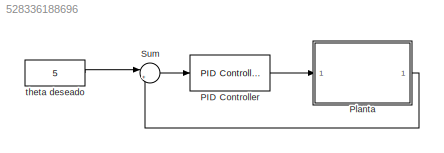
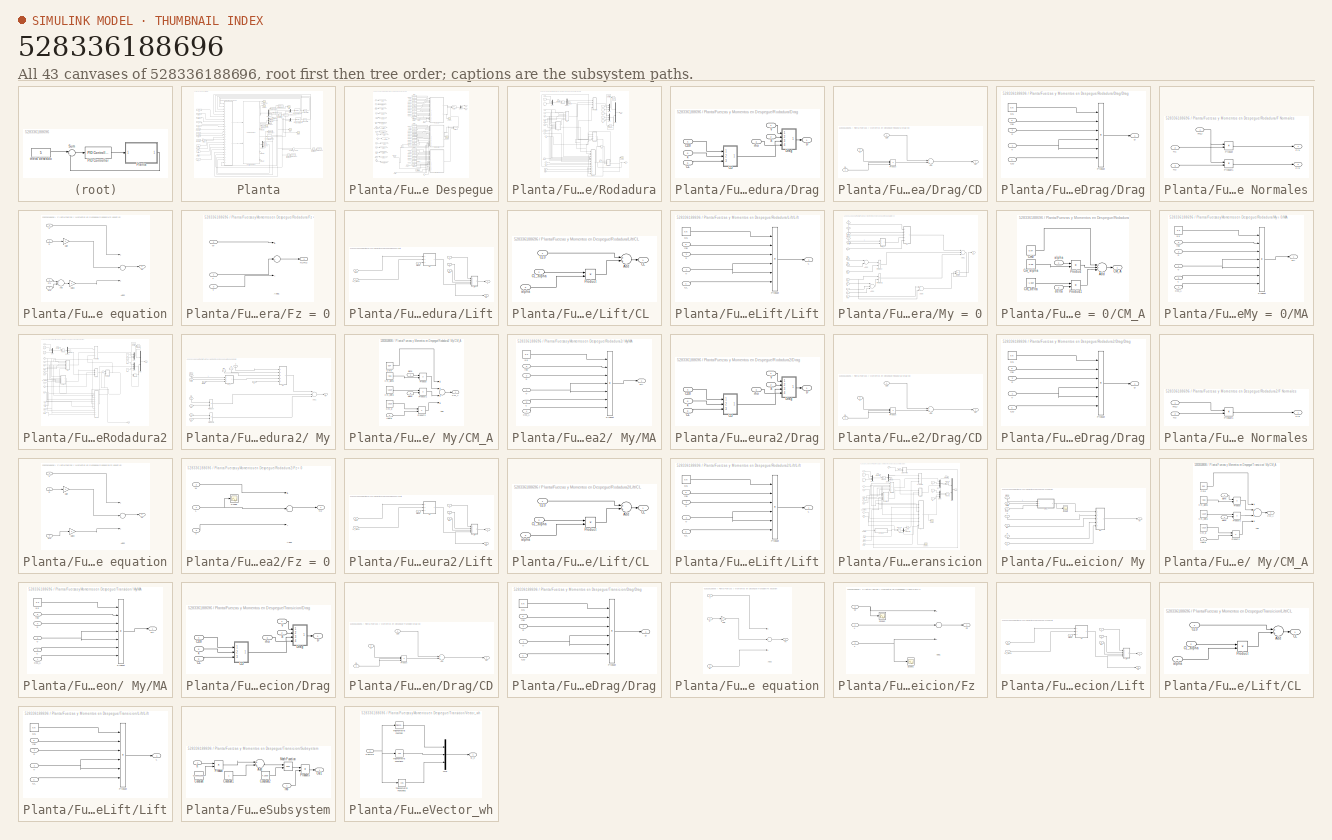
[diagram: thumbnail index - all 43 canvases of the model, root first then tree order]
MODEL slx_528336188696
KIND model
CONFIG AbsTol = auto
CONFIG FixedStep = 0.001
CONFIG MaxStep = auto
CONFIG MinStep = auto
CONFIG RelTol = 1e-3
CONFIG SampleTimeConstraint = Unconstrained
CONFIG Solver = ode45
CONFIG SolverMode = Auto
CONFIG SolverName = ode45
CONFIG StartTime = 0
CONFIG StopTime = 1000
BLOCK [Reference] PID Controller  REF=simulink/Continuous/PID Controller
  Ports = [1, 1]
  SourceBlock = simulink/Continuous/PID Controller
  SourceType = PID 1dof
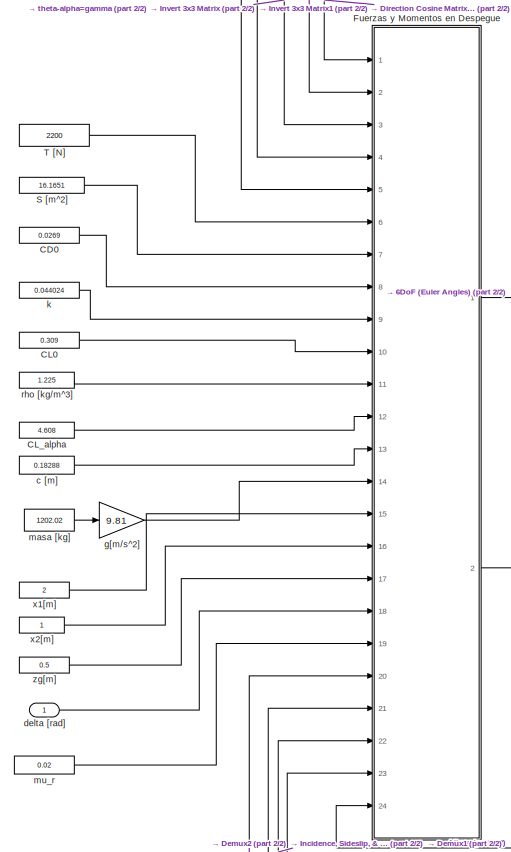
[diagram: Planta - part 1/2, left side, full height]
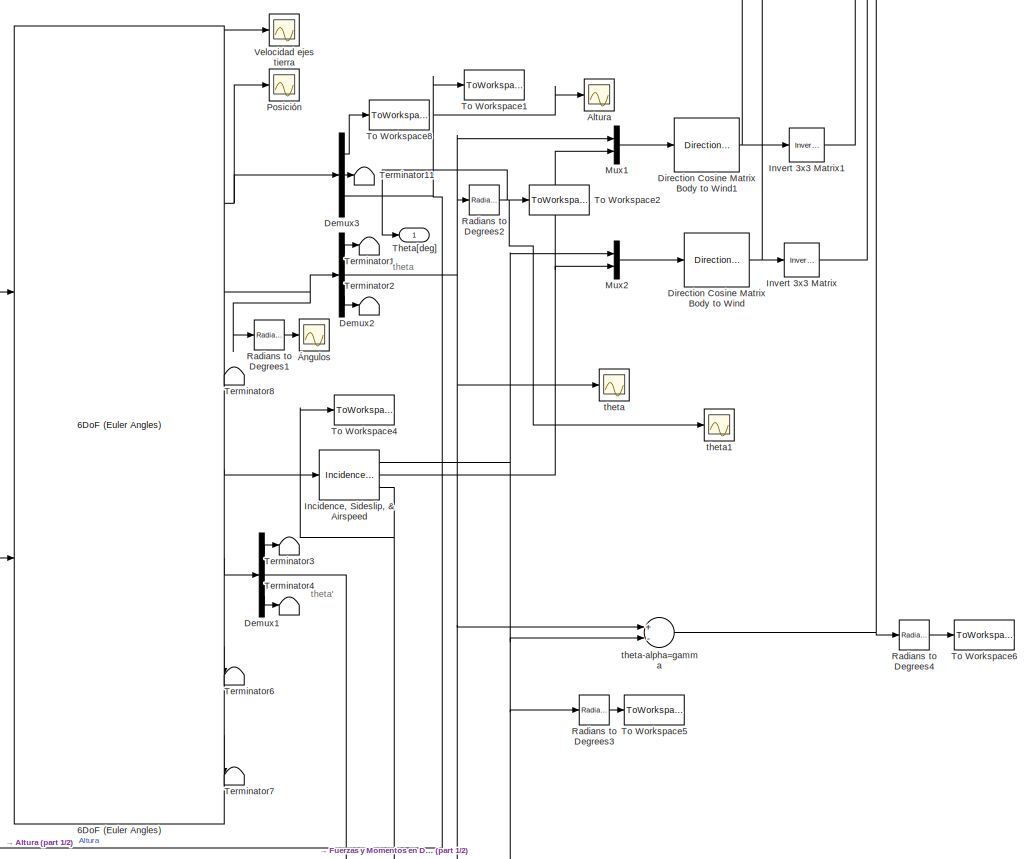
[diagram: Planta - part 2/2, right side, full height]
BLOCK [SubSystem] Planta
  Ports = [1, 1]
  RequestExecContextInheritance = off
  Variant = off
BLOCK [Reference] Planta/6DoF (Euler Angles)  REF=aerolibobsolete/6DoF (Euler Angles)
  Ports = [2, 8]
  SourceBlock = aerolibobsolete/6DoF (Euler Angles)
  SourceType = 6DoF EoM (Body Axis)
BLOCK [Scope] Planta/Altura
  Ports = [1]
  ScopeSpecificationString = C++SS(StrPVP('SaveName','ScopeData1'),StrPVP('LimitDataPoints','on'),StrPVP('DataFormat','Array'),StrPVP('Decimation','1'),StrPVP('BlockParamSampleInput','off'))
BLOCK [Constant] Planta/CD0
  Value = 0.0269
BLOCK [Constant] Planta/CL0
  Value = 0.309
BLOCK [Constant] Planta/CL_alpha 
  Value = 4.608
BLOCK [Demux] Planta/Demux1
  DisplayOption = bar
  Outputs = 3
  Ports = [1, 3]
BLOCK [Demux] Planta/Demux2
  DisplayOption = bar
  Outputs = 3
  Ports = [1, 3]
BLOCK [Demux] Planta/Demux3
  DisplayOption = bar
  Outputs = 3
  Ports = [1, 3]
BLOCK [Reference] Planta/Direction Cosine Matrix Body to Wind  REF=aerolibtransform2/Direction Cosine Matrix
Body to Wind
  Ports = [1, 1]
  SourceBlock = aerolibtransform2/Direction Cosine Matrix\nBody to Wind
  SourceType = DCM Body to Wind
BLOCK [Reference] Planta/Direction Cosine Matrix Body to Wind1  REF=aerolibtransform2/Direction Cosine Matrix
Body to Wind
  Ports = [1, 1]
  SourceBlock = aerolibtransform2/Direction Cosine Matrix\nBody to Wind
  SourceType = DCM Body to Wind
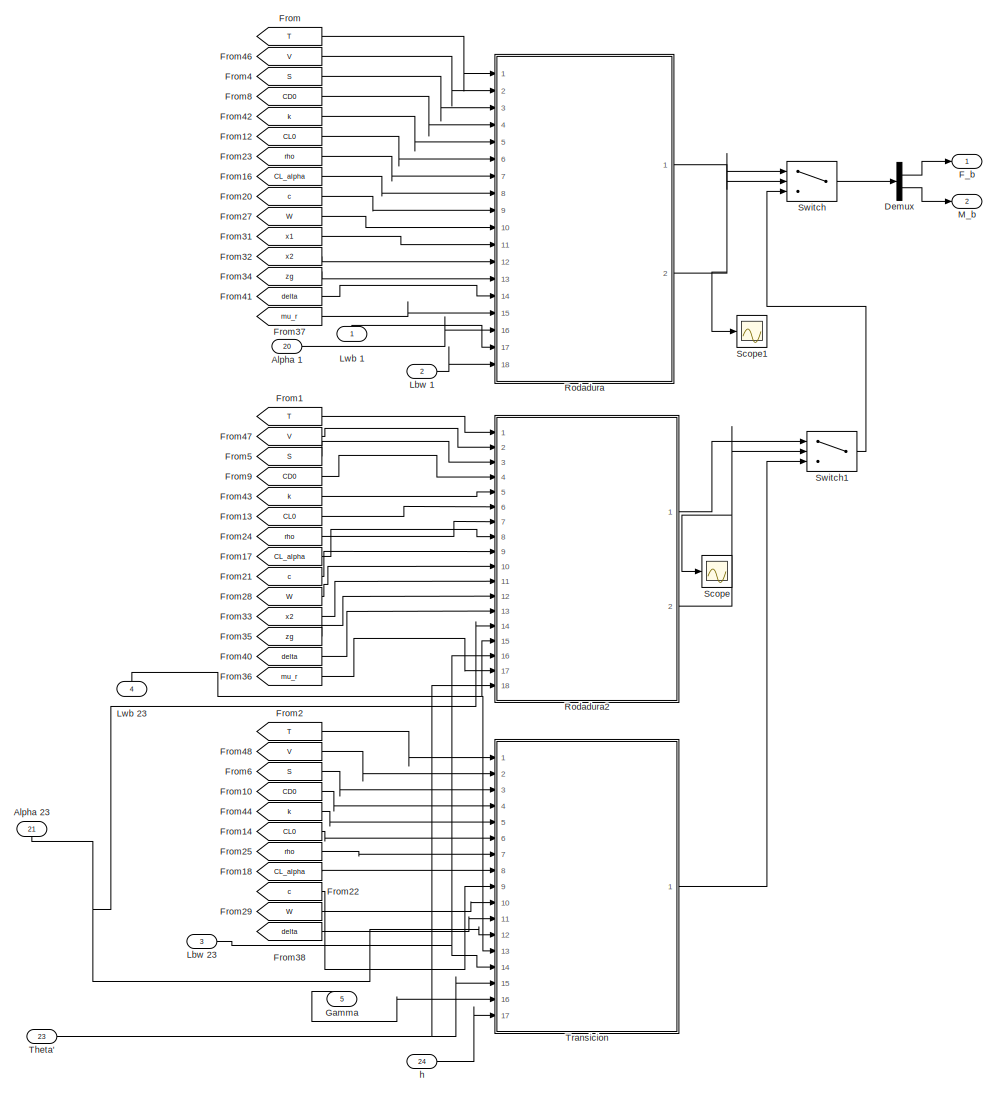
[diagram: Planta/Fuerzas y Momentos en Despegue - part 1/2, most of the canvas]
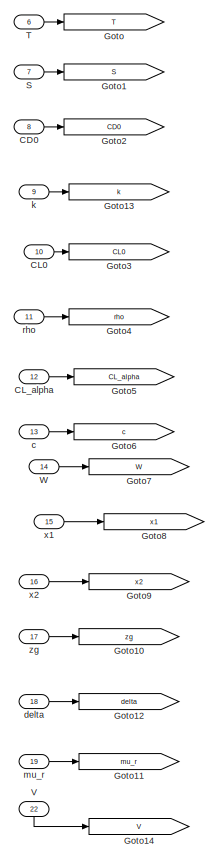
[diagram: Planta/Fuerzas y Momentos en Despegue - part 2/2, left side, full height]
BLOCK [SubSystem] Planta/Fuerzas y Momentos en Despegue
  Ports = [24, 2]
  RequestExecContextInheritance = off
  Variant = off
BLOCK [Inport] Planta/Fuerzas y Momentos en Despegue/Alpha 1
  IconDisplay = Port number
  Port = 20
BLOCK [Inport] Planta/Fuerzas y Momentos en Despegue/Alpha 23
  IconDisplay = Port number
  Port = 21
BLOCK [Inport] Planta/Fuerzas y Momentos en Despegue/CD0
  IconDisplay = Port number
  Port = 8
BLOCK [Inport] Planta/Fuerzas y Momentos en Despegue/CL0
  IconDisplay = Port number
  Port = 10
BLOCK [Inport] Planta/Fuerzas y Momentos en Despegue/CL_alpha
  IconDisplay = Port number
  Port = 12
BLOCK [Demux] Planta/Fuerzas y Momentos en Despegue/Demux
  DisplayOption = bar
  Outputs = 2
  Ports = [1, 2]
BLOCK [Outport] Planta/Fuerzas y Momentos en Despegue/F_b
  IconDisplay = Port number
BLOCK [From] Planta/Fuerzas y Momentos en Despegue/From
  GotoTag = T
BLOCK [From] Planta/Fuerzas y Momentos en Despegue/From1
  GotoTag = T
BLOCK [From] Planta/Fuerzas y Momentos en Despegue/From10
  GotoTag = CD0
BLOCK [From] Planta/Fuerzas y Momentos en Despegue/From12
  GotoTag = CL0
BLOCK [From] Planta/Fuerzas y Momentos en Despegue/From13
  GotoTag = CL0
BLOCK [From] Planta/Fuerzas y Momentos en Despegue/From14
  GotoTag = CL0
BLOCK [From] Planta/Fuerzas y Momentos en Despegue/From16
  GotoTag = CL_alpha
BLOCK [From] Planta/Fuerzas y Momentos en Despegue/From17
  GotoTag = CL_alpha
BLOCK [From] Planta/Fuerzas y Momentos en Despegue/From18
  GotoTag = CL_alpha
BLOCK [From] Planta/Fuerzas y Momentos en Despegue/From2
  GotoTag = T
BLOCK [From] Planta/Fuerzas y Momentos en Despegue/From20
  GotoTag = c
BLOCK [From] Planta/Fuerzas y Momentos en Despegue/From21
  GotoTag = c
BLOCK [From] Planta/Fuerzas y Momentos en Despegue/From22
  GotoTag = c
BLOCK [From] Planta/Fuerzas y Momentos en Despegue/From23
  GotoTag = rho
BLOCK [From] Planta/Fuerzas y Momentos en Despegue/From24
  GotoTag = rho
BLOCK [From] Planta/Fuerzas y Momentos en Despegue/From25
  GotoTag = rho
BLOCK [From] Planta/Fuerzas y Momentos en Despegue/From27
  GotoTag = W
BLOCK [From] Planta/Fuerzas y Momentos en Despegue/From28
  GotoTag = W
BLOCK [From] Planta/Fuerzas y Momentos en Despegue/From29
  GotoTag = W
BLOCK [From] Planta/Fuerzas y Momentos en Despegue/From31
  GotoTag = x1
BLOCK [From] Planta/Fuerzas y Momentos en Despegue/From32
  GotoTag = x2
BLOCK [From] Planta/Fuerzas y Momentos en Despegue/From33
  GotoTag = x2
BLOCK [From] Planta/Fuerzas y Momentos en Despegue/From34
  GotoTag = zg
BLOCK [From] Planta/Fuerzas y Momentos en Despegue/From35
  GotoTag = zg
BLOCK [From] Planta/Fuerzas y Momentos en Despegue/From36
  GotoTag = mu_r
BLOCK [From] Planta/Fuerzas y Momentos en Despegue/From37
  GotoTag = mu_r
BLOCK [From] Planta/Fuerzas y Momentos en Despegue/From38
  GotoTag = delta
BLOCK [From] Planta/Fuerzas y Momentos en Despegue/From4
  GotoTag = S
BLOCK [From] Planta/Fuerzas y Momentos en Despegue/From40
  GotoTag = delta
BLOCK [From] Planta/Fuerzas y Momentos en Despegue/From41
  GotoTag = delta
BLOCK [From] Planta/Fuerzas y Momentos en Despegue/From42
  GotoTag = k
BLOCK [From] Planta/Fuerzas y Momentos en Despegue/From43
  GotoTag = k
BLOCK [From] Planta/Fuerzas y Momentos en Despegue/From44
  GotoTag = k
BLOCK [From] Planta/Fuerzas y Momentos en Despegue/From46
  GotoTag = V
BLOCK [From] Planta/Fuerzas y Momentos en Despegue/From47
  GotoTag = V
BLOCK [From] Planta/Fuerzas y Momentos en Despegue/From48
  GotoTag = V
BLOCK [From] Planta/Fuerzas y Momentos en Despegue/From5
  GotoTag = S
BLOCK [From] Planta/Fuerzas y Momentos en Despegue/From6
  GotoTag = S
BLOCK [From] Planta/Fuerzas y Momentos en Despegue/From8
  GotoTag = CD0
BLOCK [From] Planta/Fuerzas y Momentos en Despegue/From9
  GotoTag = CD0
BLOCK [Inport] Planta/Fuerzas y Momentos en Despegue/Gamma
  IconDisplay = Port number
  Port = 5
BLOCK [Goto] Planta/Fuerzas y Momentos en Despegue/Goto
  GotoTag = T
BLOCK [Goto] Planta/Fuerzas y Momentos en Despegue/Goto1
  GotoTag = S
BLOCK [Goto] Planta/Fuerzas y Momentos en Despegue/Goto10
  GotoTag = zg
BLOCK [Goto] Planta/Fuerzas y Momentos en Despegue/Goto11
  GotoTag = mu_r
BLOCK [Goto] Planta/Fuerzas y Momentos en Despegue/Goto12
  GotoTag = delta
BLOCK [Goto] Planta/Fuerzas y Momentos en Despegue/Goto13
  GotoTag = k
BLOCK [Goto] Planta/Fuerzas y Momentos en Despegue/Goto14
  GotoTag = V
BLOCK [Goto] Planta/Fuerzas y Momentos en Despegue/Goto2
  GotoTag = CD0
BLOCK [Goto] Planta/Fuerzas y Momentos en Despegue/Goto3
  GotoTag = CL0
BLOCK [Goto] Planta/Fuerzas y Momentos en Despegue/Goto4
  GotoTag = rho
BLOCK [Goto] Planta/Fuerzas y Momentos en Despegue/Goto5
  GotoTag = CL_alpha
BLOCK [Goto] Planta/Fuerzas y Momentos en Despegue/Goto6
  GotoTag = c
BLOCK [Goto] Planta/Fuerzas y Momentos en Despegue/Goto7
  GotoTag = W
BLOCK [Goto] Planta/Fuerzas y Momentos en Despegue/Goto8
  GotoTag = x1
BLOCK [Goto] Planta/Fuerzas y Momentos en Despegue/Goto9
  GotoTag = x2
BLOCK [Inport] Planta/Fuerzas y Momentos en Despegue/Lbw 1
  IconDisplay = Port number
  Port = 2
BLOCK [Inport] Planta/Fuerzas y Momentos en Despegue/Lbw 23
  IconDisplay = Port number
  Port = 3
BLOCK [Inport] Planta/Fuerzas y Momentos en Despegue/Lwb 1
  IconDisplay = Port number
BLOCK [Inport] Planta/Fuerzas y Momentos en Despegue/Lwb 23
  IconDisplay = Port number
  Port = 4
BLOCK [Outport] Planta/Fuerzas y Momentos en Despegue/M_b
  IconDisplay = Port number
  Port = 2
BLOCK [SubSystem] Planta/Fuerzas y Momentos en Despegue/Rodadura
  Ports = [18, 2]
  RequestExecContextInheritance = off
  Variant = off
BLOCK [Inport] Planta/Fuerzas y Momentos en Despegue/Rodadura/CD0
  IconDisplay = Port number
  Port = 4
BLOCK [Inport] Planta/Fuerzas y Momentos en Despegue/Rodadura/CL0
  IconDisplay = Port number
  Port = 6
BLOCK [Inport] Planta/Fuerzas y Momentos en Despegue/Rodadura/CL_alpha
  IconDisplay = Port number
  Port = 8
BLOCK [Demux] Planta/Fuerzas y Momentos en Despegue/Rodadura/Demux1
  DisplayOption = bar
  Outputs = 3
  Ports = [1, 3]
BLOCK [SubSystem] Planta/Fuerzas y Momentos en Despegue/Rodadura/Drag
  Ports = [6, 1]
  RequestExecContextInheritance = off
  Variant = off
BLOCK [SubSystem] Planta/Fuerzas y Momentos en Despegue/Rodadura/Drag/CD
  Ports = [3, 1]
  RequestExecContextInheritance = off
  Variant = off
BLOCK [Sum] Planta/Fuerzas y Momentos en Despegue/Rodadura/Drag/CD/Add
  InputSameDT = off
  OutDataTypeStr = Inherit: Inherit via internal rule
  Ports = [2, 1]
  SaturateOnIntegerOverflow = off
BLOCK [Outport] Planta/Fuerzas y Momentos en Despegue/Rodadura/Drag/CD/CD
  IconDisplay = Port number
BLOCK [Inport] Planta/Fuerzas y Momentos en Despegue/Rodadura/Drag/CD/CD0
  IconDisplay = Port number
BLOCK [Inport] Planta/Fuerzas y Momentos en Despegue/Rodadura/Drag/CD/CL
  IconDisplay = Port number
  Port = 3
BLOCK [Product] Planta/Fuerzas y Momentos en Despegue/Rodadura/Drag/CD/Product
  InputSameDT = off
  Inputs = 3
  OutDataTypeStr = Inherit: Inherit via internal rule
  Ports = [3, 1]
  RndMeth = Floor
  SaturateOnIntegerOverflow = off
BLOCK [Inport] Planta/Fuerzas y Momentos en Despegue/Rodadura/Drag/CD/k
  IconDisplay = Port number
  Port = 2
BLOCK [Inport] Planta/Fuerzas y Momentos en Despegue/Rodadura/Drag/CD0
  IconDisplay = Port number
  Port = 4
BLOCK [Inport] Planta/Fuerzas y Momentos en Despegue/Rodadura/Drag/CL
  IconDisplay = Port number
  Port = 6
BLOCK [Outport] Planta/Fuerzas y Momentos en Despegue/Rodadura/Drag/D
  IconDisplay = Port number
BLOCK [SubSystem] Planta/Fuerzas y Momentos en Despegue/Rodadura/Drag/Drag
  Ports = [4, 1]
  RequestExecContextInheritance = off
  Variant = off
BLOCK [Constant] Planta/Fuerzas y Momentos en Despegue/Rodadura/Drag/Drag/0.5 
  Value = 0.5
BLOCK [Inport] Planta/Fuerzas y Momentos en Despegue/Rodadura/Drag/Drag/CD
  IconDisplay = Port number
  Port = 4
BLOCK [Outport] Planta/Fuerzas y Momentos en Despegue/Rodadura/Drag/Drag/D
  IconDisplay = Port number
BLOCK [Product] Planta/Fuerzas y Momentos en Despegue/Rodadura/Drag/Drag/Product
  InputSameDT = off
  Inputs = 6
  OutDataTypeStr = Inherit: Inherit via internal rule
  Ports = [6, 1]
  RndMeth = Floor
  SaturateOnIntegerOverflow = off
BLOCK [Inport] Planta/Fuerzas y Momentos en Despegue/Rodadura/Drag/Drag/S
  IconDisplay = Port number
  Port = 2
BLOCK [Inport] Planta/Fuerzas y Momentos en Despegue/Rodadura/Drag/Drag/V
  IconDisplay = Port number
BLOCK [Inport] Planta/Fuerzas y Momentos en Despegue/Rodadura/Drag/Drag/rho
  IconDisplay = Port number
  Port = 3
BLOCK [Inport] Planta/Fuerzas y Momentos en Despegue/Rodadura/Drag/S
  IconDisplay = Port number
  Port = 2
BLOCK [Inport] Planta/Fuerzas y Momentos en Despegue/Rodadura/Drag/V
  IconDisplay = Port number
BLOCK [Inport] Planta/Fuerzas y Momentos en Despegue/Rodadura/Drag/k
  IconDisplay = Port number
  Port = 5
BLOCK [Inport] Planta/Fuerzas y Momentos en Despegue/Rodadura/Drag/rho
  IconDisplay = Port number
  Port = 3
BLOCK [SubSystem] Planta/Fuerzas y Momentos en Despegue/Rodadura/F Normales
  Ports = [3, 2]
  RequestExecContextInheritance = off
  Variant = off
BLOCK [Outport] Planta/Fuerzas y Momentos en Despegue/Rodadura/F Normales/Fr1 
  IconDisplay = Port number
BLOCK [Outport] Planta/Fuerzas y Momentos en Despegue/Rodadura/F Normales/Fr2
  IconDisplay = Port number
  Port = 2
BLOCK [Inport] Planta/Fuerzas y Momentos en Despegue/Rodadura/F Normales/N1
  IconDisplay = Port number
  Port = 2
BLOCK [Inport] Planta/Fuerzas y Momentos en Despegue/Rodadura/F Normales/N2
  IconDisplay = Port number
  Port = 3
BLOCK [Product] Planta/Fuerzas y Momentos en Despegue/Rodadura/F Normales/Product
  InputSameDT = off
  OutDataTypeStr = Inherit: Inherit via internal rule
  Ports = [2, 1]
  RndMeth = Floor
  SaturateOnIntegerOverflow = off
BLOCK [Product] Planta/Fuerzas y Momentos en Despegue/Rodadura/F Normales/Product1
  InputSameDT = off
  OutDataTypeStr = Inherit: Inherit via internal rule
  Ports = [2, 1]
  RndMeth = Floor
  SaturateOnIntegerOverflow = off
BLOCK [Inport] Planta/Fuerzas y Momentos en Despegue/Rodadura/F Normales/mu_r
  IconDisplay = Port number
BLOCK [Outport] Planta/Fuerzas y Momentos en Despegue/Rodadura/F&M
  IconDisplay = Port number
BLOCK [SubSystem] Planta/Fuerzas y Momentos en Despegue/Rodadura/Fx equation
  Ports = [4, 1]
  RequestExecContextInheritance = off
  Variant = off
BLOCK [Sum] Planta/Fuerzas y Momentos en Despegue/Rodadura/Fx equation/Add
  InputSameDT = off
  OutDataTypeStr = Inherit: Inherit via internal rule
  Ports = [2, 1]
  SaturateOnIntegerOverflow = off
BLOCK [Sum] Planta/Fuerzas y Momentos en Despegue/Rodadura/Fx equation/Add2
  InputSameDT = off
  Inputs = +++
  OutDataTypeStr = Inherit: Inherit via internal rule
  Ports = [3, 1]
  SaturateOnIntegerOverflow = off
BLOCK [Inport] Planta/Fuerzas y Momentos en Despegue/Rodadura/Fx equation/D
  IconDisplay = Port number
  Port = 2
BLOCK [Inport] Planta/Fuerzas y Momentos en Despegue/Rodadura/Fx equation/Fr1
  IconDisplay = Port number
  Port = 3
BLOCK [Inport] Planta/Fuerzas y Momentos en Despegue/Rodadura/Fx equation/Fr2
  IconDisplay = Port number
  Port = 4
BLOCK [Outport] Planta/Fuerzas y Momentos en Despegue/Rodadura/Fx equation/Fx
  IconDisplay = Port number
BLOCK [Gain] Planta/Fuerzas y Momentos en Despegue/Rodadura/Fx equation/Gain
  Gain = -1
  OutDataTypeStr = Inherit: Inherit via internal rule
  ParamDataTypeStr = Inherit: Inherit via internal rule
  SaturateOnIntegerOverflow = off
BLOCK [Gain] Planta/Fuerzas y Momentos en Despegue/Rodadura/Fx equation/Gain2
  Gain = -1
  OutDataTypeStr = Inherit: Inherit via internal rule
  ParamDataTypeStr = Inherit: Inherit via internal rule
  SaturateOnIntegerOverflow = off
BLOCK [Inport] Planta/Fuerzas y Momentos en Despegue/Rodadura/Fx equation/T
  IconDisplay = Port number
BLOCK [Constant] Planta/Fuerzas y Momentos en Despegue/Rodadura/Fy
  Value = 0
BLOCK [Constant] Planta/Fuerzas y Momentos en Despegue/Rodadura/Fz
  Value = 0
BLOCK [SubSystem] Planta/Fuerzas y Momentos en Despegue/Rodadura/Fz = 0
  Ports = [3, 1]
  RequestExecContextInheritance = off
  Variant = off
BLOCK [Sum] Planta/Fuerzas y Momentos en Despegue/Rodadura/Fz = 0/Add1
  InputSameDT = off
  Inputs = +--
  OutDataTypeStr = Inherit: Inherit via internal rule
  Ports = [3, 1]
  SaturateOnIntegerOverflow = off
BLOCK [Inport] Planta/Fuerzas y Momentos en Despegue/Rodadura/Fz = 0/L
  IconDisplay = Port number
BLOCK [Outport] Planta/Fuerzas y Momentos en Despegue/Rodadura/Fz = 0/N1+N2
  IconDisplay = Port number
BLOCK [Inport] Planta/Fuerzas y Momentos en Despegue/Rodadura/Fz = 0/T
  IconDisplay = Port number
  Port = 3
BLOCK [Inport] Planta/Fuerzas y Momentos en Despegue/Rodadura/Fz = 0/W
  IconDisplay = Port number
  Port = 2
BLOCK [SubSystem] Planta/Fuerzas y Momentos en Despegue/Rodadura/Lift
  Ports = [6, 2]
  RequestExecContextInheritance = off
  Variant = off
BLOCK [Outport] Planta/Fuerzas y Momentos en Despegue/Rodadura/Lift/CL
  IconDisplay = Port number
BLOCK [SubSystem] Planta/Fuerzas y Momentos en Despegue/Rodadura/Lift/CL 
  Ports = [3, 1]
  RequestExecContextInheritance = off
  Variant = off
BLOCK [Sum] Planta/Fuerzas y Momentos en Despegue/Rodadura/Lift/CL /Add
  InputSameDT = off
  OutDataTypeStr = Inherit: Inherit via internal rule
  Ports = [2, 1]
  SaturateOnIntegerOverflow = off
BLOCK [Outport] Planta/Fuerzas y Momentos en Despegue/Rodadura/Lift/CL /CL 
  IconDisplay = Port number
BLOCK [Inport] Planta/Fuerzas y Momentos en Despegue/Rodadura/Lift/CL /CL0
  IconDisplay = Port number
BLOCK [Inport] Planta/Fuerzas y Momentos en Despegue/Rodadura/Lift/CL /CL_alpha
  IconDisplay = Port number
  Port = 2
BLOCK [Product] Planta/Fuerzas y Momentos en Despegue/Rodadura/Lift/CL /Product
  InputSameDT = off
  OutDataTypeStr = Inherit: Inherit via internal rule
  Ports = [2, 1]
  RndMeth = Floor
  SaturateOnIntegerOverflow = off
BLOCK [Inport] Planta/Fuerzas y Momentos en Despegue/Rodadura/Lift/CL /alpha
  IconDisplay = Port number
  Port = 3
BLOCK [Inport] Planta/Fuerzas y Momentos en Despegue/Rodadura/Lift/CL0
  IconDisplay = Port number
  Port = 5
BLOCK [Inport] Planta/Fuerzas y Momentos en Despegue/Rodadura/Lift/CL_alpha
  IconDisplay = Port number
  Port = 6
BLOCK [Outport] Planta/Fuerzas y Momentos en Despegue/Rodadura/Lift/L
  IconDisplay = Port number
  Port = 2
BLOCK [SubSystem] Planta/Fuerzas y Momentos en Despegue/Rodadura/Lift/Lift
  Ports = [4, 1]
  RequestExecContextInheritance = off
  Variant = off
BLOCK [Constant] Planta/Fuerzas y Momentos en Despegue/Rodadura/Lift/Lift/0.5 
  Value = 0.5
BLOCK [Inport] Planta/Fuerzas y Momentos en Despegue/Rodadura/Lift/Lift/CL
  IconDisplay = Port number
  Port = 4
BLOCK [Outport] Planta/Fuerzas y Momentos en Despegue/Rodadura/Lift/Lift/L
  IconDisplay = Port number
BLOCK [Product] Planta/Fuerzas y Momentos en Despegue/Rodadura/Lift/Lift/Product
  InputSameDT = off
  Inputs = 6
  OutDataTypeStr = Inherit: Inherit via internal rule
  Ports = [6, 1]
  RndMeth = Floor
  SaturateOnIntegerOverflow = off
BLOCK [Inport] Planta/Fuerzas y Momentos en Despegue/Rodadura/Lift/Lift/S
  IconDisplay = Port number
  Port = 2
BLOCK [Inport] Planta/Fuerzas y Momentos en Despegue/Rodadura/Lift/Lift/V
  IconDisplay = Port number
BLOCK [Inport] Planta/Fuerzas y Momentos en Despegue/Rodadura/Lift/Lift/rho
  IconDisplay = Port number
  Port = 3
BLOCK [Inport] Planta/Fuerzas y Momentos en Despegue/Rodadura/Lift/S
  IconDisplay = Port number
  Port = 2
BLOCK [Inport] Planta/Fuerzas y Momentos en Despegue/Rodadura/Lift/V
  IconDisplay = Port number
BLOCK [Inport] Planta/Fuerzas y Momentos en Despegue/Rodadura/Lift/alpha
  IconDisplay = Port number
  Port = 4
BLOCK [Inport] Planta/Fuerzas y Momentos en Despegue/Rodadura/Lift/rho
  IconDisplay = Port number
  Port = 3
BLOCK [Mux] Planta/Fuerzas y Momentos en Despegue/Rodadura/Mux
  DisplayOption = bar
  Inputs = 2
  Ports = [2, 1]
BLOCK [Mux] Planta/Fuerzas y Momentos en Despegue/Rodadura/Mux1
  DisplayOption = bar
  Inputs = 3
  Ports = [3, 1]
BLOCK [Mux] Planta/Fuerzas y Momentos en Despegue/Rodadura/Mux2
  DisplayOption = bar
  Inputs = 3
  Ports = [3, 1]
BLOCK [Mux] Planta/Fuerzas y Momentos en Despegue/Rodadura/Mux4
  DisplayOption = bar
  Inputs = 3
  Ports = [3, 1]
BLOCK [Constant] Planta/Fuerzas y Momentos en Despegue/Rodadura/Mx
  Value = 0
BLOCK [Constant] Planta/Fuerzas y Momentos en Despegue/Rodadura/My
  Value = 0
BLOCK [SubSystem] Planta/Fuerzas y Momentos en Despegue/Rodadura/My = 0
  Ports = [14, 1]
  RequestExecContextInheritance = off
  Variant = off
BLOCK [Sum] Planta/Fuerzas y Momentos en Despegue/Rodadura/My = 0/Add1
  InputSameDT = off
  Inputs = -++
  OutDataTypeStr = Inherit: Inherit via internal rule
  Ports = [3, 1]
  SaturateOnIntegerOverflow = off
BLOCK [Sum] Planta/Fuerzas y Momentos en Despegue/Rodadura/My = 0/Add2
  InputSameDT = off
  OutDataTypeStr = Inherit: Inherit via internal rule
  Ports = [2, 1]
  SaturateOnIntegerOverflow = off
BLOCK [Sum] Planta/Fuerzas y Momentos en Despegue/Rodadura/My = 0/Add4
  InputSameDT = off
  Inputs = +--
  OutDataTypeStr = Inherit: Inherit via internal rule
  Ports = [3, 1]
  SaturateOnIntegerOverflow = off
BLOCK [Sum] Planta/Fuerzas y Momentos en Despegue/Rodadura/My = 0/Add5
  InputSameDT = off
  OutDataTypeStr = Inherit: Inherit via internal rule
  Ports = [2, 1]
  SaturateOnIntegerOverflow = off
BLOCK [SubSystem] Planta/Fuerzas y Momentos en Despegue/Rodadura/My = 0/CM_A
  Ports = [2, 1]
  RequestExecContextInheritance = off
  Variant = off
BLOCK [Sum] Planta/Fuerzas y Momentos en Despegue/Rodadura/My = 0/CM_A/Add
  InputSameDT = off
  Inputs = +++
  OutDataTypeStr = Inherit: Inherit via internal rule
  Ports = [3, 1]
  SaturateOnIntegerOverflow = off
BLOCK [Outport] Planta/Fuerzas y Momentos en Despegue/Rodadura/My = 0/CM_A/CM_A
  IconDisplay = Port number
BLOCK [Constant] Planta/Fuerzas y Momentos en Despegue/Rodadura/My = 0/CM_A/Cm0
  Value = 0.04
BLOCK [Constant] Planta/Fuerzas y Momentos en Despegue/Rodadura/My = 0/CM_A/Cm_alpha
  Value = -0.65
BLOCK [Constant] Planta/Fuerzas y Momentos en Despegue/Rodadura/My = 0/CM_A/Cm_delta
  Value = -1.369
BLOCK [Product] Planta/Fuerzas y Momentos en Despegue/Rodadura/My = 0/CM_A/Product
  InputSameDT = off
  OutDataTypeStr = Inherit: Inherit via internal rule
  Ports = [2, 1]
  RndMeth = Floor
  SaturateOnIntegerOverflow = off
BLOCK [Product] Planta/Fuerzas y Momentos en Despegue/Rodadura/My = 0/CM_A/Product1
  InputSameDT = off
  OutDataTypeStr = Inherit: Inherit via internal rule
  Ports = [2, 1]
  RndMeth = Floor
  SaturateOnIntegerOverflow = off
BLOCK [Inport] Planta/Fuerzas y Momentos en Despegue/Rodadura/My = 0/CM_A/alpha
  IconDisplay = Port number
BLOCK [Inport] Planta/Fuerzas y Momentos en Despegue/Rodadura/My = 0/CM_A/delta
  IconDisplay = Port number
  Port = 2
BLOCK [Product] Planta/Fuerzas y Momentos en Despegue/Rodadura/My = 0/Divide
  InputSameDT = off
  Inputs = */
  OutDataTypeStr = Inherit: Inherit via internal rule
  Ports = [2, 1]
  RndMeth = Floor
  SaturateOnIntegerOverflow = off
BLOCK [Inport] Planta/Fuerzas y Momentos en Despegue/Rodadura/My = 0/Fr1
  IconDisplay = Port number
  Port = 10
BLOCK [Inport] Planta/Fuerzas y Momentos en Despegue/Rodadura/My = 0/Fr2
  IconDisplay = Port number
  Port = 11
BLOCK [Inport] Planta/Fuerzas y Momentos en Despegue/Rodadura/My = 0/L
  IconDisplay = Port number
BLOCK [SubSystem] Planta/Fuerzas y Momentos en Despegue/Rodadura/My = 0/MA
  Ports = [5, 1]
  RequestExecContextInheritance = off
  Variant = off
BLOCK [Constant] Planta/Fuerzas y Momentos en Despegue/Rodadura/My = 0/MA/0.5 
  Value = 0.5
BLOCK [Inport] Planta/Fuerzas y Momentos en Despegue/Rodadura/My = 0/MA/CM_A
  IconDisplay = Port number
  Port = 4
BLOCK [Outport] Planta/Fuerzas y Momentos en Despegue/Rodadura/My = 0/MA/MA
  IconDisplay = Port number
BLOCK [Product] Planta/Fuerzas y Momentos en Despegue/Rodadura/My = 0/MA/Product
  InputSameDT = off
  Inputs = 7
  OutDataTypeStr = Inherit: Inherit via internal rule
  Ports = [7, 1]
  RndMeth = Floor
  SaturateOnIntegerOverflow = off
BLOCK [Inport] Planta/Fuerzas y Momentos en Despegue/Rodadura/My = 0/MA/S
  IconDisplay = Port number
  Port = 2
BLOCK [Inport] Planta/Fuerzas y Momentos en Despegue/Rodadura/My = 0/MA/V
  IconDisplay = Port number
BLOCK [Inport] Planta/Fuerzas y Momentos en Despegue/Rodadura/My = 0/MA/c
  IconDisplay = Port number
  Port = 5
BLOCK [Inport] Planta/Fuerzas y Momentos en Despegue/Rodadura/My = 0/MA/rho
  IconDisplay = Port number
  Port = 3
BLOCK [Outport] Planta/Fuerzas y Momentos en Despegue/Rodadura/My = 0/N1
  IconDisplay = Port number
BLOCK [Product] Planta/Fuerzas y Momentos en Despegue/Rodadura/My = 0/Product
  InputSameDT = off
  OutDataTypeStr = Inherit: Inherit via internal rule
  Ports = [2, 1]
  RndMeth = Floor
  SaturateOnIntegerOverflow = off
BLOCK [Product] Planta/Fuerzas y Momentos en Despegue/Rodadura/My = 0/Product1
  InputSameDT = off
  OutDataTypeStr = Inherit: Inherit via internal rule
  Ports = [2, 1]
  RndMeth = Floor
  SaturateOnIntegerOverflow = off
BLOCK [Inport] Planta/Fuerzas y Momentos en Despegue/Rodadura/My = 0/S
  IconDisplay = Port number
  Port = 6
BLOCK [Inport] Planta/Fuerzas y Momentos en Despegue/Rodadura/My = 0/T
  IconDisplay = Port number
  Port = 2
BLOCK [Inport] Planta/Fuerzas y Momentos en Despegue/Rodadura/My = 0/V
  IconDisplay = Port number
  Port = 4
BLOCK [Inport] Planta/Fuerzas y Momentos en Despegue/Rodadura/My = 0/W
  IconDisplay = Port number
  Port = 3
BLOCK [Inport] Planta/Fuerzas y Momentos en Despegue/Rodadura/My = 0/alpha
  IconDisplay = Port number
  Port = 14
BLOCK [Inport] Planta/Fuerzas y Momentos en Despegue/Rodadura/My = 0/c
  IconDisplay = Port number
  Port = 7
BLOCK [Inport] Planta/Fuerzas y Momentos en Despegue/Rodadura/My = 0/delta
  IconDisplay = Port number
  Port = 13
BLOCK [Inport] Planta/Fuerzas y Momentos en Despegue/Rodadura/My = 0/rho
  IconDisplay = Port number
  Port = 5
BLOCK [Inport] Planta/Fuerzas y Momentos en Despegue/Rodadura/My = 0/x1
  IconDisplay = Port number
  Port = 8
BLOCK [Inport] Planta/Fuerzas y Momentos en Despegue/Rodadura/My = 0/x2
  IconDisplay = Port number
  Port = 9
BLOCK [Inport] Planta/Fuerzas y Momentos en Despegue/Rodadura/My = 0/zg
  IconDisplay = Port number
  Port = 12
BLOCK [Constant] Planta/Fuerzas y Momentos en Despegue/Rodadura/Mz
  Value = 0
BLOCK [Outport] Planta/Fuerzas y Momentos en Despegue/Rodadura/N1 
  IconDisplay = Port number
  Port = 2
BLOCK [Sum] Planta/Fuerzas y Momentos en Despegue/Rodadura/N2
  InputSameDT = off
  Inputs = +-
  OutDataTypeStr = Inherit: Inherit via internal rule
  Ports = [2, 1]
  SaturateOnIntegerOverflow = off
BLOCK [Product] Planta/Fuerzas y Momentos en Despegue/Rodadura/Product1
  InputSameDT = off
  Multiplication = Matrix(*)
  OutDataTypeStr = Inherit: Inherit via internal rule
  Ports = [2, 1]
  RndMeth = Floor
  SaturateOnIntegerOverflow = off
BLOCK [Product] Planta/Fuerzas y Momentos en Despegue/Rodadura/Product2
  InputSameDT = off
  Multiplication = Matrix(*)
  OutDataTypeStr = Inherit: Inherit via internal rule
  Ports = [2, 1]
  RndMeth = Floor
  SaturateOnIntegerOverflow = off
BLOCK [Product] Planta/Fuerzas y Momentos en Despegue/Rodadura/Product3
  InputSameDT = off
  Multiplication = Matrix(*)
  OutDataTypeStr = Inherit: Inherit via internal rule
  Ports = [2, 1]
  RndMeth = Floor
  SaturateOnIntegerOverflow = off
BLOCK [Inport] Planta/Fuerzas y Momentos en Despegue/Rodadura/S
  IconDisplay = Port number
  Port = 3
BLOCK [Scope] Planta/Fuerzas y Momentos en Despegue/Rodadura/Scope
  Ports = [1]
  ScopeSpecificationString = C++SS(StrPVP('Location','[1, 49, 1367, 727]'),StrPVP('Open','off'),MxPVP('AxesTitles',24,'struct(''axes1'',''%<SignalLabel>'')'),MxPVP('ScopeGraphics',28,'struct(''FigureColor'',''[0.5 0.5 0.5]'',''AxesColor'',''[0 0 0]'',''AxesTickColor'',''[1 1 1]'',''LineColors'',''[1 1 0;1 0 1;0 1 1;1 0 0;0 1 0;0 0 1]'',''LineStyles'',''-|-|-|-|-|-'',''LineWidths'',''[0.5 0.5 0.5 0.5 0.5 0.5]'',''MarkerStyles'...<+269ch>  <repeated x3 — deduplicated; at blocks: Scope, Scope1>
BLOCK [Inport] Planta/Fuerzas y Momentos en Despegue/Rodadura/T
  IconDisplay = Port number
BLOCK [Terminator] Planta/Fuerzas y Momentos en Despegue/Rodadura/Terminator
BLOCK [Constant] Planta/Fuerzas y Momentos en Despegue/Rodadura/Ty
  Value = 0
BLOCK [Constant] Planta/Fuerzas y Momentos en Despegue/Rodadura/Tz
  Value = 0
BLOCK [Inport] Planta/Fuerzas y Momentos en Despegue/Rodadura/V
  IconDisplay = Port number
  Port = 2
BLOCK [Inport] Planta/Fuerzas y Momentos en Despegue/Rodadura/W
  IconDisplay = Port number
  Port = 10
BLOCK [Inport] Planta/Fuerzas y Momentos en Despegue/Rodadura/alpha
  IconDisplay = Port number
  Port = 16
BLOCK [Inport] Planta/Fuerzas y Momentos en Despegue/Rodadura/bw matrix
  IconDisplay = Port number
  Port = 18
BLOCK [Inport] Planta/Fuerzas y Momentos en Despegue/Rodadura/c
  IconDisplay = Port number
  Port = 9
BLOCK [Inport] Planta/Fuerzas y Momentos en Despegue/Rodadura/delta
  IconDisplay = Port number
  Port = 14
BLOCK [Inport] Planta/Fuerzas y Momentos en Despegue/Rodadura/k
  IconDisplay = Port number
  Port = 5
BLOCK [Inport] Planta/Fuerzas y Momentos en Despegue/Rodadura/mu_r
  IconDisplay = Port number
  Port = 15
BLOCK [Inport] Planta/Fuerzas y Momentos en Despegue/Rodadura/rho
  IconDisplay = Port number
  Port = 7
BLOCK [Inport] Planta/Fuerzas y Momentos en Despegue/Rodadura/wb matrix
  IconDisplay = Port number
  Port = 17
BLOCK [Inport] Planta/Fuerzas y Momentos en Despegue/Rodadura/x1
  IconDisplay = Port number
  Port = 11
BLOCK [Inport] Planta/Fuerzas y Momentos en Despegue/Rodadura/x2
  IconDisplay = Port number
  Port = 12
BLOCK [Inport] Planta/Fuerzas y Momentos en Despegue/Rodadura/zg
  IconDisplay = Port number
  Port = 13
BLOCK [SubSystem] Planta/Fuerzas y Momentos en Despegue/Rodadura2
  Ports = [18, 2]
  RequestExecContextInheritance = off
  Variant = off
BLOCK [SubSystem] Planta/Fuerzas y Momentos en Despegue/Rodadura2/ My
  Ports = [11, 1]
  RequestExecContextInheritance = off
  Variant = off
BLOCK [Sum] Planta/Fuerzas y Momentos en Despegue/Rodadura2/ My/Add1
  InputSameDT = off
  Inputs = +--
  OutDataTypeStr = Inherit: Inherit via internal rule
  Ports = [3, 1]
  SaturateOnIntegerOverflow = off
BLOCK [SubSystem] Planta/Fuerzas y Momentos en Despegue/Rodadura2/ My/CM_A
  Ports = [3, 1]
  RequestExecContextInheritance = off
  Variant = off
BLOCK [Sum] Planta/Fuerzas y Momentos en Despegue/Rodadura2/ My/CM_A/Add
  InputSameDT = off
  Inputs = ++++
  OutDataTypeStr = Inherit: Inherit via internal rule
  Ports = [4, 1]
  SaturateOnIntegerOverflow = off
BLOCK [Outport] Planta/Fuerzas y Momentos en Despegue/Rodadura2/ My/CM_A/CM_A
  IconDisplay = Port number
BLOCK [Constant] Planta/Fuerzas y Momentos en Despegue/Rodadura2/ My/CM_A/Cm0
  Value = 0.04
BLOCK [Constant] Planta/Fuerzas y Momentos en Despegue/Rodadura2/ My/CM_A/Cm_alpha
  Value = -0.65
BLOCK [Constant] Planta/Fuerzas y Momentos en Despegue/Rodadura2/ My/CM_A/Cm_delta
  Value = -1.369
BLOCK [Constant] Planta/Fuerzas y Momentos en Despegue/Rodadura2/ My/CM_A/Cm_q
  Value = -15.20
BLOCK [Product] Planta/Fuerzas y Momentos en Despegue/Rodadura2/ My/CM_A/Product
  InputSameDT = off
  OutDataTypeStr = Inherit: Inherit via internal rule
  Ports = [2, 1]
  RndMeth = Floor
  SaturateOnIntegerOverflow = off
BLOCK [Product] Planta/Fuerzas y Momentos en Despegue/Rodadura2/ My/CM_A/Product1
  InputSameDT = off
  OutDataTypeStr = Inherit: Inherit via internal rule
  Ports = [2, 1]
  RndMeth = Floor
  SaturateOnIntegerOverflow = off
BLOCK [Product] Planta/Fuerzas y Momentos en Despegue/Rodadura2/ My/CM_A/Product2
  InputSameDT = off
  OutDataTypeStr = Inherit: Inherit via internal rule
  Ports = [2, 1]
  RndMeth = Floor
  SaturateOnIntegerOverflow = off
BLOCK [Inport] Planta/Fuerzas y Momentos en Despegue/Rodadura2/ My/CM_A/alpha
  IconDisplay = Port number
BLOCK [Inport] Planta/Fuerzas y Momentos en Despegue/Rodadura2/ My/CM_A/delta
  IconDisplay = Port number
  Port = 2
BLOCK [Inport] Planta/Fuerzas y Momentos en Despegue/Rodadura2/ My/CM_A/theta'
  IconDisplay = Port number
  Port = 3
BLOCK [Inport] Planta/Fuerzas y Momentos en Despegue/Rodadura2/ My/Fr2
  IconDisplay = Port number
  Port = 6
BLOCK [SubSystem] Planta/Fuerzas y Momentos en Despegue/Rodadura2/ My/MA
  Ports = [5, 1]
  RequestExecContextInheritance = off
  Variant = off
BLOCK [Constant] Planta/Fuerzas y Momentos en Despegue/Rodadura2/ My/MA/0.5 
  Value = 0.5
BLOCK [Inport] Planta/Fuerzas y Momentos en Despegue/Rodadura2/ My/MA/CM_A
  IconDisplay = Port number
  Port = 4
BLOCK [Outport] Planta/Fuerzas y Momentos en Despegue/Rodadura2/ My/MA/MA
  IconDisplay = Port number
BLOCK [Product] Planta/Fuerzas y Momentos en Despegue/Rodadura2/ My/MA/Product
  InputSameDT = off
  Inputs = 7
  OutDataTypeStr = Inherit: Inherit via internal rule
  Ports = [7, 1]
  RndMeth = Floor
  SaturateOnIntegerOverflow = off
BLOCK [Inport] Planta/Fuerzas y Momentos en Despegue/Rodadura2/ My/MA/S
  IconDisplay = Port number
  Port = 2
BLOCK [Inport] Planta/Fuerzas y Momentos en Despegue/Rodadura2/ My/MA/V
  IconDisplay = Port number
BLOCK [Inport] Planta/Fuerzas y Momentos en Despegue/Rodadura2/ My/MA/c
  IconDisplay = Port number
  Port = 5
BLOCK [Inport] Planta/Fuerzas y Momentos en Despegue/Rodadura2/ My/MA/rho
  IconDisplay = Port number
  Port = 3
BLOCK [Outport] Planta/Fuerzas y Momentos en Despegue/Rodadura2/ My/My
  IconDisplay = Port number
BLOCK [Inport] Planta/Fuerzas y Momentos en Despegue/Rodadura2/ My/N2
  IconDisplay = Port number
  Port = 8
BLOCK [Product] Planta/Fuerzas y Momentos en Despegue/Rodadura2/ My/Product
  InputSameDT = off
  OutDataTypeStr = Inherit: Inherit via internal rule
  Ports = [2, 1]
  RndMeth = Floor
  SaturateOnIntegerOverflow = off
BLOCK [Product] Planta/Fuerzas y Momentos en Despegue/Rodadura2/ My/Product1
  InputSameDT = off
  OutDataTypeStr = Inherit: Inherit via internal rule
  Ports = [2, 1]
  RndMeth = Floor
  SaturateOnIntegerOverflow = off
BLOCK [Inport] Planta/Fuerzas y Momentos en Despegue/Rodadura2/ My/S
  IconDisplay = Port number
  Port = 3
BLOCK [Inport] Planta/Fuerzas y Momentos en Despegue/Rodadura2/ My/V
  IconDisplay = Port number
  Port = 9
BLOCK [Inport] Planta/Fuerzas y Momentos en Despegue/Rodadura2/ My/alpha
  IconDisplay = Port number
  Port = 10
BLOCK [Inport] Planta/Fuerzas y Momentos en Despegue/Rodadura2/ My/c
  IconDisplay = Port number
  Port = 4
BLOCK [Inport] Planta/Fuerzas y Momentos en Despegue/Rodadura2/ My/delta
  IconDisplay = Port number
BLOCK [Inport] Planta/Fuerzas y Momentos en Despegue/Rodadura2/ My/rho
  IconDisplay = Port number
  Port = 2
BLOCK [Inport] Planta/Fuerzas y Momentos en Despegue/Rodadura2/ My/theta'
  IconDisplay = Port number
  Port = 11
BLOCK [Inport] Planta/Fuerzas y Momentos en Despegue/Rodadura2/ My/x2
  IconDisplay = Port number
  Port = 5
BLOCK [Inport] Planta/Fuerzas y Momentos en Despegue/Rodadura2/ My/zg
  IconDisplay = Port number
  Port = 7
BLOCK [Inport] Planta/Fuerzas y Momentos en Despegue/Rodadura2/CD0
  IconDisplay = Port number
  Port = 4
BLOCK [Inport] Planta/Fuerzas y Momentos en Despegue/Rodadura2/CL0
  IconDisplay = Port number
  Port = 6
BLOCK [Inport] Planta/Fuerzas y Momentos en Despegue/Rodadura2/CL_alpha
  IconDisplay = Port number
  Port = 8
BLOCK [Demux] Planta/Fuerzas y Momentos en Despegue/Rodadura2/Demux1
  DisplayOption = bar
  Outputs = 3
  Ports = [1, 3]
BLOCK [SubSystem] Planta/Fuerzas y Momentos en Despegue/Rodadura2/Drag
  Ports = [6, 1]
  RequestExecContextInheritance = off
  Variant = off
BLOCK [SubSystem] Planta/Fuerzas y Momentos en Despegue/Rodadura2/Drag/CD
  Ports = [3, 1]
  RequestExecContextInheritance = off
  Variant = off
BLOCK [Sum] Planta/Fuerzas y Momentos en Despegue/Rodadura2/Drag/CD/Add
  InputSameDT = off
  OutDataTypeStr = Inherit: Inherit via internal rule
  Ports = [2, 1]
  SaturateOnIntegerOverflow = off
BLOCK [Outport] Planta/Fuerzas y Momentos en Despegue/Rodadura2/Drag/CD/CD
  IconDisplay = Port number
BLOCK [Inport] Planta/Fuerzas y Momentos en Despegue/Rodadura2/Drag/CD/CD0
  IconDisplay = Port number
BLOCK [Inport] Planta/Fuerzas y Momentos en Despegue/Rodadura2/Drag/CD/CL
  IconDisplay = Port number
  Port = 3
BLOCK [Product] Planta/Fuerzas y Momentos en Despegue/Rodadura2/Drag/CD/Product
  InputSameDT = off
  Inputs = 3
  OutDataTypeStr = Inherit: Inherit via internal rule
  Ports = [3, 1]
  RndMeth = Floor
  SaturateOnIntegerOverflow = off
BLOCK [Inport] Planta/Fuerzas y Momentos en Despegue/Rodadura2/Drag/CD/k
  IconDisplay = Port number
  Port = 2
BLOCK [Inport] Planta/Fuerzas y Momentos en Despegue/Rodadura2/Drag/CD0
  IconDisplay = Port number
  Port = 4
BLOCK [Inport] Planta/Fuerzas y Momentos en Despegue/Rodadura2/Drag/CL
  IconDisplay = Port number
  Port = 6
BLOCK [Outport] Planta/Fuerzas y Momentos en Despegue/Rodadura2/Drag/D
  IconDisplay = Port number
BLOCK [SubSystem] Planta/Fuerzas y Momentos en Despegue/Rodadura2/Drag/Drag
  Ports = [4, 1]
  RequestExecContextInheritance = off
  Variant = off
BLOCK [Constant] Planta/Fuerzas y Momentos en Despegue/Rodadura2/Drag/Drag/0.5 
  Value = 0.5
BLOCK [Inport] Planta/Fuerzas y Momentos en Despegue/Rodadura2/Drag/Drag/CD
  IconDisplay = Port number
  Port = 4
BLOCK [Outport] Planta/Fuerzas y Momentos en Despegue/Rodadura2/Drag/Drag/D
  IconDisplay = Port number
BLOCK [Product] Planta/Fuerzas y Momentos en Despegue/Rodadura2/Drag/Drag/Product
  InputSameDT = off
  Inputs = 6
  OutDataTypeStr = Inherit: Inherit via internal rule
  Ports = [6, 1]
  RndMeth = Floor
  SaturateOnIntegerOverflow = off
BLOCK [Inport] Planta/Fuerzas y Momentos en Despegue/Rodadura2/Drag/Drag/S
  IconDisplay = Port number
  Port = 2
BLOCK [Inport] Planta/Fuerzas y Momentos en Despegue/Rodadura2/Drag/Drag/V
  IconDisplay = Port number
BLOCK [Inport] Planta/Fuerzas y Momentos en Despegue/Rodadura2/Drag/Drag/rho
  IconDisplay = Port number
  Port = 3
BLOCK [Inport] Planta/Fuerzas y Momentos en Despegue/Rodadura2/Drag/S
  IconDisplay = Port number
  Port = 2
BLOCK [Inport] Planta/Fuerzas y Momentos en Despegue/Rodadura2/Drag/V
  IconDisplay = Port number
BLOCK [Inport] Planta/Fuerzas y Momentos en Despegue/Rodadura2/Drag/k
  IconDisplay = Port number
  Port = 5
BLOCK [Inport] Planta/Fuerzas y Momentos en Despegue/Rodadura2/Drag/rho
  IconDisplay = Port number
  Port = 3
BLOCK [SubSystem] Planta/Fuerzas y Momentos en Despegue/Rodadura2/F Normales
  Ports = [2, 1]
  RequestExecContextInheritance = off
  Variant = off
BLOCK [Outport] Planta/Fuerzas y Momentos en Despegue/Rodadura2/F Normales/Fr2
  IconDisplay = Port number
BLOCK [Inport] Planta/Fuerzas y Momentos en Despegue/Rodadura2/F Normales/N2
  IconDisplay = Port number
  Port = 2
BLOCK [Product] Planta/Fuerzas y Momentos en Despegue/Rodadura2/F Normales/Product1
  InputSameDT = off
  OutDataTypeStr = Inherit: Inherit via internal rule
  Ports = [2, 1]
  RndMeth = Floor
  SaturateOnIntegerOverflow = off
BLOCK [Inport] Planta/Fuerzas y Momentos en Despegue/Rodadura2/F Normales/mu_r
  IconDisplay = Port number
BLOCK [Outport] Planta/Fuerzas y Momentos en Despegue/Rodadura2/F&M
  IconDisplay = Port number
BLOCK [SubSystem] Planta/Fuerzas y Momentos en Despegue/Rodadura2/Fx equation
  Ports = [3, 1]
  RequestExecContextInheritance = off
  Variant = off
BLOCK [Sum] Planta/Fuerzas y Momentos en Despegue/Rodadura2/Fx equation/Add2
  InputSameDT = off
  Inputs = +++
  OutDataTypeStr = Inherit: Inherit via internal rule
  Ports = [3, 1]
  SaturateOnIntegerOverflow = off
BLOCK [Inport] Planta/Fuerzas y Momentos en Despegue/Rodadura2/Fx equation/D
  IconDisplay = Port number
  Port = 2
BLOCK [Inport] Planta/Fuerzas y Momentos en Despegue/Rodadura2/Fx equation/Fr2
  IconDisplay = Port number
  Port = 3
BLOCK [Outport] Planta/Fuerzas y Momentos en Despegue/Rodadura2/Fx equation/Fx
  IconDisplay = Port number
BLOCK [Gain] Planta/Fuerzas y Momentos en Despegue/Rodadura2/Fx equation/Gain
  Gain = -1
  OutDataTypeStr = Inherit: Inherit via internal rule
  ParamDataTypeStr = Inherit: Inherit via internal rule
  SaturateOnIntegerOverflow = off
BLOCK [Gain] Planta/Fuerzas y Momentos en Despegue/Rodadura2/Fx equation/Gain2
  Gain = -1
  OutDataTypeStr = Inherit: Inherit via internal rule
  ParamDataTypeStr = Inherit: Inherit via internal rule
  SaturateOnIntegerOverflow = off
BLOCK [Inport] Planta/Fuerzas y Momentos en Despegue/Rodadura2/Fx equation/T
  IconDisplay = Port number
BLOCK [Constant] Planta/Fuerzas y Momentos en Despegue/Rodadura2/Fy
  Value = 0
BLOCK [Constant] Planta/Fuerzas y Momentos en Despegue/Rodadura2/Fz
  Value = 0
BLOCK [SubSystem] Planta/Fuerzas y Momentos en Despegue/Rodadura2/Fz = 0
  Ports = [3, 1]
  RequestExecContextInheritance = off
  Variant = off
BLOCK [Sum] Planta/Fuerzas y Momentos en Despegue/Rodadura2/Fz = 0/Add1
  InputSameDT = off
  Inputs = +--
  OutDataTypeStr = Inherit: Inherit via internal rule
  Ports = [3, 1]
  SaturateOnIntegerOverflow = off
BLOCK [Inport] Planta/Fuerzas y Momentos en Despegue/Rodadura2/Fz = 0/L
  IconDisplay = Port number
BLOCK [Outport] Planta/Fuerzas y Momentos en Despegue/Rodadura2/Fz = 0/N2
  IconDisplay = Port number
BLOCK [Scope] Planta/Fuerzas y Momentos en Despegue/Rodadura2/Fz = 0/Scope
  Ports = [1]
BLOCK [Inport] Planta/Fuerzas y Momentos en Despegue/Rodadura2/Fz = 0/T
  IconDisplay = Port number
  Port = 3
BLOCK [Inport] Planta/Fuerzas y Momentos en Despegue/Rodadura2/Fz = 0/W
  IconDisplay = Port number
  Port = 2
BLOCK [SubSystem] Planta/Fuerzas y Momentos en Despegue/Rodadura2/Lift
  Ports = [6, 2]
  RequestExecContextInheritance = off
  Variant = off
BLOCK [Outport] Planta/Fuerzas y Momentos en Despegue/Rodadura2/Lift/CL
  IconDisplay = Port number
BLOCK [SubSystem] Planta/Fuerzas y Momentos en Despegue/Rodadura2/Lift/CL 
  Ports = [3, 1]
  RequestExecContextInheritance = off
  Variant = off
BLOCK [Sum] Planta/Fuerzas y Momentos en Despegue/Rodadura2/Lift/CL /Add
  InputSameDT = off
  OutDataTypeStr = Inherit: Inherit via internal rule
  Ports = [2, 1]
  SaturateOnIntegerOverflow = off
BLOCK [Outport] Planta/Fuerzas y Momentos en Despegue/Rodadura2/Lift/CL /CL 
  IconDisplay = Port number
BLOCK [Inport] Planta/Fuerzas y Momentos en Despegue/Rodadura2/Lift/CL /CL0
  IconDisplay = Port number
BLOCK [Inport] Planta/Fuerzas y Momentos en Despegue/Rodadura2/Lift/CL /CL_alpha
  IconDisplay = Port number
  Port = 2
BLOCK [Product] Planta/Fuerzas y Momentos en Despegue/Rodadura2/Lift/CL /Product
  InputSameDT = off
  OutDataTypeStr = Inherit: Inherit via internal rule
  Ports = [2, 1]
  RndMeth = Floor
  SaturateOnIntegerOverflow = off
BLOCK [Inport] Planta/Fuerzas y Momentos en Despegue/Rodadura2/Lift/CL /alpha
  IconDisplay = Port number
  Port = 3
BLOCK [Inport] Planta/Fuerzas y Momentos en Despegue/Rodadura2/Lift/CL0
  IconDisplay = Port number
  Port = 5
BLOCK [Inport] Planta/Fuerzas y Momentos en Despegue/Rodadura2/Lift/CL_alpha
  IconDisplay = Port number
  Port = 6
BLOCK [Outport] Planta/Fuerzas y Momentos en Despegue/Rodadura2/Lift/L
  IconDisplay = Port number
  Port = 2
BLOCK [SubSystem] Planta/Fuerzas y Momentos en Despegue/Rodadura2/Lift/Lift
  Ports = [4, 1]
  RequestExecContextInheritance = off
  Variant = off
BLOCK [Constant] Planta/Fuerzas y Momentos en Despegue/Rodadura2/Lift/Lift/0.5 
  Value = 0.5
BLOCK [Inport] Planta/Fuerzas y Momentos en Despegue/Rodadura2/Lift/Lift/CL
  IconDisplay = Port number
  Port = 4
BLOCK [Outport] Planta/Fuerzas y Momentos en Despegue/Rodadura2/Lift/Lift/L
  IconDisplay = Port number
BLOCK [Product] Planta/Fuerzas y Momentos en Despegue/Rodadura2/Lift/Lift/Product
  InputSameDT = off
  Inputs = 6
  OutDataTypeStr = Inherit: Inherit via internal rule
  Ports = [6, 1]
  RndMeth = Floor
  SaturateOnIntegerOverflow = off
BLOCK [Inport] Planta/Fuerzas y Momentos en Despegue/Rodadura2/Lift/Lift/S
  IconDisplay = Port number
  Port = 2
BLOCK [Inport] Planta/Fuerzas y Momentos en Despegue/Rodadura2/Lift/Lift/V
  IconDisplay = Port number
BLOCK [Inport] Planta/Fuerzas y Momentos en Despegue/Rodadura2/Lift/Lift/rho
  IconDisplay = Port number
  Port = 3
BLOCK [Inport] Planta/Fuerzas y Momentos en Despegue/Rodadura2/Lift/S
  IconDisplay = Port number
  Port = 2
BLOCK [Inport] Planta/Fuerzas y Momentos en Despegue/Rodadura2/Lift/V
  IconDisplay = Port number
BLOCK [Inport] Planta/Fuerzas y Momentos en Despegue/Rodadura2/Lift/alpha
  IconDisplay = Port number
  Port = 4
BLOCK [Inport] Planta/Fuerzas y Momentos en Despegue/Rodadura2/Lift/rho
  IconDisplay = Port number
  Port = 3
BLOCK [Mux] Planta/Fuerzas y Momentos en Despegue/Rodadura2/Mux
  DisplayOption = bar
  Inputs = 2
  Ports = [2, 1]
BLOCK [Mux] Planta/Fuerzas y Momentos en Despegue/Rodadura2/Mux1
  DisplayOption = bar
  Inputs = 3
  Ports = [3, 1]
BLOCK [Mux] Planta/Fuerzas y Momentos en Despegue/Rodadura2/Mux2
  DisplayOption = bar
  Inputs = 3
  Ports = [3, 1]
BLOCK [Mux] Planta/Fuerzas y Momentos en Despegue/Rodadura2/Mux4
  DisplayOption = bar
  Inputs = 3
  Ports = [3, 1]
BLOCK [Constant] Planta/Fuerzas y Momentos en Despegue/Rodadura2/Mx
  Value = 0
BLOCK [Constant] Planta/Fuerzas y Momentos en Despegue/Rodadura2/Mz
  Value = 0
BLOCK [Outport] Planta/Fuerzas y Momentos en Despegue/Rodadura2/N2 
  IconDisplay = Port number
  Port = 2
BLOCK [Product] Planta/Fuerzas y Momentos en Despegue/Rodadura2/Product1
  InputSameDT = off
  Multiplication = Matrix(*)
  OutDataTypeStr = Inherit: Inherit via internal rule
  Ports = [2, 1]
  RndMeth = Floor
  SaturateOnIntegerOverflow = off
BLOCK [Product] Planta/Fuerzas y Momentos en Despegue/Rodadura2/Product2
  InputSameDT = off
  Multiplication = Matrix(*)
  OutDataTypeStr = Inherit: Inherit via internal rule
  Ports = [2, 1]
  RndMeth = Floor
  SaturateOnIntegerOverflow = off
BLOCK [Product] Planta/Fuerzas y Momentos en Despegue/Rodadura2/Product3
  InputSameDT = off
  Multiplication = Matrix(*)
  OutDataTypeStr = Inherit: Inherit via internal rule
  Ports = [2, 1]
  RndMeth = Floor
  SaturateOnIntegerOverflow = off
BLOCK [Inport] Planta/Fuerzas y Momentos en Despegue/Rodadura2/S
  IconDisplay = Port number
  Port = 3
BLOCK [Inport] Planta/Fuerzas y Momentos en Despegue/Rodadura2/T
  IconDisplay = Port number
BLOCK [Terminator] Planta/Fuerzas y Momentos en Despegue/Rodadura2/Terminator
BLOCK [Constant] Planta/Fuerzas y Momentos en Despegue/Rodadura2/Ty
  Value = 0
BLOCK [Constant] Planta/Fuerzas y Momentos en Despegue/Rodadura2/Tz
  Value = 0
BLOCK [Inport] Planta/Fuerzas y Momentos en Despegue/Rodadura2/V
  IconDisplay = Port number
  Port = 2
BLOCK [Inport] Planta/Fuerzas y Momentos en Despegue/Rodadura2/W
  IconDisplay = Port number
  Port = 10
BLOCK [Inport] Planta/Fuerzas y Momentos en Despegue/Rodadura2/alpha
  IconDisplay = Port number
  Port = 14
BLOCK [Inport] Planta/Fuerzas y Momentos en Despegue/Rodadura2/bw matrix
  IconDisplay = Port number
  Port = 16
BLOCK [Inport] Planta/Fuerzas y Momentos en Despegue/Rodadura2/c
  IconDisplay = Port number
  Port = 9
BLOCK [Inport] Planta/Fuerzas y Momentos en Despegue/Rodadura2/delta
  IconDisplay = Port number
  Port = 13
BLOCK [Inport] Planta/Fuerzas y Momentos en Despegue/Rodadura2/k
  IconDisplay = Port number
  Port = 5
BLOCK [Inport] Planta/Fuerzas y Momentos en Despegue/Rodadura2/mu_r
  IconDisplay = Port number
  Port = 17
BLOCK [Inport] Planta/Fuerzas y Momentos en Despegue/Rodadura2/rho
  IconDisplay = Port number
  Port = 7
BLOCK [Inport] Planta/Fuerzas y Momentos en Despegue/Rodadura2/theta'
  IconDisplay = Port number
  Port = 18
BLOCK [Inport] Planta/Fuerzas y Momentos en Despegue/Rodadura2/wb matrix
  IconDisplay = Port number
  Port = 15
BLOCK [Inport] Planta/Fuerzas y Momentos en Despegue/Rodadura2/x2
  IconDisplay = Port number
  Port = 11
BLOCK [Inport] Planta/Fuerzas y Momentos en Despegue/Rodadura2/zg
  IconDisplay = Port number
  Port = 12
BLOCK [Inport] Planta/Fuerzas y Momentos en Despegue/S
  IconDisplay = Port number
  Port = 7
BLOCK [Scope] Planta/Fuerzas y Momentos en Despegue/Scope
  Ports = [1]
  ScopeSpecificationString = C++SS(StrPVP('Location','[5, 49, 1367, 727]'),StrPVP('Open','off'),StrPVP('ZoomMode','xonly'),MxPVP('AxesTitles',24,'struct(''axes1'',''%<SignalLabel>'')'),MxPVP('ScopeGraphics',28,'struct(''FigureColor'',''[0.5 0.5 0.5]'',''AxesColor'',''[0 0 0]'',''AxesTickColor'',''[1 1 1]'',''LineColors'',''[1 1 0;1 0 1;0 1 1;1 0 0;0 1 0;0 0 1]'',''LineStyles'',''-|-|-|-|-|-'',''LineWidths'',''[0.5 0.5 0.5 0.5...<+296ch>
BLOCK [Scope] Planta/Fuerzas y Momentos en Despegue/Scope1
  Ports = [1]
  ScopeSpecificationString = C++SS(StrPVP('Location','[5, 49, 1367, 727]'),StrPVP('Open','off'),MxPVP('AxesTitles',24,'struct(''axes1'',''%<SignalLabel>'')'),MxPVP('ScopeGraphics',28,'struct(''FigureColor'',''[0.5 0.5 0.5]'',''AxesColor'',''[0 0 0]'',''AxesTickColor'',''[1 1 1]'',''LineColors'',''[1 1 0;1 0 1;0 1 1;1 0 0;0 1 0;0 0 1]'',''LineStyles'',''-|-|-|-|-|-'',''LineWidths'',''[0.5 0.5 0.5 0.5 0.5 0.5]'',''MarkerStyles'...<+269ch>  <repeated x3 — deduplicated; at blocks: Scope1, Scope>
BLOCK [Switch] Planta/Fuerzas y Momentos en Despegue/Switch
  Criteria = u2 > Threshold
  InputSameDT = off
  SaturateOnIntegerOverflow = off
  Threshold = 0.1
BLOCK [Switch] Planta/Fuerzas y Momentos en Despegue/Switch1
  Criteria = u2 > Threshold
  InputSameDT = off
  SaturateOnIntegerOverflow = off
  Threshold = 5
  ZeroCross = off
BLOCK [Inport] Planta/Fuerzas y Momentos en Despegue/T
  IconDisplay = Port number
  Port = 6
BLOCK [Inport] Planta/Fuerzas y Momentos en Despegue/Theta'
  IconDisplay = Port number
  Port = 23
BLOCK [SubSystem] Planta/Fuerzas y Momentos en Despegue/Transicion
  Ports = [17, 1]
  RequestExecContextInheritance = off
  Variant = off
BLOCK [SubSystem] Planta/Fuerzas y Momentos en Despegue/Transicion/ My
  Ports = [7, 1]
  RequestExecContextInheritance = off
  Variant = off
BLOCK [SubSystem] Planta/Fuerzas y Momentos en Despegue/Transicion/ My/CM_A
  Ports = [3, 1]
  RequestExecContextInheritance = off
  Variant = off
BLOCK [Sum] Planta/Fuerzas y Momentos en Despegue/Transicion/ My/CM_A/Add
  InputSameDT = off
  Inputs = ++++
  OutDataTypeStr = Inherit: Inherit via internal rule
  Ports = [4, 1]
  SaturateOnIntegerOverflow = off
BLOCK [Outport] Planta/Fuerzas y Momentos en Despegue/Transicion/ My/CM_A/CM_A
  IconDisplay = Port number
BLOCK [Constant] Planta/Fuerzas y Momentos en Despegue/Transicion/ My/CM_A/Cm0
  Value = 0.04
BLOCK [Constant] Planta/Fuerzas y Momentos en Despegue/Transicion/ My/CM_A/Cm_alpha
  Value = -0.65
BLOCK [Constant] Planta/Fuerzas y Momentos en Despegue/Transicion/ My/CM_A/Cm_delta
  Value = -1.369
BLOCK [Constant] Planta/Fuerzas y Momentos en Despegue/Transicion/ My/CM_A/Cm_q
  Value = -15.20
BLOCK [Product] Planta/Fuerzas y Momentos en Despegue/Transicion/ My/CM_A/Product
  InputSameDT = off
  OutDataTypeStr = Inherit: Inherit via internal rule
  Ports = [2, 1]
  RndMeth = Floor
  SaturateOnIntegerOverflow = off
BLOCK [Product] Planta/Fuerzas y Momentos en Despegue/Transicion/ My/CM_A/Product1
  InputSameDT = off
  OutDataTypeStr = Inherit: Inherit via internal rule
  Ports = [2, 1]
  RndMeth = Floor
  SaturateOnIntegerOverflow = off
BLOCK [Product] Planta/Fuerzas y Momentos en Despegue/Transicion/ My/CM_A/Product2
  InputSameDT = off
  OutDataTypeStr = Inherit: Inherit via internal rule
  Ports = [2, 1]
  RndMeth = Floor
  SaturateOnIntegerOverflow = off
BLOCK [Inport] Planta/Fuerzas y Momentos en Despegue/Transicion/ My/CM_A/alpha
  IconDisplay = Port number
BLOCK [Inport] Planta/Fuerzas y Momentos en Despegue/Transicion/ My/CM_A/delta
  IconDisplay = Port number
  Port = 2
BLOCK [Inport] Planta/Fuerzas y Momentos en Despegue/Transicion/ My/CM_A/theta'
  IconDisplay = Port number
  Port = 3
BLOCK [SubSystem] Planta/Fuerzas y Momentos en Despegue/Transicion/ My/MA
  Ports = [5, 1]
  RequestExecContextInheritance = off
  Variant = off
BLOCK [Constant] Planta/Fuerzas y Momentos en Despegue/Transicion/ My/MA/0.5 
  Value = 0.5
BLOCK [Inport] Planta/Fuerzas y Momentos en Despegue/Transicion/ My/MA/CM_A
  IconDisplay = Port number
BLOCK [Outport] Planta/Fuerzas y Momentos en Despegue/Transicion/ My/MA/MA
  IconDisplay = Port number
BLOCK [Product] Planta/Fuerzas y Momentos en Despegue/Transicion/ My/MA/Product
  InputSameDT = off
  Inputs = 7
  OutDataTypeStr = Inherit: Inherit via internal rule
  Ports = [7, 1]
  RndMeth = Floor
  SaturateOnIntegerOverflow = off
BLOCK [Inport] Planta/Fuerzas y Momentos en Despegue/Transicion/ My/MA/S
  IconDisplay = Port number
  Port = 4
BLOCK [Inport] Planta/Fuerzas y Momentos en Despegue/Transicion/ My/MA/V
  IconDisplay = Port number
  Port = 2
BLOCK [Inport] Planta/Fuerzas y Momentos en Despegue/Transicion/ My/MA/c
  IconDisplay = Port number
  Port = 5
BLOCK [Inport] Planta/Fuerzas y Momentos en Despegue/Transicion/ My/MA/rho
  IconDisplay = Port number
  Port = 3
BLOCK [Outport] Planta/Fuerzas y Momentos en Despegue/Transicion/ My/My
  IconDisplay = Port number
BLOCK [Inport] Planta/Fuerzas y Momentos en Despegue/Transicion/ My/S
  IconDisplay = Port number
  Port = 5
BLOCK [Scope] Planta/Fuerzas y Momentos en Despegue/Transicion/ My/Scope
  Ports = [1]
  ScopeSpecificationString = C++SS(StrPVP('Location','[1, 49, 1367, 727]'),StrPVP('Open','off'),MxPVP('AxesTitles',24,'struct(''axes1'',''%<SignalLabel>'')'),MxPVP('ScopeGraphics',28,'struct(''FigureColor'',''[0.5 0.5 0.5]'',''AxesColor'',''[0 0 0]'',''AxesTickColor'',''[1 1 1]'',''LineColors'',''[1 1 0;1 0 1;0 1 1;1 0 0;0 1 0;0 0 1]'',''LineStyles'',''-|-|-|-|-|-'',''LineWidths'',''[0.5 0.5 0.5 0.5 0.5 0.5]'',''MarkerStyles'...<+270ch>
BLOCK [Inport] Planta/Fuerzas y Momentos en Despegue/Transicion/ My/V
  IconDisplay = Port number
  Port = 3
BLOCK [Inport] Planta/Fuerzas y Momentos en Despegue/Transicion/ My/alpha
  IconDisplay = Port number
BLOCK [Inport] Planta/Fuerzas y Momentos en Despegue/Transicion/ My/c
  IconDisplay = Port number
  Port = 6
BLOCK [Inport] Planta/Fuerzas y Momentos en Despegue/Transicion/ My/delta
  IconDisplay = Port number
  Port = 2
BLOCK [Inport] Planta/Fuerzas y Momentos en Despegue/Transicion/ My/rho
  IconDisplay = Port number
  Port = 4
BLOCK [Inport] Planta/Fuerzas y Momentos en Despegue/Transicion/ My/theta'
  IconDisplay = Port number
  Port = 7
BLOCK [Inport] Planta/Fuerzas y Momentos en Despegue/Transicion/CD0
  IconDisplay = Port number
  Port = 4
BLOCK [Inport] Planta/Fuerzas y Momentos en Despegue/Transicion/CL0
  IconDisplay = Port number
  Port = 6
BLOCK [Inport] Planta/Fuerzas y Momentos en Despegue/Transicion/CL_alpha
  IconDisplay = Port number
  Port = 8
BLOCK [Demux] Planta/Fuerzas y Momentos en Despegue/Transicion/Demux1
  DisplayOption = bar
  Outputs = 3
  Ports = [1, 3]
BLOCK [Demux] Planta/Fuerzas y Momentos en Despegue/Transicion/Demux5
  DisplayOption = bar
  Outputs = 3
  Ports = [1, 3]
BLOCK [SubSystem] Planta/Fuerzas y Momentos en Despegue/Transicion/Drag
  Ports = [6, 1]
  RequestExecContextInheritance = off
  Variant = off
BLOCK [SubSystem] Planta/Fuerzas y Momentos en Despegue/Transicion/Drag/CD
  Ports = [3, 1]
  RequestExecContextInheritance = off
  Variant = off
BLOCK [Sum] Planta/Fuerzas y Momentos en Despegue/Transicion/Drag/CD/Add
  InputSameDT = off
  OutDataTypeStr = Inherit: Inherit via internal rule
  Ports = [2, 1]
  SaturateOnIntegerOverflow = off
BLOCK [Outport] Planta/Fuerzas y Momentos en Despegue/Transicion/Drag/CD/CD
  IconDisplay = Port number
BLOCK [Inport] Planta/Fuerzas y Momentos en Despegue/Transicion/Drag/CD/CD0
  IconDisplay = Port number
BLOCK [Inport] Planta/Fuerzas y Momentos en Despegue/Transicion/Drag/CD/CL
  IconDisplay = Port number
  Port = 3
BLOCK [Product] Planta/Fuerzas y Momentos en Despegue/Transicion/Drag/CD/Product
  InputSameDT = off
  Inputs = 3
  OutDataTypeStr = Inherit: Inherit via internal rule
  Ports = [3, 1]
  RndMeth = Floor
  SaturateOnIntegerOverflow = off
BLOCK [Inport] Planta/Fuerzas y Momentos en Despegue/Transicion/Drag/CD/k
  IconDisplay = Port number
  Port = 2
BLOCK [Inport] Planta/Fuerzas y Momentos en Despegue/Transicion/Drag/CD0
  IconDisplay = Port number
  Port = 4
BLOCK [Inport] Planta/Fuerzas y Momentos en Despegue/Transicion/Drag/CL
  IconDisplay = Port number
  Port = 6
BLOCK [Outport] Planta/Fuerzas y Momentos en Despegue/Transicion/Drag/D
  IconDisplay = Port number
BLOCK [SubSystem] Planta/Fuerzas y Momentos en Despegue/Transicion/Drag/Drag
  Ports = [4, 1]
  RequestExecContextInheritance = off
  Variant = off
BLOCK [Constant] Planta/Fuerzas y Momentos en Despegue/Transicion/Drag/Drag/0.5 
  Value = 0.5
BLOCK [Inport] Planta/Fuerzas y Momentos en Despegue/Transicion/Drag/Drag/CD
  IconDisplay = Port number
  Port = 4
BLOCK [Outport] Planta/Fuerzas y Momentos en Despegue/Transicion/Drag/Drag/D
  IconDisplay = Port number
BLOCK [Product] Planta/Fuerzas y Momentos en Despegue/Transicion/Drag/Drag/Product
  InputSameDT = off
  Inputs = 6
  OutDataTypeStr = Inherit: Inherit via internal rule
  Ports = [6, 1]
  RndMeth = Floor
  SaturateOnIntegerOverflow = off
BLOCK [Inport] Planta/Fuerzas y Momentos en Despegue/Transicion/Drag/Drag/S
  IconDisplay = Port number
  Port = 2
BLOCK [Inport] Planta/Fuerzas y Momentos en Despegue/Transicion/Drag/Drag/V
  IconDisplay = Port number
BLOCK [Inport] Planta/Fuerzas y Momentos en Despegue/Transicion/Drag/Drag/rho
  IconDisplay = Port number
  Port = 3
BLOCK [Inport] Planta/Fuerzas y Momentos en Despegue/Transicion/Drag/S
  IconDisplay = Port number
  Port = 2
BLOCK [Inport] Planta/Fuerzas y Momentos en Despegue/Transicion/Drag/V
  IconDisplay = Port number
BLOCK [Inport] Planta/Fuerzas y Momentos en Despegue/Transicion/Drag/k
  IconDisplay = Port number
  Port = 5
BLOCK [Inport] Planta/Fuerzas y Momentos en Despegue/Transicion/Drag/rho
  IconDisplay = Port number
  Port = 3
BLOCK [Outport] Planta/Fuerzas y Momentos en Despegue/Transicion/F&M
  IconDisplay = Port number
BLOCK [SubSystem] Planta/Fuerzas y Momentos en Despegue/Transicion/Fx equation
  Ports = [3, 1]
  RequestExecContextInheritance = off
  Variant = off
BLOCK [Sum] Planta/Fuerzas y Momentos en Despegue/Transicion/Fx equation/Add2
  InputSameDT = off
  Inputs = +++
  OutDataTypeStr = Inherit: Inherit via internal rule
  Ports = [3, 1]
  SaturateOnIntegerOverflow = off
BLOCK [Inport] Planta/Fuerzas y Momentos en Despegue/Transicion/Fx equation/D
  IconDisplay = Port number
  Port = 2
BLOCK [Outport] Planta/Fuerzas y Momentos en Despegue/Transicion/Fx equation/Fx
  IconDisplay = Port number
BLOCK [Gain] Planta/Fuerzas y Momentos en Despegue/Transicion/Fx equation/Gain
  Gain = -1
  OutDataTypeStr = Inherit: Inherit via internal rule
  ParamDataTypeStr = Inherit: Inherit via internal rule
  SaturateOnIntegerOverflow = off
BLOCK [Inport] Planta/Fuerzas y Momentos en Despegue/Transicion/Fx equation/T
  IconDisplay = Port number
BLOCK [Inport] Planta/Fuerzas y Momentos en Despegue/Transicion/Fx equation/W
  IconDisplay = Port number
  Port = 3
BLOCK [Constant] Planta/Fuerzas y Momentos en Despegue/Transicion/Fy
  Value = 0
BLOCK [SubSystem] Planta/Fuerzas y Momentos en Despegue/Transicion/Fz 
  Ports = [3, 1]
  RequestExecContextInheritance = off
  Variant = off
BLOCK [Sum] Planta/Fuerzas y Momentos en Despegue/Transicion/Fz /Add1
  InputSameDT = off
  Inputs = +-+
  OutDataTypeStr = Inherit: Inherit via internal rule
  Ports = [3, 1]
  SaturateOnIntegerOverflow = off
BLOCK [Outport] Planta/Fuerzas y Momentos en Despegue/Transicion/Fz /Fz
  IconDisplay = Port number
BLOCK [Inport] Planta/Fuerzas y Momentos en Despegue/Transicion/Fz /L
  IconDisplay = Port number
BLOCK [Scope] Planta/Fuerzas y Momentos en Despegue/Transicion/Fz /Scope1
  Ports = [1]
BLOCK [Scope] Planta/Fuerzas y Momentos en Despegue/Transicion/Fz /Scope2
  Ports = [1]
  ScopeSpecificationString = C++SS(StrPVP('Location','[5, 49, 1367, 727]'),StrPVP('Open','off'),MxPVP('AxesTitles',24,'struct(''axes1'',''%<SignalLabel>'')'),MxPVP('ScopeGraphics',28,'struct(''FigureColor'',''[0.5 0.5 0.5]'',''AxesColor'',''[0 0 0]'',''AxesTickColor'',''[1 1 1]'',''LineColors'',''[1 1 0;1 0 1;0 1 1;1 0 0;0 1 0;0 0 1]'',''LineStyles'',''-|-|-|-|-|-'',''LineWidths'',''[0.5 0.5 0.5 0.5 0.5 0.5]'',''MarkerStyles'...<+270ch>
BLOCK [Inport] Planta/Fuerzas y Momentos en Despegue/Transicion/Fz /T
  IconDisplay = Port number
  Port = 3
BLOCK [Inport] Planta/Fuerzas y Momentos en Despegue/Transicion/Fz /W
  IconDisplay = Port number
  Port = 2
BLOCK [Gain] Planta/Fuerzas y Momentos en Despegue/Transicion/Gain
  Gain = -1
  OutDataTypeStr = Inherit: Inherit via internal rule
  ParamDataTypeStr = Inherit: Inherit via internal rule
  SaturateOnIntegerOverflow = off
BLOCK [SubSystem] Planta/Fuerzas y Momentos en Despegue/Transicion/Lift
  Ports = [6, 2]
  RequestExecContextInheritance = off
  Variant = off
BLOCK [Outport] Planta/Fuerzas y Momentos en Despegue/Transicion/Lift/CL
  IconDisplay = Port number
BLOCK [SubSystem] Planta/Fuerzas y Momentos en Despegue/Transicion/Lift/CL 
  Ports = [3, 1]
  RequestExecContextInheritance = off
  Variant = off
BLOCK [Sum] Planta/Fuerzas y Momentos en Despegue/Transicion/Lift/CL /Add
  InputSameDT = off
  OutDataTypeStr = Inherit: Inherit via internal rule
  Ports = [2, 1]
  SaturateOnIntegerOverflow = off
BLOCK [Outport] Planta/Fuerzas y Momentos en Despegue/Transicion/Lift/CL /CL 
  IconDisplay = Port number
BLOCK [Inport] Planta/Fuerzas y Momentos en Despegue/Transicion/Lift/CL /CL0
  IconDisplay = Port number
BLOCK [Inport] Planta/Fuerzas y Momentos en Despegue/Transicion/Lift/CL /CL_alpha
  IconDisplay = Port number
  Port = 2
BLOCK [Product] Planta/Fuerzas y Momentos en Despegue/Transicion/Lift/CL /Product
  InputSameDT = off
  OutDataTypeStr = Inherit: Inherit via internal rule
  Ports = [2, 1]
  RndMeth = Floor
  SaturateOnIntegerOverflow = off
BLOCK [Inport] Planta/Fuerzas y Momentos en Despegue/Transicion/Lift/CL /alpha
  IconDisplay = Port number
  Port = 3
BLOCK [Inport] Planta/Fuerzas y Momentos en Despegue/Transicion/Lift/CL0
  IconDisplay = Port number
  Port = 5
BLOCK [Inport] Planta/Fuerzas y Momentos en Despegue/Transicion/Lift/CL_alpha
  IconDisplay = Port number
  Port = 6
BLOCK [Outport] Planta/Fuerzas y Momentos en Despegue/Transicion/Lift/L
  IconDisplay = Port number
  Port = 2
BLOCK [SubSystem] Planta/Fuerzas y Momentos en Despegue/Transicion/Lift/Lift
  Ports = [4, 1]
  RequestExecContextInheritance = off
  Variant = off
BLOCK [Constant] Planta/Fuerzas y Momentos en Despegue/Transicion/Lift/Lift/0.5 
  Value = 0.5
BLOCK [Inport] Planta/Fuerzas y Momentos en Despegue/Transicion/Lift/Lift/CL
  IconDisplay = Port number
  Port = 4
BLOCK [Outport] Planta/Fuerzas y Momentos en Despegue/Transicion/Lift/Lift/L
  IconDisplay = Port number
BLOCK [Product] Planta/Fuerzas y Momentos en Despegue/Transicion/Lift/Lift/Product
  InputSameDT = off
  Inputs = 6
  OutDataTypeStr = Inherit: Inherit via internal rule
  Ports = [6, 1]
  RndMeth = Floor
  SaturateOnIntegerOverflow = off
BLOCK [Inport] Planta/Fuerzas y Momentos en Despegue/Transicion/Lift/Lift/S
  IconDisplay = Port number
  Port = 2
BLOCK [Inport] Planta/Fuerzas y Momentos en Despegue/Transicion/Lift/Lift/V
  IconDisplay = Port number
BLOCK [Inport] Planta/Fuerzas y Momentos en Despegue/Transicion/Lift/Lift/rho
  IconDisplay = Port number
  Port = 3
BLOCK [Inport] Planta/Fuerzas y Momentos en Despegue/Transicion/Lift/S
  IconDisplay = Port number
  Port = 2
BLOCK [Inport] Planta/Fuerzas y Momentos en Despegue/Transicion/Lift/V
  IconDisplay = Port number
BLOCK [Inport] Planta/Fuerzas y Momentos en Despegue/Transicion/Lift/alpha
  IconDisplay = Port number
  Port = 4
BLOCK [Inport] Planta/Fuerzas y Momentos en Despegue/Transicion/Lift/rho
  IconDisplay = Port number
  Port = 3
BLOCK [Mux] Planta/Fuerzas y Momentos en Despegue/Transicion/Mux
  DisplayOption = bar
  Inputs = 2
  Ports = [2, 1]
BLOCK [Mux] Planta/Fuerzas y Momentos en Despegue/Transicion/Mux1
  DisplayOption = bar
  Inputs = 3
  Ports = [3, 1]
BLOCK [Mux] Planta/Fuerzas y Momentos en Despegue/Transicion/Mux2
  DisplayOption = bar
  Inputs = 3
  Ports = [3, 1]
BLOCK [Mux] Planta/Fuerzas y Momentos en Despegue/Transicion/Mux4
  DisplayOption = bar
  Inputs = 3
  Ports = [3, 1]
BLOCK [Constant] Planta/Fuerzas y Momentos en Despegue/Transicion/Mx
  Value = 0
BLOCK [Constant] Planta/Fuerzas y Momentos en Despegue/Transicion/Mz
  Value = 0
BLOCK [Product] Planta/Fuerzas y Momentos en Despegue/Transicion/Product1
  InputSameDT = off
  Multiplication = Matrix(*)
  OutDataTypeStr = Inherit: Inherit via internal rule
  Ports = [2, 1]
  RndMeth = Floor
  SaturateOnIntegerOverflow = off
BLOCK [Product] Planta/Fuerzas y Momentos en Despegue/Transicion/Product2
  InputSameDT = off
  Multiplication = Matrix(*)
  OutDataTypeStr = Inherit: Inherit via internal rule
  Ports = [2, 1]
  RndMeth = Floor
  SaturateOnIntegerOverflow = off
BLOCK [Product] Planta/Fuerzas y Momentos en Despegue/Transicion/Product3
  InputSameDT = off
  Multiplication = Matrix(*)
  OutDataTypeStr = Inherit: Inherit via internal rule
  Ports = [2, 1]
  RndMeth = Floor
  SaturateOnIntegerOverflow = off
BLOCK [Product] Planta/Fuerzas y Momentos en Despegue/Transicion/Product4
  InputSameDT = off
  Multiplication = Matrix(*)
  OutDataTypeStr = Inherit: Inherit via internal rule
  Ports = [2, 1]
  RndMeth = Floor
  SaturateOnIntegerOverflow = off
BLOCK [Inport] Planta/Fuerzas y Momentos en Despegue/Transicion/S
  IconDisplay = Port number
  Port = 3
BLOCK [Scope] Planta/Fuerzas y Momentos en Despegue/Transicion/Scope
  Ports = [1]
BLOCK [Scope] Planta/Fuerzas y Momentos en Despegue/Transicion/Scope1
  Ports = [1]
BLOCK [SubSystem] Planta/Fuerzas y Momentos en Despegue/Transicion/Subsystem
  Ports = [2, 1]
  RequestExecContextInheritance = off
  Variant = off
BLOCK [Sum] Planta/Fuerzas y Momentos en Despegue/Transicion/Subsystem/Add
  InputSameDT = off
  OutDataTypeStr = Inherit: Inherit via internal rule
  Ports = [2, 1]
  SaturateOnIntegerOverflow = off
BLOCK [Constant] Planta/Fuerzas y Momentos en Despegue/Transicion/Subsystem/Constant
  Value = 0.000022558
BLOCK [Constant] Planta/Fuerzas y Momentos en Despegue/Transicion/Subsystem/Constant1
BLOCK [Constant] Planta/Fuerzas y Momentos en Despegue/Transicion/Subsystem/Constant2
  Value = 4.2559
BLOCK [Math] Planta/Fuerzas y Momentos en Despegue/Transicion/Subsystem/Math Function
  Operator = pow
  Ports = [2, 1]
BLOCK [Outport] Planta/Fuerzas y Momentos en Despegue/Transicion/Subsystem/Out1
  IconDisplay = Port number
BLOCK [Product] Planta/Fuerzas y Momentos en Despegue/Transicion/Subsystem/Product
  InputSameDT = off
  OutDataTypeStr = Inherit: Inherit via internal rule
  Ports = [2, 1]
  RndMeth = Floor
  SaturateOnIntegerOverflow = off
BLOCK [Product] Planta/Fuerzas y Momentos en Despegue/Transicion/Subsystem/Product5
  InputSameDT = off
  OutDataTypeStr = Inherit: Inherit via internal rule
  Ports = [2, 1]
  RndMeth = Floor
  SaturateOnIntegerOverflow = off
BLOCK [Inport] Planta/Fuerzas y Momentos en Despegue/Transicion/Subsystem/h
  IconDisplay = Port number
  Port = 2
BLOCK [Inport] Planta/Fuerzas y Momentos en Despegue/Transicion/Subsystem/rho
  IconDisplay = Port number
BLOCK [Inport] Planta/Fuerzas y Momentos en Despegue/Transicion/T
  IconDisplay = Port number
BLOCK [Terminator] Planta/Fuerzas y Momentos en Despegue/Transicion/Terminator
BLOCK [Terminator] Planta/Fuerzas y Momentos en Despegue/Transicion/Terminator5
BLOCK [Constant] Planta/Fuerzas y Momentos en Despegue/Transicion/Ty
  Value = 0
BLOCK [Constant] Planta/Fuerzas y Momentos en Despegue/Transicion/Tz
  Value = 0
BLOCK [Inport] Planta/Fuerzas y Momentos en Despegue/Transicion/V
  IconDisplay = Port number
  Port = 2
BLOCK [SubSystem] Planta/Fuerzas y Momentos en Despegue/Transicion/Vector_wh
  Ports = [1, 1]
  RequestExecContextInheritance = off
  Variant = off
BLOCK [Inport] Planta/Fuerzas y Momentos en Despegue/Transicion/Vector_wh/Gamma
  IconDisplay = Port number
BLOCK [Mux] Planta/Fuerzas y Momentos en Despegue/Transicion/Vector_wh/Mux
  DisplayOption = bar
  Inputs = 3
  Ports = [3, 1]
BLOCK [Trigonometry] Planta/Fuerzas y Momentos en Despegue/Transicion/Vector_wh/Trigonometric Function
  Ports = [1, 1]
BLOCK [Trigonometry] Planta/Fuerzas y Momentos en Despegue/Transicion/Vector_wh/Trigonometric Function1
  Operator = cos
  Ports = [1, 1]
BLOCK [Trigonometry] Planta/Fuerzas y Momentos en Despegue/Transicion/Vector_wh/Trigonometric Function2
  Operator = cos
  Ports = [1, 1]
BLOCK [Outport] Planta/Fuerzas y Momentos en Despegue/Transicion/Vector_wh/w_h
  IconDisplay = Port number
BLOCK [Inport] Planta/Fuerzas y Momentos en Despegue/Transicion/W
  IconDisplay = Port number
  Port = 10
BLOCK [Inport] Planta/Fuerzas y Momentos en Despegue/Transicion/alpha
  IconDisplay = Port number
  Port = 12
BLOCK [Inport] Planta/Fuerzas y Momentos en Despegue/Transicion/bw matrix
  IconDisplay = Port number
  Port = 14
BLOCK [Inport] Planta/Fuerzas y Momentos en Despegue/Transicion/c
  IconDisplay = Port number
  Port = 9
BLOCK [Inport] Planta/Fuerzas y Momentos en Despegue/Transicion/delta
  IconDisplay = Port number
  Port = 11
BLOCK [Inport] Planta/Fuerzas y Momentos en Despegue/Transicion/gamma
  IconDisplay = Port number
  Port = 16
BLOCK [Inport] Planta/Fuerzas y Momentos en Despegue/Transicion/h
  IconDisplay = Port number
  Port = 17
BLOCK [Inport] Planta/Fuerzas y Momentos en Despegue/Transicion/k
  IconDisplay = Port number
  Port = 5
BLOCK [Inport] Planta/Fuerzas y Momentos en Despegue/Transicion/rho
  IconDisplay = Port number
  Port = 7
BLOCK [Inport] Planta/Fuerzas y Momentos en Despegue/Transicion/theta'
  IconDisplay = Port number
  Port = 15
BLOCK [Inport] Planta/Fuerzas y Momentos en Despegue/Transicion/wb matrix
  IconDisplay = Port number
  Port = 13
BLOCK [Inport] Planta/Fuerzas y Momentos en Despegue/V
  IconDisplay = Port number
  Port = 22
BLOCK [Inport] Planta/Fuerzas y Momentos en Despegue/W
  IconDisplay = Port number
  Port = 14
BLOCK [Inport] Planta/Fuerzas y Momentos en Despegue/c
  IconDisplay = Port number
  Port = 13
BLOCK [Inport] Planta/Fuerzas y Momentos en Despegue/delta
  IconDisplay = Port number
  Port = 18
BLOCK [Inport] Planta/Fuerzas y Momentos en Despegue/h
  IconDisplay = Port number
  Port = 24
BLOCK [Inport] Planta/Fuerzas y Momentos en Despegue/k
  IconDisplay = Port number
  Port = 9
BLOCK [Inport] Planta/Fuerzas y Momentos en Despegue/mu_r
  IconDisplay = Port number
  Port = 19
BLOCK [Inport] Planta/Fuerzas y Momentos en Despegue/rho
  IconDisplay = Port number
  Port = 11
BLOCK [Inport] Planta/Fuerzas y Momentos en Despegue/x1
  IconDisplay = Port number
  Port = 15
BLOCK [Inport] Planta/Fuerzas y Momentos en Despegue/x2
  IconDisplay = Port number
  Port = 16
BLOCK [Inport] Planta/Fuerzas y Momentos en Despegue/zg
  IconDisplay = Port number
  Port = 17
BLOCK [Reference] Planta/Incidence, Sideslip, & Airspeed  REF=aerolibasang/Incidence, Sideslip,
& Airspeed
  Ports = [1, 3]
  SourceBlock = aerolibasang/Incidence, Sideslip,\n& Airspeed
  SourceType = Incidence,Sideslip,&Airspeed
BLOCK [Reference] Planta/Invert 3x3 Matrix  REF=aerolibutil/Invert 
3x3 Matrix
  Ports = [1, 1]
  SourceBlock = aerolibutil/Invert \n3x3 Matrix
  SourceType = Invert 3x3 Matrix
BLOCK [Reference] Planta/Invert 3x3 Matrix1  REF=aerolibutil/Invert 
3x3 Matrix
  Ports = [1, 1]
  SourceBlock = aerolibutil/Invert \n3x3 Matrix
  SourceType = Invert 3x3 Matrix
BLOCK [Mux] Planta/Mux1
  DisplayOption = bar
  Inputs = 2
  Ports = [2, 1]
BLOCK [Mux] Planta/Mux2
  DisplayOption = bar
  Inputs = 2
  Ports = [2, 1]
BLOCK [Scope] Planta/Posición
  Ports = [1]
  ScopeSpecificationString = Simulink.scopes.TimeScopeBlockCfg('CurrentConfiguration', extmgr.ConfigurationSet(extmgr.Configuration('Core','General UI',true),extmgr.Configuration('Core','Source UI',true),extmgr.Configuration('Sources','WiredSimulink',true,'DataLoggingVariableName','ScopeData1','DataLoggingSaveFormat','StructureWithTime','DataLoggingLimitDataPoints',true,'DataLoggingDecimation','1','DataLoggingDecimateData',tr...<+1774ch>
BLOCK [Reference] Planta/Radians to Degrees1  REF=simulink_extras/Transformations/Radians
to Degrees
  Ports = [1, 1]
  SourceBlock = simulink_extras/Transformations/Radians\nto Degrees
  SourceType = RadiansToDegrees
BLOCK [Reference] Planta/Radians to Degrees2  REF=simulink_extras/Transformations/Radians
to Degrees
  Ports = [1, 1]
  SourceBlock = simulink_extras/Transformations/Radians\nto Degrees
  SourceType = RadiansToDegrees
BLOCK [Reference] Planta/Radians to Degrees3  REF=simulink_extras/Transformations/Radians
to Degrees
  Ports = [1, 1]
  SourceBlock = simulink_extras/Transformations/Radians\nto Degrees
  SourceType = RadiansToDegrees
BLOCK [Reference] Planta/Radians to Degrees4  REF=simulink_extras/Transformations/Radians
to Degrees
  Ports = [1, 1]
  SourceBlock = simulink_extras/Transformations/Radians\nto Degrees
  SourceType = RadiansToDegrees
BLOCK [Constant] Planta/S [m^2]
  Value = 16.1651
BLOCK [Constant] Planta/T [N]
  Value = 2200
BLOCK [Terminator] Planta/Terminator1
BLOCK [Terminator] Planta/Terminator11
BLOCK [Terminator] Planta/Terminator2
BLOCK [Terminator] Planta/Terminator3
BLOCK [Terminator] Planta/Terminator4
BLOCK [Terminator] Planta/Terminator6
BLOCK [Terminator] Planta/Terminator7
BLOCK [Terminator] Planta/Terminator8
BLOCK [Outport] Planta/Theta[deg]
  IconDisplay = Port number
BLOCK [ToWorkspace] Planta/To Workspace1
  MaxDataPoints = inf
  Ports = [1]
  SampleTime = -1
  VariableName = Altura
BLOCK [ToWorkspace] Planta/To Workspace2
  MaxDataPoints = inf
  Ports = [1]
  SampleTime = -1
  VariableName = Theta
BLOCK [ToWorkspace] Planta/To Workspace4
  MaxDataPoints = inf
  Ports = [1]
  SampleTime = -1
  VariableName = Speed
BLOCK [ToWorkspace] Planta/To Workspace5
  MaxDataPoints = inf
  Ports = [1]
  SampleTime = -1
  VariableName = Alpha
BLOCK [ToWorkspace] Planta/To Workspace6
  MaxDataPoints = inf
  Ports = [1]
  SampleTime = -1
  VariableName = Gamma
BLOCK [ToWorkspace] Planta/To Workspace8
  MaxDataPoints = inf
  Ports = [1]
  SampleTime = -1
  VariableName = Posicion
BLOCK [Scope] Planta/Velocidad ejes tierra 
  Ports = [1]
  ScopeSpecificationString = C++SS(StrPVP('Location','[6, 49, 1360, 727]'),StrPVP('Open','off'),StrPVP('ZoomMode','xonly'),MxPVP('AxesTitles',24,'struct(''axes1'',''%<SignalLabel>'')'),MxPVP('ScopeGraphics',28,'struct(''FigureColor'',''[0.501960784313725 0.501960784313725 0.501960784313725]'',''AxesColor'',''[0 0 0]'',''AxesTickColor'',''[1 1 1]'',''LineColors'',''[1 1 0;1 0 1;0 1 1;1 0 0;0 1 0;0 0 1]'',''LineStyles'',''-|-|-...<+305ch>
BLOCK [Constant] Planta/c [m]
  Value = 0.18288
BLOCK [Inport] Planta/delta [rad]
  IconDisplay = Port number
BLOCK [Gain] Planta/g[m//s^2]
  Gain = 9.81
  OutDataTypeStr = Inherit: Inherit via internal rule
  ParamDataTypeStr = Inherit: Inherit via internal rule
  SaturateOnIntegerOverflow = off
BLOCK [Constant] Planta/k
  Value = 0.044024
BLOCK [Constant] Planta/masa [kg] 
  Value = 1202.02
BLOCK [Constant] Planta/mu_r 
  Value = 0.02
BLOCK [Constant] Planta/rho [kg//m^3]
  Value = 1.225
BLOCK [Scope] Planta/theta
  Ports = [1]
  ScopeSpecificationString = Simulink.scopes.TimeScopeBlockCfg('CurrentConfiguration', extmgr.ConfigurationSet(extmgr.Configuration('Core','General UI',true),extmgr.Configuration('Core','Source UI',true),extmgr.Configuration('Sources','WiredSimulink',true,'DataLoggingVariableName','ScopeData2','DataLoggingSaveFormat','StructureWithTime','DataLoggingLimitDataPoints',true,'DataLoggingDecimation','1','DataLoggingDecimateData',tr...<+1687ch>
BLOCK [Sum] Planta/theta-alpha=gamma
  InputSameDT = off
  Inputs = +-
  OutDataTypeStr = Inherit: Inherit via internal rule
  Ports = [2, 1]
  SaturateOnIntegerOverflow = off
BLOCK [Scope] Planta/theta1
  Ports = [1]
  ScopeSpecificationString = C++SS(StrPVP('SaveName','ScopeData1'),StrPVP('LimitDataPoints','on'),StrPVP('DataFormat','Array'),StrPVP('Decimation','1'),StrPVP('BlockParamSampleInput','off'))
BLOCK [Constant] Planta/x1[m]
  Value = 2
BLOCK [Constant] Planta/x2[m]
BLOCK [Constant] Planta/zg[m]
  Value = 0.5
BLOCK [Scope] Planta/Ángulos
  Ports = [1]
  ScopeSpecificationString = C++SS(StrPVP('Location','[6, 49, 1360, 727]'),StrPVP('Open','off'),StrPVP('ZoomMode','xonly'),MxPVP('AxesTitles',24,'struct(''axes1'',''%<SignalLabel>'')'),MxPVP('ScopeGraphics',28,'struct(''FigureColor'',''[0.5 0.5 0.5]'',''AxesColor'',''[0 0 0]'',''AxesTickColor'',''[1 1 1]'',''LineColors'',''[1 1 0;1 0 1;0 1 1;1 0 0;0 1 0;0 0 1]'',''LineStyles'',''-|-|-|-|-|-'',''LineWidths'',''[0.5 0.5 0.5 0.5...<+295ch>
BLOCK [Sum] Sum
  IconShape = round
  InputSameDT = off
  Inputs = |+-
  OutDataTypeStr = Inherit: Inherit via internal rule
  Ports = [2, 1]
  SaturateOnIntegerOverflow = off
BLOCK [Constant] theta deseado
  Value = 5
ANNOTATION Planta: theta
ANNOTATION Planta: theta'
LINE PID Controller:1 -> Planta:1
LINE Planta/6DoF (Euler Angles):1 -> Planta/Velocidad ejes tierra :1
NET Planta/6DoF (Euler Angles):2 -> Planta/Demux3:1, Planta/Posición:1
NET Planta/6DoF (Euler Angles):3 -> Planta/Demux2:1, Planta/Radians to Degrees1:1
LINE Planta/6DoF (Euler Angles):4 -> Planta/Terminator8:1
LINE Planta/6DoF (Euler Angles):5 -> Planta/Incidence, Sideslip, & Airspeed:1
LINE Planta/6DoF (Euler Angles):6 -> Planta/Demux1:1
LINE Planta/6DoF (Euler Angles):7 -> Planta/Terminator6:1
LINE Planta/6DoF (Euler Angles):8 -> Planta/Terminator7:1
LINE Planta/CD0:1 -> Planta/Fuerzas y Momentos en Despegue:8
LINE Planta/CL0:1 -> Planta/Fuerzas y Momentos en Despegue:10
LINE Planta/CL_alpha :1 -> Planta/Fuerzas y Momentos en Despegue:12
LINE Planta/Demux1:1 -> Planta/Terminator3:1
LINE Planta/Demux1:2 -> Planta/Fuerzas y Momentos en Despegue:23
LINE Planta/Demux1:3 -> Planta/Terminator4:1
LINE Planta/Demux2:1 -> Planta/Terminator1:1
NET Planta/Demux2:2 -> Planta/Fuerzas y Momentos en Despegue:20, Planta/Mux1:1, Planta/Radians to Degrees2:1, Planta/theta-alpha=gamma:1, Planta/theta:1
LINE Planta/Demux2:3 -> Planta/Terminator2:1
LINE Planta/Demux3:1 -> Planta/To Workspace8:1
LINE Planta/Demux3:2 -> Planta/Terminator11:1
NET Planta/Demux3:3 -> Planta/Altura:1, Planta/Fuerzas y Momentos en Despegue:24, Planta/To Workspace1:1
NET Planta/Direction Cosine Matrix Body to Wind1:1 -> Planta/Fuerzas y Momentos en Despegue:1, Planta/Invert 3x3 Matrix1:1
NET Planta/Direction Cosine Matrix Body to Wind:1 -> Planta/Fuerzas y Momentos en Despegue:4, Planta/Invert 3x3 Matrix:1
LINE Planta/Fuerzas y Momentos en Despegue/Alpha 1:1 -> Planta/Fuerzas y Momentos en Despegue/Rodadura:16
NET Planta/Fuerzas y Momentos en Despegue/Alpha 23:1 -> Planta/Fuerzas y Momentos en Despegue/Rodadura2:14, Planta/Fuerzas y Momentos en Despegue/Transicion:12
LINE Planta/Fuerzas y Momentos en Despegue/CD0:1 -> Planta/Fuerzas y Momentos en Despegue/Goto2:1
LINE Planta/Fuerzas y Momentos en Despegue/CL0:1 -> Planta/Fuerzas y Momentos en Despegue/Goto3:1
LINE Planta/Fuerzas y Momentos en Despegue/CL_alpha:1 -> Planta/Fuerzas y Momentos en Despegue/Goto5:1
LINE Planta/Fuerzas y Momentos en Despegue/Demux:1 -> Planta/Fuerzas y Momentos en Despegue/F_b:1
LINE Planta/Fuerzas y Momentos en Despegue/Demux:2 -> Planta/Fuerzas y Momentos en Despegue/M_b:1
LINE Planta/Fuerzas y Momentos en Despegue/From10:1 -> Planta/Fuerzas y Momentos en Despegue/Transicion:4
LINE Planta/Fuerzas y Momentos en Despegue/From12:1 -> Planta/Fuerzas y Momentos en Despegue/Rodadura:6
LINE Planta/Fuerzas y Momentos en Despegue/From13:1 -> Planta/Fuerzas y Momentos en Despegue/Rodadura2:6
LINE Planta/Fuerzas y Momentos en Despegue/From14:1 -> Planta/Fuerzas y Momentos en Despegue/Transicion:6
LINE Planta/Fuerzas y Momentos en Despegue/From16:1 -> Planta/Fuerzas y Momentos en Despegue/Rodadura:8
LINE Planta/Fuerzas y Momentos en Despegue/From17:1 -> Planta/Fuerzas y Momentos en Despegue/Rodadura2:8
LINE Planta/Fuerzas y Momentos en Despegue/From18:1 -> Planta/Fuerzas y Momentos en Despegue/Transicion:8
LINE Planta/Fuerzas y Momentos en Despegue/From1:1 -> Planta/Fuerzas y Momentos en Despegue/Rodadura2:1
LINE Planta/Fuerzas y Momentos en Despegue/From20:1 -> Planta/Fuerzas y Momentos en Despegue/Rodadura:9
LINE Planta/Fuerzas y Momentos en Despegue/From21:1 -> Planta/Fuerzas y Momentos en Despegue/Rodadura2:9
LINE Planta/Fuerzas y Momentos en Despegue/From22:1 -> Planta/Fuerzas y Momentos en Despegue/Transicion:9
LINE Planta/Fuerzas y Momentos en Despegue/From23:1 -> Planta/Fuerzas y Momentos en Despegue/Rodadura:7
LINE Planta/Fuerzas y Momentos en Despegue/From24:1 -> Planta/Fuerzas y Momentos en Despegue/Rodadura2:7
LINE Planta/Fuerzas y Momentos en Despegue/From25:1 -> Planta/Fuerzas y Momentos en Despegue/Transicion:7
LINE Planta/Fuerzas y Momentos en Despegue/From27:1 -> Planta/Fuerzas y Momentos en Despegue/Rodadura:10
LINE Planta/Fuerzas y Momentos en Despegue/From28:1 -> Planta/Fuerzas y Momentos en Despegue/Rodadura2:10
LINE Planta/Fuerzas y Momentos en Despegue/From29:1 -> Planta/Fuerzas y Momentos en Despegue/Transicion:10
LINE Planta/Fuerzas y Momentos en Despegue/From2:1 -> Planta/Fuerzas y Momentos en Despegue/Transicion:1
LINE Planta/Fuerzas y Momentos en Despegue/From31:1 -> Planta/Fuerzas y Momentos en Despegue/Rodadura:11
LINE Planta/Fuerzas y Momentos en Despegue/From32:1 -> Planta/Fuerzas y Momentos en Despegue/Rodadura:12
LINE Planta/Fuerzas y Momentos en Despegue/From33:1 -> Planta/Fuerzas y Momentos en Despegue/Rodadura2:11
LINE Planta/Fuerzas y Momentos en Despegue/From34:1 -> Planta/Fuerzas y Momentos en Despegue/Rodadura:13
LINE Planta/Fuerzas y Momentos en Despegue/From35:1 -> Planta/Fuerzas y Momentos en Despegue/Rodadura2:12
LINE Planta/Fuerzas y Momentos en Despegue/From36:1 -> Planta/Fuerzas y Momentos en Despegue/Rodadura2:17
LINE Planta/Fuerzas y Momentos en Despegue/From37:1 -> Planta/Fuerzas y Momentos en Despegue/Rodadura:15
LINE Planta/Fuerzas y Momentos en Despegue/From38:1 -> Planta/Fuerzas y Momentos en Despegue/Transicion:11
LINE Planta/Fuerzas y Momentos en Despegue/From40:1 -> Planta/Fuerzas y Momentos en Despegue/Rodadura2:13
LINE Planta/Fuerzas y Momentos en Despegue/From41:1 -> Planta/Fuerzas y Momentos en Despegue/Rodadura:14
LINE Planta/Fuerzas y Momentos en Despegue/From42:1 -> Planta/Fuerzas y Momentos en Despegue/Rodadura:5
LINE Planta/Fuerzas y Momentos en Despegue/From43:1 -> Planta/Fuerzas y Momentos en Despegue/Rodadura2:5
LINE Planta/Fuerzas y Momentos en Despegue/From44:1 -> Planta/Fuerzas y Momentos en Despegue/Transicion:5
LINE Planta/Fuerzas y Momentos en Despegue/From46:1 -> Planta/Fuerzas y Momentos en Despegue/Rodadura:2
LINE Planta/Fuerzas y Momentos en Despegue/From47:1 -> Planta/Fuerzas y Momentos en Despegue/Rodadura2:2
LINE Planta/Fuerzas y Momentos en Despegue/From48:1 -> Planta/Fuerzas y Momentos en Despegue/Transicion:2
LINE Planta/Fuerzas y Momentos en Despegue/From4:1 -> Planta/Fuerzas y Momentos en Despegue/Rodadura:3
LINE Planta/Fuerzas y Momentos en Despegue/From5:1 -> Planta/Fuerzas y Momentos en Despegue/Rodadura2:3
LINE Planta/Fuerzas y Momentos en Despegue/From6:1 -> Planta/Fuerzas y Momentos en Despegue/Transicion:3
LINE Planta/Fuerzas y Momentos en Despegue/From8:1 -> Planta/Fuerzas y Momentos en Despegue/Rodadura:4
LINE Planta/Fuerzas y Momentos en Despegue/From9:1 -> Planta/Fuerzas y Momentos en Despegue/Rodadura2:4
LINE Planta/Fuerzas y Momentos en Despegue/From:1 -> Planta/Fuerzas y Momentos en Despegue/Rodadura:1
LINE Planta/Fuerzas y Momentos en Despegue/Gamma:1 -> Planta/Fuerzas y Momentos en Despegue/Transicion:16
LINE Planta/Fuerzas y Momentos en Despegue/Lbw 1:1 -> Planta/Fuerzas y Momentos en Despegue/Rodadura:18
NET Planta/Fuerzas y Momentos en Despegue/Lbw 23:1 -> Planta/Fuerzas y Momentos en Despegue/Rodadura2:16, Planta/Fuerzas y Momentos en Despegue/Transicion:14
LINE Planta/Fuerzas y Momentos en Despegue/Lwb 1:1 -> Planta/Fuerzas y Momentos en Despegue/Rodadura:17
NET Planta/Fuerzas y Momentos en Despegue/Lwb 23:1 -> Planta/Fuerzas y Momentos en Despegue/Rodadura2:15, Planta/Fuerzas y Momentos en Despegue/Transicion:13
LINE Planta/Fuerzas y Momentos en Despegue/Rodadura/CD0:1 -> Planta/Fuerzas y Momentos en Despegue/Rodadura/Drag:4
LINE Planta/Fuerzas y Momentos en Despegue/Rodadura/CL0:1 -> Planta/Fuerzas y Momentos en Despegue/Rodadura/Lift:5
LINE Planta/Fuerzas y Momentos en Despegue/Rodadura/CL_alpha:1 -> Planta/Fuerzas y Momentos en Despegue/Rodadura/Lift:6
LINE Planta/Fuerzas y Momentos en Despegue/Rodadura/Demux1:1 -> Planta/Fuerzas y Momentos en Despegue/Rodadura/Fx equation:1
LINE Planta/Fuerzas y Momentos en Despegue/Rodadura/Demux1:2 -> Planta/Fuerzas y Momentos en Despegue/Rodadura/Terminator:1
NET Planta/Fuerzas y Momentos en Despegue/Rodadura/Demux1:3 -> Planta/Fuerzas y Momentos en Despegue/Rodadura/Fz = 0:3, Planta/Fuerzas y Momentos en Despegue/Rodadura/My = 0:2
LINE Planta/Fuerzas y Momentos en Despegue/Rodadura/Drag/CD/Add:1 -> Planta/Fuerzas y Momentos en Despegue/Rodadura/Drag/CD/CD:1
LINE Planta/Fuerzas y Momentos en Despegue/Rodadura/Drag/CD/CD0:1 -> Planta/Fuerzas y Momentos en Despegue/Rodadura/Drag/CD/Add:1
NET Planta/Fuerzas y Momentos en Despegue/Rodadura/Drag/CD/CL:1 -> Planta/Fuerzas y Momentos en Despegue/Rodadura/Drag/CD/Product:2, Planta/Fuerzas y Momentos en Despegue/Rodadura/Drag/CD/Product:3
LINE Planta/Fuerzas y Momentos en Despegue/Rodadura/Drag/CD/Product:1 -> Planta/Fuerzas y Momentos en Despegue/Rodadura/Drag/CD/Add:2
LINE Planta/Fuerzas y Momentos en Despegue/Rodadura/Drag/CD/k:1 -> Planta/Fuerzas y Momentos en Despegue/Rodadura/Drag/CD/Product:1
LINE Planta/Fuerzas y Momentos en Despegue/Rodadura/Drag/CD0:1 -> Planta/Fuerzas y Momentos en Despegue/Rodadura/Drag/CD:1
LINE Planta/Fuerzas y Momentos en Despegue/Rodadura/Drag/CD:1 -> Planta/Fuerzas y Momentos en Despegue/Rodadura/Drag/Drag:4
LINE Planta/Fuerzas y Momentos en Despegue/Rodadura/Drag/CL:1 -> Planta/Fuerzas y Momentos en Despegue/Rodadura/Drag/CD:3
LINE Planta/Fuerzas y Momentos en Despegue/Rodadura/Drag/Drag/0.5 :1 -> Planta/Fuerzas y Momentos en Despegue/Rodadura/Drag/Drag/Product:1
LINE Planta/Fuerzas y Momentos en Despegue/Rodadura/Drag/Drag/CD:1 -> Planta/Fuerzas y Momentos en Despegue/Rodadura/Drag/Drag/Product:6
LINE Planta/Fuerzas y Momentos en Despegue/Rodadura/Drag/Drag/Product:1 -> Planta/Fuerzas y Momentos en Despegue/Rodadura/Drag/Drag/D:1
LINE Planta/Fuerzas y Momentos en Despegue/Rodadura/Drag/Drag/S:1 -> Planta/Fuerzas y Momentos en Despegue/Rodadura/Drag/Drag/Product:3
NET Planta/Fuerzas y Momentos en Despegue/Rodadura/Drag/Drag/V:1 -> Planta/Fuerzas y Momentos en Despegue/Rodadura/Drag/Drag/Product:4, Planta/Fuerzas y Momentos en Despegue/Rodadura/Drag/Drag/Product:5
LINE Planta/Fuerzas y Momentos en Despegue/Rodadura/Drag/Drag/rho:1 -> Planta/Fuerzas y Momentos en Despegue/Rodadura/Drag/Drag/Product:2
LINE Planta/Fuerzas y Momentos en Despegue/Rodadura/Drag/Drag:1 -> Planta/Fuerzas y Momentos en Despegue/Rodadura/Drag/D:1
LINE Planta/Fuerzas y Momentos en Despegue/Rodadura/Drag/S:1 -> Planta/Fuerzas y Momentos en Despegue/Rodadura/Drag/Drag:2
LINE Planta/Fuerzas y Momentos en Despegue/Rodadura/Drag/V:1 -> Planta/Fuerzas y Momentos en Despegue/Rodadura/Drag/Drag:1
LINE Planta/Fuerzas y Momentos en Despegue/Rodadura/Drag/k:1 -> Planta/Fuerzas y Momentos en Despegue/Rodadura/Drag/CD:2
LINE Planta/Fuerzas y Momentos en Despegue/Rodadura/Drag/rho:1 -> Planta/Fuerzas y Momentos en Despegue/Rodadura/Drag/Drag:3
LINE Planta/Fuerzas y Momentos en Despegue/Rodadura/Drag:1 -> Planta/Fuerzas y Momentos en Despegue/Rodadura/Fx equation:2
LINE Planta/Fuerzas y Momentos en Despegue/Rodadura/F Normales/N1:1 -> Planta/Fuerzas y Momentos en Despegue/Rodadura/F Normales/Product:2
LINE Planta/Fuerzas y Momentos en Despegue/Rodadura/F Normales/N2:1 -> Planta/Fuerzas y Momentos en Despegue/Rodadura/F Normales/Product1:2
LINE Planta/Fuerzas y Momentos en Despegue/Rodadura/F Normales/Product1:1 -> Planta/Fuerzas y Momentos en Despegue/Rodadura/F Normales/Fr2:1
LINE Planta/Fuerzas y Momentos en Despegue/Rodadura/F Normales/Product:1 -> Planta/Fuerzas y Momentos en Despegue/Rodadura/F Normales/Fr1 :1
NET Planta/Fuerzas y Momentos en Despegue/Rodadura/F Normales/mu_r:1 -> Planta/Fuerzas y Momentos en Despegue/Rodadura/F Normales/Product1:1, Planta/Fuerzas y Momentos en Despegue/Rodadura/F Normales/Product:1
NET Planta/Fuerzas y Momentos en Despegue/Rodadura/F Normales:1 -> Planta/Fuerzas y Momentos en Despegue/Rodadura/Fx equation:3, Planta/Fuerzas y Momentos en Despegue/Rodadura/My = 0:10
NET Planta/Fuerzas y Momentos en Despegue/Rodadura/F Normales:2 -> Planta/Fuerzas y Momentos en Despegue/Rodadura/Fx equation:4, Planta/Fuerzas y Momentos en Despegue/Rodadura/My = 0:11
LINE Planta/Fuerzas y Momentos en Despegue/Rodadura/Fx equation/Add2:1 -> Planta/Fuerzas y Momentos en Despegue/Rodadura/Fx equation/Fx:1
LINE Planta/Fuerzas y Momentos en Despegue/Rodadura/Fx equation/Add:1 -> Planta/Fuerzas y Momentos en Despegue/Rodadura/Fx equation/Gain2:1
LINE Planta/Fuerzas y Momentos en Despegue/Rodadura/Fx equation/D:1 -> Planta/Fuerzas y Momentos en Despegue/Rodadura/Fx equation/Gain:1
LINE Planta/Fuerzas y Momentos en Despegue/Rodadura/Fx equation/Fr1:1 -> Planta/Fuerzas y Momentos en Despegue/Rodadura/Fx equation/Add:1
LINE Planta/Fuerzas y Momentos en Despegue/Rodadura/Fx equation/Fr2:1 -> Planta/Fuerzas y Momentos en Despegue/Rodadura/Fx equation/Add:2
LINE Planta/Fuerzas y Momentos en Despegue/Rodadura/Fx equation/Gain2:1 -> Planta/Fuerzas y Momentos en Despegue/Rodadura/Fx equation/Add2:3
LINE Planta/Fuerzas y Momentos en Despegue/Rodadura/Fx equation/Gain:1 -> Planta/Fuerzas y Momentos en Despegue/Rodadura/Fx equation/Add2:2
LINE Planta/Fuerzas y Momentos en Despegue/Rodadura/Fx equation/T:1 -> Planta/Fuerzas y Momentos en Despegue/Rodadura/Fx equation/Add2:1
LINE Planta/Fuerzas y Momentos en Despegue/Rodadura/Fx equation:1 -> Planta/Fuerzas y Momentos en Despegue/Rodadura/Mux1:1
LINE Planta/Fuerzas y Momentos en Despegue/Rodadura/Fy:1 -> Planta/Fuerzas y Momentos en Despegue/Rodadura/Mux1:2
LINE Planta/Fuerzas y Momentos en Despegue/Rodadura/Fz = 0/Add1:1 -> Planta/Fuerzas y Momentos en Despegue/Rodadura/Fz = 0/N1+N2:1
LINE Planta/Fuerzas y Momentos en Despegue/Rodadura/Fz = 0/L:1 -> Planta/Fuerzas y Momentos en Despegue/Rodadura/Fz = 0/Add1:2
LINE Planta/Fuerzas y Momentos en Despegue/Rodadura/Fz = 0/T:1 -> Planta/Fuerzas y Momentos en Despegue/Rodadura/Fz = 0/Add1:3
LINE Planta/Fuerzas y Momentos en Despegue/Rodadura/Fz = 0/W:1 -> Planta/Fuerzas y Momentos en Despegue/Rodadura/Fz = 0/Add1:1
LINE Planta/Fuerzas y Momentos en Despegue/Rodadura/Fz = 0:1 -> Planta/Fuerzas y Momentos en Despegue/Rodadura/N2:1
LINE Planta/Fuerzas y Momentos en Despegue/Rodadura/Fz:1 -> Planta/Fuerzas y Momentos en Despegue/Rodadura/Mux1:3
LINE Planta/Fuerzas y Momentos en Despegue/Rodadura/Lift/CL /Add:1 -> Planta/Fuerzas y Momentos en Despegue/Rodadura/Lift/CL /CL :1
LINE Planta/Fuerzas y Momentos en Despegue/Rodadura/Lift/CL /CL0:1 -> Planta/Fuerzas y Momentos en Despegue/Rodadura/Lift/CL /Add:1
LINE Planta/Fuerzas y Momentos en Despegue/Rodadura/Lift/CL /CL_alpha:1 -> Planta/Fuerzas y Momentos en Despegue/Rodadura/Lift/CL /Product:1
LINE Planta/Fuerzas y Momentos en Despegue/Rodadura/Lift/CL /Product:1 -> Planta/Fuerzas y Momentos en Despegue/Rodadura/Lift/CL /Add:2
LINE Planta/Fuerzas y Momentos en Despegue/Rodadura/Lift/CL /alpha:1 -> Planta/Fuerzas y Momentos en Despegue/Rodadura/Lift/CL /Product:2
NET Planta/Fuerzas y Momentos en Despegue/Rodadura/Lift/CL :1 -> Planta/Fuerzas y Momentos en Despegue/Rodadura/Lift/CL:1, Planta/Fuerzas y Momentos en Despegue/Rodadura/Lift/Lift:4
LINE Planta/Fuerzas y Momentos en Despegue/Rodadura/Lift/CL0:1 -> Planta/Fuerzas y Momentos en Despegue/Rodadura/Lift/CL :1
LINE Planta/Fuerzas y Momentos en Despegue/Rodadura/Lift/CL_alpha:1 -> Planta/Fuerzas y Momentos en Despegue/Rodadura/Lift/CL :2
LINE Planta/Fuerzas y Momentos en Despegue/Rodadura/Lift/Lift/0.5 :1 -> Planta/Fuerzas y Momentos en Despegue/Rodadura/Lift/Lift/Product:1
LINE Planta/Fuerzas y Momentos en Despegue/Rodadura/Lift/Lift/CL:1 -> Planta/Fuerzas y Momentos en Despegue/Rodadura/Lift/Lift/Product:6
LINE Planta/Fuerzas y Momentos en Despegue/Rodadura/Lift/Lift/Product:1 -> Planta/Fuerzas y Momentos en Despegue/Rodadura/Lift/Lift/L:1
LINE Planta/Fuerzas y Momentos en Despegue/Rodadura/Lift/Lift/S:1 -> Planta/Fuerzas y Momentos en Despegue/Rodadura/Lift/Lift/Product:3
NET Planta/Fuerzas y Momentos en Despegue/Rodadura/Lift/Lift/V:1 -> Planta/Fuerzas y Momentos en Despegue/Rodadura/Lift/Lift/Product:4, Planta/Fuerzas y Momentos en Despegue/Rodadura/Lift/Lift/Product:5
LINE Planta/Fuerzas y Momentos en Despegue/Rodadura/Lift/Lift/rho:1 -> Planta/Fuerzas y Momentos en Despegue/Rodadura/Lift/Lift/Product:2
LINE Planta/Fuerzas y Momentos en Despegue/Rodadura/Lift/Lift:1 -> Planta/Fuerzas y Momentos en Despegue/Rodadura/Lift/L:1
LINE Planta/Fuerzas y Momentos en Despegue/Rodadura/Lift/S:1 -> Planta/Fuerzas y Momentos en Despegue/Rodadura/Lift/Lift:2
LINE Planta/Fuerzas y Momentos en Despegue/Rodadura/Lift/V:1 -> Planta/Fuerzas y Momentos en Despegue/Rodadura/Lift/Lift:1
LINE Planta/Fuerzas y Momentos en Despegue/Rodadura/Lift/alpha:1 -> Planta/Fuerzas y Momentos en Despegue/Rodadura/Lift/CL :3
LINE Planta/Fuerzas y Momentos en Despegue/Rodadura/Lift/rho:1 -> Planta/Fuerzas y Momentos en Despegue/Rodadura/Lift/Lift:3
LINE Planta/Fuerzas y Momentos en Despegue/Rodadura/Lift:1 -> Planta/Fuerzas y Momentos en Despegue/Rodadura/Drag:6
NET Planta/Fuerzas y Momentos en Despegue/Rodadura/Lift:2 -> Planta/Fuerzas y Momentos en Despegue/Rodadura/Fz = 0:1, Planta/Fuerzas y Momentos en Despegue/Rodadura/My = 0:1
LINE Planta/Fuerzas y Momentos en Despegue/Rodadura/Mux1:1 -> Planta/Fuerzas y Momentos en Despegue/Rodadura/Product2:2
LINE Planta/Fuerzas y Momentos en Despegue/Rodadura/Mux2:1 -> Planta/Fuerzas y Momentos en Despegue/Rodadura/Product3:2
LINE Planta/Fuerzas y Momentos en Despegue/Rodadura/Mux4:1 -> Planta/Fuerzas y Momentos en Despegue/Rodadura/Product1:2
LINE Planta/Fuerzas y Momentos en Despegue/Rodadura/Mux:1 -> Planta/Fuerzas y Momentos en Despegue/Rodadura/F&M:1
LINE Planta/Fuerzas y Momentos en Despegue/Rodadura/Mx:1 -> Planta/Fuerzas y Momentos en Despegue/Rodadura/Mux2:1
LINE Planta/Fuerzas y Momentos en Despegue/Rodadura/My = 0/Add1:1 -> Planta/Fuerzas y Momentos en Despegue/Rodadura/My = 0/Divide:1
LINE Planta/Fuerzas y Momentos en Despegue/Rodadura/My = 0/Add2:1 -> Planta/Fuerzas y Momentos en Despegue/Rodadura/My = 0/Product:1
LINE Planta/Fuerzas y Momentos en Despegue/Rodadura/My = 0/Add4:1 -> Planta/Fuerzas y Momentos en Despegue/Rodadura/My = 0/Product1:2
LINE Planta/Fuerzas y Momentos en Despegue/Rodadura/My = 0/Add5:1 -> Planta/Fuerzas y Momentos en Despegue/Rodadura/My = 0/Divide:2
LINE Planta/Fuerzas y Momentos en Despegue/Rodadura/My = 0/CM_A/Add:1 -> Planta/Fuerzas y Momentos en Despegue/Rodadura/My = 0/CM_A/CM_A:1
LINE Planta/Fuerzas y Momentos en Despegue/Rodadura/My = 0/CM_A/Cm0:1 -> Planta/Fuerzas y Momentos en Despegue/Rodadura/My = 0/CM_A/Add:1
LINE Planta/Fuerzas y Momentos en Despegue/Rodadura/My = 0/CM_A/Cm_alpha:1 -> Planta/Fuerzas y Momentos en Despegue/Rodadura/My = 0/CM_A/Product:2
LINE Planta/Fuerzas y Momentos en Despegue/Rodadura/My = 0/CM_A/Cm_delta:1 -> Planta/Fuerzas y Momentos en Despegue/Rodadura/My = 0/CM_A/Product1:1
LINE Planta/Fuerzas y Momentos en Despegue/Rodadura/My = 0/CM_A/Product1:1 -> Planta/Fuerzas y Momentos en Despegue/Rodadura/My = 0/CM_A/Add:3
LINE Planta/Fuerzas y Momentos en Despegue/Rodadura/My = 0/CM_A/Product:1 -> Planta/Fuerzas y Momentos en Despegue/Rodadura/My = 0/CM_A/Add:2
LINE Planta/Fuerzas y Momentos en Despegue/Rodadura/My = 0/CM_A/alpha:1 -> Planta/Fuerzas y Momentos en Despegue/Rodadura/My = 0/CM_A/Product:1
LINE Planta/Fuerzas y Momentos en Despegue/Rodadura/My = 0/CM_A/delta:1 -> Planta/Fuerzas y Momentos en Despegue/Rodadura/My = 0/CM_A/Product1:2
LINE Planta/Fuerzas y Momentos en Despegue/Rodadura/My = 0/CM_A:1 -> Planta/Fuerzas y Momentos en Despegue/Rodadura/My = 0/MA:4
LINE Planta/Fuerzas y Momentos en Despegue/Rodadura/My = 0/Divide:1 -> Planta/Fuerzas y Momentos en Despegue/Rodadura/My = 0/N1:1
LINE Planta/Fuerzas y Momentos en Despegue/Rodadura/My = 0/Fr1:1 -> Planta/Fuerzas y Momentos en Despegue/Rodadura/My = 0/Add2:1
LINE Planta/Fuerzas y Momentos en Despegue/Rodadura/My = 0/Fr2:1 -> Planta/Fuerzas y Momentos en Despegue/Rodadura/My = 0/Add2:2
LINE Planta/Fuerzas y Momentos en Despegue/Rodadura/My = 0/L:1 -> Planta/Fuerzas y Momentos en Despegue/Rodadura/My = 0/Add4:2
LINE Planta/Fuerzas y Momentos en Despegue/Rodadura/My = 0/MA/0.5 :1 -> Planta/Fuerzas y Momentos en Despegue/Rodadura/My = 0/MA/Product:1
LINE Planta/Fuerzas y Momentos en Despegue/Rodadura/My = 0/MA/CM_A:1 -> Planta/Fuerzas y Momentos en Despegue/Rodadura/My = 0/MA/Product:7
LINE Planta/Fuerzas y Momentos en Despegue/Rodadura/My = 0/MA/Product:1 -> Planta/Fuerzas y Momentos en Despegue/Rodadura/My = 0/MA/MA:1
LINE Planta/Fuerzas y Momentos en Despegue/Rodadura/My = 0/MA/S:1 -> Planta/Fuerzas y Momentos en Despegue/Rodadura/My = 0/MA/Product:3
NET Planta/Fuerzas y Momentos en Despegue/Rodadura/My = 0/MA/V:1 -> Planta/Fuerzas y Momentos en Despegue/Rodadura/My = 0/MA/Product:4, Planta/Fuerzas y Momentos en Despegue/Rodadura/My = 0/MA/Product:5
LINE Planta/Fuerzas y Momentos en Despegue/Rodadura/My = 0/MA/c:1 -> Planta/Fuerzas y Momentos en Despegue/Rodadura/My = 0/MA/Product:6
LINE Planta/Fuerzas y Momentos en Despegue/Rodadura/My = 0/MA/rho:1 -> Planta/Fuerzas y Momentos en Despegue/Rodadura/My = 0/MA/Product:2
LINE Planta/Fuerzas y Momentos en Despegue/Rodadura/My = 0/MA:1 -> Planta/Fuerzas y Momentos en Despegue/Rodadura/My = 0/Add1:1
LINE Planta/Fuerzas y Momentos en Despegue/Rodadura/My = 0/Product1:1 -> Planta/Fuerzas y Momentos en Despegue/Rodadura/My = 0/Add1:3
LINE Planta/Fuerzas y Momentos en Despegue/Rodadura/My = 0/Product:1 -> Planta/Fuerzas y Momentos en Despegue/Rodadura/My = 0/Add1:2
LINE Planta/Fuerzas y Momentos en Despegue/Rodadura/My = 0/S:1 -> Planta/Fuerzas y Momentos en Despegue/Rodadura/My = 0/MA:2
LINE Planta/Fuerzas y Momentos en Despegue/Rodadura/My = 0/T:1 -> Planta/Fuerzas y Momentos en Despegue/Rodadura/My = 0/Add4:3
LINE Planta/Fuerzas y Momentos en Despegue/Rodadura/My = 0/V:1 -> Planta/Fuerzas y Momentos en Despegue/Rodadura/My = 0/MA:1
LINE Planta/Fuerzas y Momentos en Despegue/Rodadura/My = 0/W:1 -> Planta/Fuerzas y Momentos en Despegue/Rodadura/My = 0/Add4:1
LINE Planta/Fuerzas y Momentos en Despegue/Rodadura/My = 0/alpha:1 -> Planta/Fuerzas y Momentos en Despegue/Rodadura/My = 0/CM_A:1
LINE Planta/Fuerzas y Momentos en Despegue/Rodadura/My = 0/c:1 -> Planta/Fuerzas y Momentos en Despegue/Rodadura/My = 0/MA:5
LINE Planta/Fuerzas y Momentos en Despegue/Rodadura/My = 0/delta:1 -> Planta/Fuerzas y Momentos en Despegue/Rodadura/My = 0/CM_A:2
LINE Planta/Fuerzas y Momentos en Despegue/Rodadura/My = 0/rho:1 -> Planta/Fuerzas y Momentos en Despegue/Rodadura/My = 0/MA:3
LINE Planta/Fuerzas y Momentos en Despegue/Rodadura/My = 0/x1:1 -> Planta/Fuerzas y Momentos en Despegue/Rodadura/My = 0/Add5:1
NET Planta/Fuerzas y Momentos en Despegue/Rodadura/My = 0/x2:1 -> Planta/Fuerzas y Momentos en Despegue/Rodadura/My = 0/Add5:2, Planta/Fuerzas y Momentos en Despegue/Rodadura/My = 0/Product1:1
LINE Planta/Fuerzas y Momentos en Despegue/Rodadura/My = 0/zg:1 -> Planta/Fuerzas y Momentos en Despegue/Rodadura/My = 0/Product:2
NET Planta/Fuerzas y Momentos en Despegue/Rodadura/My = 0:1 -> Planta/Fuerzas y Momentos en Despegue/Rodadura/F Normales:2, Planta/Fuerzas y Momentos en Despegue/Rodadura/N1 :1, Planta/Fuerzas y Momentos en Despegue/Rodadura/N2:2, Planta/Fuerzas y Momentos en Despegue/Rodadura/Scope:1
LINE Planta/Fuerzas y Momentos en Despegue/Rodadura/My:1 -> Planta/Fuerzas y Momentos en Despegue/Rodadura/Mux2:2
LINE Planta/Fuerzas y Momentos en Despegue/Rodadura/Mz:1 -> Planta/Fuerzas y Momentos en Despegue/Rodadura/Mux2:3
LINE Planta/Fuerzas y Momentos en Despegue/Rodadura/N2:1 -> Planta/Fuerzas y Momentos en Despegue/Rodadura/F Normales:3
LINE Planta/Fuerzas y Momentos en Despegue/Rodadura/Product1:1 -> Planta/Fuerzas y Momentos en Despegue/Rodadura/Demux1:1
LINE Planta/Fuerzas y Momentos en Despegue/Rodadura/Product2:1 -> Planta/Fuerzas y Momentos en Despegue/Rodadura/Mux:1
LINE Planta/Fuerzas y Momentos en Despegue/Rodadura/Product3:1 -> Planta/Fuerzas y Momentos en Despegue/Rodadura/Mux:2
NET Planta/Fuerzas y Momentos en Despegue/Rodadura/S:1 -> Planta/Fuerzas y Momentos en Despegue/Rodadura/Drag:2, Planta/Fuerzas y Momentos en Despegue/Rodadura/Lift:2, Planta/Fuerzas y Momentos en Despegue/Rodadura/My = 0:6
LINE Planta/Fuerzas y Momentos en Despegue/Rodadura/T:1 -> Planta/Fuerzas y Momentos en Despegue/Rodadura/Mux4:1
LINE Planta/Fuerzas y Momentos en Despegue/Rodadura/Ty:1 -> Planta/Fuerzas y Momentos en Despegue/Rodadura/Mux4:2
LINE Planta/Fuerzas y Momentos en Despegue/Rodadura/Tz:1 -> Planta/Fuerzas y Momentos en Despegue/Rodadura/Mux4:3
NET Planta/Fuerzas y Momentos en Despegue/Rodadura/V:1 -> Planta/Fuerzas y Momentos en Despegue/Rodadura/Drag:1, Planta/Fuerzas y Momentos en Despegue/Rodadura/Lift:1, Planta/Fuerzas y Momentos en Despegue/Rodadura/My = 0:4
NET Planta/Fuerzas y Momentos en Despegue/Rodadura/W:1 -> Planta/Fuerzas y Momentos en Despegue/Rodadura/Fz = 0:2, Planta/Fuerzas y Momentos en Despegue/Rodadura/My = 0:3
NET Planta/Fuerzas y Momentos en Despegue/Rodadura/alpha:1 -> Planta/Fuerzas y Momentos en Despegue/Rodadura/Lift:4, Planta/Fuerzas y Momentos en Despegue/Rodadura/My = 0:14
NET Planta/Fuerzas y Momentos en Despegue/Rodadura/bw matrix:1 -> Planta/Fuerzas y Momentos en Despegue/Rodadura/Product2:1, Planta/Fuerzas y Momentos en Despegue/Rodadura/Product3:1
LINE Planta/Fuerzas y Momentos en Despegue/Rodadura/c:1 -> Planta/Fuerzas y Momentos en Despegue/Rodadura/My = 0:7
LINE Planta/Fuerzas y Momentos en Despegue/Rodadura/delta:1 -> Planta/Fuerzas y Momentos en Despegue/Rodadura/My = 0:13
LINE Planta/Fuerzas y Momentos en Despegue/Rodadura/k:1 -> Planta/Fuerzas y Momentos en Despegue/Rodadura/Drag:5
LINE Planta/Fuerzas y Momentos en Despegue/Rodadura/mu_r:1 -> Planta/Fuerzas y Momentos en Despegue/Rodadura/F Normales:1
NET Planta/Fuerzas y Momentos en Despegue/Rodadura/rho:1 -> Planta/Fuerzas y Momentos en Despegue/Rodadura/Drag:3, Planta/Fuerzas y Momentos en Despegue/Rodadura/Lift:3, Planta/Fuerzas y Momentos en Despegue/Rodadura/My = 0:5
LINE Planta/Fuerzas y Momentos en Despegue/Rodadura/wb matrix:1 -> Planta/Fuerzas y Momentos en Despegue/Rodadura/Product1:1
LINE Planta/Fuerzas y Momentos en Despegue/Rodadura/x1:1 -> Planta/Fuerzas y Momentos en Despegue/Rodadura/My = 0:8
LINE Planta/Fuerzas y Momentos en Despegue/Rodadura/x2:1 -> Planta/Fuerzas y Momentos en Despegue/Rodadura/My = 0:9
LINE Planta/Fuerzas y Momentos en Despegue/Rodadura/zg:1 -> Planta/Fuerzas y Momentos en Despegue/Rodadura/My = 0:12
LINE Planta/Fuerzas y Momentos en Despegue/Rodadura2/ My/Add1:1 -> Planta/Fuerzas y Momentos en Despegue/Rodadura2/ My/My:1
LINE Planta/Fuerzas y Momentos en Despegue/Rodadura2/ My/CM_A/Add:1 -> Planta/Fuerzas y Momentos en Despegue/Rodadura2/ My/CM_A/CM_A:1
LINE Planta/Fuerzas y Momentos en Despegue/Rodadura2/ My/CM_A/Cm0:1 -> Planta/Fuerzas y Momentos en Despegue/Rodadura2/ My/CM_A/Add:1
LINE Planta/Fuerzas y Momentos en Despegue/Rodadura2/ My/CM_A/Cm_alpha:1 -> Planta/Fuerzas y Momentos en Despegue/Rodadura2/ My/CM_A/Product:2
LINE Planta/Fuerzas y Momentos en Despegue/Rodadura2/ My/CM_A/Cm_delta:1 -> Planta/Fuerzas y Momentos en Despegue/Rodadura2/ My/CM_A/Product1:1
LINE Planta/Fuerzas y Momentos en Despegue/Rodadura2/ My/CM_A/Cm_q:1 -> Planta/Fuerzas y Momentos en Despegue/Rodadura2/ My/CM_A/Product2:1
LINE Planta/Fuerzas y Momentos en Despegue/Rodadura2/ My/CM_A/Product1:1 -> Planta/Fuerzas y Momentos en Despegue/Rodadura2/ My/CM_A/Add:3
LINE Planta/Fuerzas y Momentos en Despegue/Rodadura2/ My/CM_A/Product2:1 -> Planta/Fuerzas y Momentos en Despegue/Rodadura2/ My/CM_A/Add:4
LINE Planta/Fuerzas y Momentos en Despegue/Rodadura2/ My/CM_A/Product:1 -> Planta/Fuerzas y Momentos en Despegue/Rodadura2/ My/CM_A/Add:2
LINE Planta/Fuerzas y Momentos en Despegue/Rodadura2/ My/CM_A/alpha:1 -> Planta/Fuerzas y Momentos en Despegue/Rodadura2/ My/CM_A/Product:1
LINE Planta/Fuerzas y Momentos en Despegue/Rodadura2/ My/CM_A/delta:1 -> Planta/Fuerzas y Momentos en Despegue/Rodadura2/ My/CM_A/Product1:2
LINE Planta/Fuerzas y Momentos en Despegue/Rodadura2/ My/CM_A/theta':1 -> Planta/Fuerzas y Momentos en Despegue/Rodadura2/ My/CM_A/Product2:2
LINE Planta/Fuerzas y Momentos en Despegue/Rodadura2/ My/CM_A:1 -> Planta/Fuerzas y Momentos en Despegue/Rodadura2/ My/MA:4
LINE Planta/Fuerzas y Momentos en Despegue/Rodadura2/ My/Fr2:1 -> Planta/Fuerzas y Momentos en Despegue/Rodadura2/ My/Product:1
LINE Planta/Fuerzas y Momentos en Despegue/Rodadura2/ My/MA/0.5 :1 -> Planta/Fuerzas y Momentos en Despegue/Rodadura2/ My/MA/Product:1
LINE Planta/Fuerzas y Momentos en Despegue/Rodadura2/ My/MA/CM_A:1 -> Planta/Fuerzas y Momentos en Despegue/Rodadura2/ My/MA/Product:7
LINE Planta/Fuerzas y Momentos en Despegue/Rodadura2/ My/MA/Product:1 -> Planta/Fuerzas y Momentos en Despegue/Rodadura2/ My/MA/MA:1
LINE Planta/Fuerzas y Momentos en Despegue/Rodadura2/ My/MA/S:1 -> Planta/Fuerzas y Momentos en Despegue/Rodadura2/ My/MA/Product:3
NET Planta/Fuerzas y Momentos en Despegue/Rodadura2/ My/MA/V:1 -> Planta/Fuerzas y Momentos en Despegue/Rodadura2/ My/MA/Product:4, Planta/Fuerzas y Momentos en Despegue/Rodadura2/ My/MA/Product:5
LINE Planta/Fuerzas y Momentos en Despegue/Rodadura2/ My/MA/c:1 -> Planta/Fuerzas y Momentos en Despegue/Rodadura2/ My/MA/Product:6
LINE Planta/Fuerzas y Momentos en Despegue/Rodadura2/ My/MA/rho:1 -> Planta/Fuerzas y Momentos en Despegue/Rodadura2/ My/MA/Product:2
LINE Planta/Fuerzas y Momentos en Despegue/Rodadura2/ My/MA:1 -> Planta/Fuerzas y Momentos en Despegue/Rodadura2/ My/Add1:1
LINE Planta/Fuerzas y Momentos en Despegue/Rodadura2/ My/N2:1 -> Planta/Fuerzas y Momentos en Despegue/Rodadura2/ My/Product1:2
LINE Planta/Fuerzas y Momentos en Despegue/Rodadura2/ My/Product1:1 -> Planta/Fuerzas y Momentos en Despegue/Rodadura2/ My/Add1:3
LINE Planta/Fuerzas y Momentos en Despegue/Rodadura2/ My/Product:1 -> Planta/Fuerzas y Momentos en Despegue/Rodadura2/ My/Add1:2
LINE Planta/Fuerzas y Momentos en Despegue/Rodadura2/ My/S:1 -> Planta/Fuerzas y Momentos en Despegue/Rodadura2/ My/MA:2
LINE Planta/Fuerzas y Momentos en Despegue/Rodadura2/ My/V:1 -> Planta/Fuerzas y Momentos en Despegue/Rodadura2/ My/MA:1
LINE Planta/Fuerzas y Momentos en Despegue/Rodadura2/ My/alpha:1 -> Planta/Fuerzas y Momentos en Despegue/Rodadura2/ My/CM_A:1
LINE Planta/Fuerzas y Momentos en Despegue/Rodadura2/ My/c:1 -> Planta/Fuerzas y Momentos en Despegue/Rodadura2/ My/MA:5
LINE Planta/Fuerzas y Momentos en Despegue/Rodadura2/ My/delta:1 -> Planta/Fuerzas y Momentos en Despegue/Rodadura2/ My/CM_A:2
LINE Planta/Fuerzas y Momentos en Despegue/Rodadura2/ My/rho:1 -> Planta/Fuerzas y Momentos en Despegue/Rodadura2/ My/MA:3
LINE Planta/Fuerzas y Momentos en Despegue/Rodadura2/ My/theta':1 -> Planta/Fuerzas y Momentos en Despegue/Rodadura2/ My/CM_A:3
LINE Planta/Fuerzas y Momentos en Despegue/Rodadura2/ My/x2:1 -> Planta/Fuerzas y Momentos en Despegue/Rodadura2/ My/Product1:1
LINE Planta/Fuerzas y Momentos en Despegue/Rodadura2/ My/zg:1 -> Planta/Fuerzas y Momentos en Despegue/Rodadura2/ My/Product:2
LINE Planta/Fuerzas y Momentos en Despegue/Rodadura2/ My:1 -> Planta/Fuerzas y Momentos en Despegue/Rodadura2/Mux2:2
LINE Planta/Fuerzas y Momentos en Despegue/Rodadura2/CD0:1 -> Planta/Fuerzas y Momentos en Despegue/Rodadura2/Drag:4
LINE Planta/Fuerzas y Momentos en Despegue/Rodadura2/CL0:1 -> Planta/Fuerzas y Momentos en Despegue/Rodadura2/Lift:5
LINE Planta/Fuerzas y Momentos en Despegue/Rodadura2/CL_alpha:1 -> Planta/Fuerzas y Momentos en Despegue/Rodadura2/Lift:6
LINE Planta/Fuerzas y Momentos en Despegue/Rodadura2/Demux1:1 -> Planta/Fuerzas y Momentos en Despegue/Rodadura2/Fx equation:1
LINE Planta/Fuerzas y Momentos en Despegue/Rodadura2/Demux1:2 -> Planta/Fuerzas y Momentos en Despegue/Rodadura2/Terminator:1
LINE Planta/Fuerzas y Momentos en Despegue/Rodadura2/Demux1:3 -> Planta/Fuerzas y Momentos en Despegue/Rodadura2/Fz = 0:3
LINE Planta/Fuerzas y Momentos en Despegue/Rodadura2/Drag/CD/Add:1 -> Planta/Fuerzas y Momentos en Despegue/Rodadura2/Drag/CD/CD:1
LINE Planta/Fuerzas y Momentos en Despegue/Rodadura2/Drag/CD/CD0:1 -> Planta/Fuerzas y Momentos en Despegue/Rodadura2/Drag/CD/Add:1
NET Planta/Fuerzas y Momentos en Despegue/Rodadura2/Drag/CD/CL:1 -> Planta/Fuerzas y Momentos en Despegue/Rodadura2/Drag/CD/Product:2, Planta/Fuerzas y Momentos en Despegue/Rodadura2/Drag/CD/Product:3
LINE Planta/Fuerzas y Momentos en Despegue/Rodadura2/Drag/CD/Product:1 -> Planta/Fuerzas y Momentos en Despegue/Rodadura2/Drag/CD/Add:2
LINE Planta/Fuerzas y Momentos en Despegue/Rodadura2/Drag/CD/k:1 -> Planta/Fuerzas y Momentos en Despegue/Rodadura2/Drag/CD/Product:1
LINE Planta/Fuerzas y Momentos en Despegue/Rodadura2/Drag/CD0:1 -> Planta/Fuerzas y Momentos en Despegue/Rodadura2/Drag/CD:1
LINE Planta/Fuerzas y Momentos en Despegue/Rodadura2/Drag/CD:1 -> Planta/Fuerzas y Momentos en Despegue/Rodadura2/Drag/Drag:4
LINE Planta/Fuerzas y Momentos en Despegue/Rodadura2/Drag/CL:1 -> Planta/Fuerzas y Momentos en Despegue/Rodadura2/Drag/CD:3
LINE Planta/Fuerzas y Momentos en Despegue/Rodadura2/Drag/Drag/0.5 :1 -> Planta/Fuerzas y Momentos en Despegue/Rodadura2/Drag/Drag/Product:1
LINE Planta/Fuerzas y Momentos en Despegue/Rodadura2/Drag/Drag/CD:1 -> Planta/Fuerzas y Momentos en Despegue/Rodadura2/Drag/Drag/Product:6
LINE Planta/Fuerzas y Momentos en Despegue/Rodadura2/Drag/Drag/Product:1 -> Planta/Fuerzas y Momentos en Despegue/Rodadura2/Drag/Drag/D:1
LINE Planta/Fuerzas y Momentos en Despegue/Rodadura2/Drag/Drag/S:1 -> Planta/Fuerzas y Momentos en Despegue/Rodadura2/Drag/Drag/Product:3
NET Planta/Fuerzas y Momentos en Despegue/Rodadura2/Drag/Drag/V:1 -> Planta/Fuerzas y Momentos en Despegue/Rodadura2/Drag/Drag/Product:4, Planta/Fuerzas y Momentos en Despegue/Rodadura2/Drag/Drag/Product:5
LINE Planta/Fuerzas y Momentos en Despegue/Rodadura2/Drag/Drag/rho:1 -> Planta/Fuerzas y Momentos en Despegue/Rodadura2/Drag/Drag/Product:2
LINE Planta/Fuerzas y Momentos en Despegue/Rodadura2/Drag/Drag:1 -> Planta/Fuerzas y Momentos en Despegue/Rodadura2/Drag/D:1
LINE Planta/Fuerzas y Momentos en Despegue/Rodadura2/Drag/S:1 -> Planta/Fuerzas y Momentos en Despegue/Rodadura2/Drag/Drag:2
LINE Planta/Fuerzas y Momentos en Despegue/Rodadura2/Drag/V:1 -> Planta/Fuerzas y Momentos en Despegue/Rodadura2/Drag/Drag:1
LINE Planta/Fuerzas y Momentos en Despegue/Rodadura2/Drag/k:1 -> Planta/Fuerzas y Momentos en Despegue/Rodadura2/Drag/CD:2
LINE Planta/Fuerzas y Momentos en Despegue/Rodadura2/Drag/rho:1 -> Planta/Fuerzas y Momentos en Despegue/Rodadura2/Drag/Drag:3
LINE Planta/Fuerzas y Momentos en Despegue/Rodadura2/Drag:1 -> Planta/Fuerzas y Momentos en Despegue/Rodadura2/Fx equation:2
LINE Planta/Fuerzas y Momentos en Despegue/Rodadura2/F Normales/N2:1 -> Planta/Fuerzas y Momentos en Despegue/Rodadura2/F Normales/Product1:2
LINE Planta/Fuerzas y Momentos en Despegue/Rodadura2/F Normales/Product1:1 -> Planta/Fuerzas y Momentos en Despegue/Rodadura2/F Normales/Fr2:1
LINE Planta/Fuerzas y Momentos en Despegue/Rodadura2/F Normales/mu_r:1 -> Planta/Fuerzas y Momentos en Despegue/Rodadura2/F Normales/Product1:1
NET Planta/Fuerzas y Momentos en Despegue/Rodadura2/F Normales:1 -> Planta/Fuerzas y Momentos en Despegue/Rodadura2/ My:6, Planta/Fuerzas y Momentos en Despegue/Rodadura2/Fx equation:3
LINE Planta/Fuerzas y Momentos en Despegue/Rodadura2/Fx equation/Add2:1 -> Planta/Fuerzas y Momentos en Despegue/Rodadura2/Fx equation/Fx:1
LINE Planta/Fuerzas y Momentos en Despegue/Rodadura2/Fx equation/D:1 -> Planta/Fuerzas y Momentos en Despegue/Rodadura2/Fx equation/Gain:1
LINE Planta/Fuerzas y Momentos en Despegue/Rodadura2/Fx equation/Fr2:1 -> Planta/Fuerzas y Momentos en Despegue/Rodadura2/Fx equation/Gain2:1
LINE Planta/Fuerzas y Momentos en Despegue/Rodadura2/Fx equation/Gain2:1 -> Planta/Fuerzas y Momentos en Despegue/Rodadura2/Fx equation/Add2:3
LINE Planta/Fuerzas y Momentos en Despegue/Rodadura2/Fx equation/Gain:1 -> Planta/Fuerzas y Momentos en Despegue/Rodadura2/Fx equation/Add2:2
LINE Planta/Fuerzas y Momentos en Despegue/Rodadura2/Fx equation/T:1 -> Planta/Fuerzas y Momentos en Despegue/Rodadura2/Fx equation/Add2:1
LINE Planta/Fuerzas y Momentos en Despegue/Rodadura2/Fx equation:1 -> Planta/Fuerzas y Momentos en Despegue/Rodadura2/Mux1:1
LINE Planta/Fuerzas y Momentos en Despegue/Rodadura2/Fy:1 -> Planta/Fuerzas y Momentos en Despegue/Rodadura2/Mux1:2
LINE Planta/Fuerzas y Momentos en Despegue/Rodadura2/Fz = 0/Add1:1 -> Planta/Fuerzas y Momentos en Despegue/Rodadura2/Fz = 0/N2:1
NET Planta/Fuerzas y Momentos en Despegue/Rodadura2/Fz = 0/L:1 -> Planta/Fuerzas y Momentos en Despegue/Rodadura2/Fz = 0/Add1:2, Planta/Fuerzas y Momentos en Despegue/Rodadura2/Fz = 0/Scope:1
LINE Planta/Fuerzas y Momentos en Despegue/Rodadura2/Fz = 0/T:1 -> Planta/Fuerzas y Momentos en Despegue/Rodadura2/Fz = 0/Add1:3
LINE Planta/Fuerzas y Momentos en Despegue/Rodadura2/Fz = 0/W:1 -> Planta/Fuerzas y Momentos en Despegue/Rodadura2/Fz = 0/Add1:1
NET Planta/Fuerzas y Momentos en Despegue/Rodadura2/Fz = 0:1 -> Planta/Fuerzas y Momentos en Despegue/Rodadura2/ My:8, Planta/Fuerzas y Momentos en Despegue/Rodadura2/F Normales:2, Planta/Fuerzas y Momentos en Despegue/Rodadura2/N2 :1
LINE Planta/Fuerzas y Momentos en Despegue/Rodadura2/Fz:1 -> Planta/Fuerzas y Momentos en Despegue/Rodadura2/Mux1:3
LINE Planta/Fuerzas y Momentos en Despegue/Rodadura2/Lift/CL /Add:1 -> Planta/Fuerzas y Momentos en Despegue/Rodadura2/Lift/CL /CL :1
LINE Planta/Fuerzas y Momentos en Despegue/Rodadura2/Lift/CL /CL0:1 -> Planta/Fuerzas y Momentos en Despegue/Rodadura2/Lift/CL /Add:1
LINE Planta/Fuerzas y Momentos en Despegue/Rodadura2/Lift/CL /CL_alpha:1 -> Planta/Fuerzas y Momentos en Despegue/Rodadura2/Lift/CL /Product:1
LINE Planta/Fuerzas y Momentos en Despegue/Rodadura2/Lift/CL /Product:1 -> Planta/Fuerzas y Momentos en Despegue/Rodadura2/Lift/CL /Add:2
LINE Planta/Fuerzas y Momentos en Despegue/Rodadura2/Lift/CL /alpha:1 -> Planta/Fuerzas y Momentos en Despegue/Rodadura2/Lift/CL /Product:2
NET Planta/Fuerzas y Momentos en Despegue/Rodadura2/Lift/CL :1 -> Planta/Fuerzas y Momentos en Despegue/Rodadura2/Lift/CL:1, Planta/Fuerzas y Momentos en Despegue/Rodadura2/Lift/Lift:4
LINE Planta/Fuerzas y Momentos en Despegue/Rodadura2/Lift/CL0:1 -> Planta/Fuerzas y Momentos en Despegue/Rodadura2/Lift/CL :1
LINE Planta/Fuerzas y Momentos en Despegue/Rodadura2/Lift/CL_alpha:1 -> Planta/Fuerzas y Momentos en Despegue/Rodadura2/Lift/CL :2
LINE Planta/Fuerzas y Momentos en Despegue/Rodadura2/Lift/Lift/0.5 :1 -> Planta/Fuerzas y Momentos en Despegue/Rodadura2/Lift/Lift/Product:1
LINE Planta/Fuerzas y Momentos en Despegue/Rodadura2/Lift/Lift/CL:1 -> Planta/Fuerzas y Momentos en Despegue/Rodadura2/Lift/Lift/Product:6
LINE Planta/Fuerzas y Momentos en Despegue/Rodadura2/Lift/Lift/Product:1 -> Planta/Fuerzas y Momentos en Despegue/Rodadura2/Lift/Lift/L:1
LINE Planta/Fuerzas y Momentos en Despegue/Rodadura2/Lift/Lift/S:1 -> Planta/Fuerzas y Momentos en Despegue/Rodadura2/Lift/Lift/Product:3
NET Planta/Fuerzas y Momentos en Despegue/Rodadura2/Lift/Lift/V:1 -> Planta/Fuerzas y Momentos en Despegue/Rodadura2/Lift/Lift/Product:4, Planta/Fuerzas y Momentos en Despegue/Rodadura2/Lift/Lift/Product:5
LINE Planta/Fuerzas y Momentos en Despegue/Rodadura2/Lift/Lift/rho:1 -> Planta/Fuerzas y Momentos en Despegue/Rodadura2/Lift/Lift/Product:2
LINE Planta/Fuerzas y Momentos en Despegue/Rodadura2/Lift/Lift:1 -> Planta/Fuerzas y Momentos en Despegue/Rodadura2/Lift/L:1
LINE Planta/Fuerzas y Momentos en Despegue/Rodadura2/Lift/S:1 -> Planta/Fuerzas y Momentos en Despegue/Rodadura2/Lift/Lift:2
LINE Planta/Fuerzas y Momentos en Despegue/Rodadura2/Lift/V:1 -> Planta/Fuerzas y Momentos en Despegue/Rodadura2/Lift/Lift:1
LINE Planta/Fuerzas y Momentos en Despegue/Rodadura2/Lift/alpha:1 -> Planta/Fuerzas y Momentos en Despegue/Rodadura2/Lift/CL :3
LINE Planta/Fuerzas y Momentos en Despegue/Rodadura2/Lift/rho:1 -> Planta/Fuerzas y Momentos en Despegue/Rodadura2/Lift/Lift:3
LINE Planta/Fuerzas y Momentos en Despegue/Rodadura2/Lift:1 -> Planta/Fuerzas y Momentos en Despegue/Rodadura2/Drag:6
LINE Planta/Fuerzas y Momentos en Despegue/Rodadura2/Lift:2 -> Planta/Fuerzas y Momentos en Despegue/Rodadura2/Fz = 0:1
LINE Planta/Fuerzas y Momentos en Despegue/Rodadura2/Mux1:1 -> Planta/Fuerzas y Momentos en Despegue/Rodadura2/Product2:2
LINE Planta/Fuerzas y Momentos en Despegue/Rodadura2/Mux2:1 -> Planta/Fuerzas y Momentos en Despegue/Rodadura2/Product3:2
LINE Planta/Fuerzas y Momentos en Despegue/Rodadura2/Mux4:1 -> Planta/Fuerzas y Momentos en Despegue/Rodadura2/Product1:2
LINE Planta/Fuerzas y Momentos en Despegue/Rodadura2/Mux:1 -> Planta/Fuerzas y Momentos en Despegue/Rodadura2/F&M:1
LINE Planta/Fuerzas y Momentos en Despegue/Rodadura2/Mx:1 -> Planta/Fuerzas y Momentos en Despegue/Rodadura2/Mux2:1
LINE Planta/Fuerzas y Momentos en Despegue/Rodadura2/Mz:1 -> Planta/Fuerzas y Momentos en Despegue/Rodadura2/Mux2:3
LINE Planta/Fuerzas y Momentos en Despegue/Rodadura2/Product1:1 -> Planta/Fuerzas y Momentos en Despegue/Rodadura2/Demux1:1
LINE Planta/Fuerzas y Momentos en Despegue/Rodadura2/Product2:1 -> Planta/Fuerzas y Momentos en Despegue/Rodadura2/Mux:1
LINE Planta/Fuerzas y Momentos en Despegue/Rodadura2/Product3:1 -> Planta/Fuerzas y Momentos en Despegue/Rodadura2/Mux:2
NET Planta/Fuerzas y Momentos en Despegue/Rodadura2/S:1 -> Planta/Fuerzas y Momentos en Despegue/Rodadura2/ My:3, Planta/Fuerzas y Momentos en Despegue/Rodadura2/Drag:2, Planta/Fuerzas y Momentos en Despegue/Rodadura2/Lift:2
LINE Planta/Fuerzas y Momentos en Despegue/Rodadura2/T:1 -> Planta/Fuerzas y Momentos en Despegue/Rodadura2/Mux4:1
LINE Planta/Fuerzas y Momentos en Despegue/Rodadura2/Ty:1 -> Planta/Fuerzas y Momentos en Despegue/Rodadura2/Mux4:2
LINE Planta/Fuerzas y Momentos en Despegue/Rodadura2/Tz:1 -> Planta/Fuerzas y Momentos en Despegue/Rodadura2/Mux4:3
NET Planta/Fuerzas y Momentos en Despegue/Rodadura2/V:1 -> Planta/Fuerzas y Momentos en Despegue/Rodadura2/ My:9, Planta/Fuerzas y Momentos en Despegue/Rodadura2/Drag:1, Planta/Fuerzas y Momentos en Despegue/Rodadura2/Lift:1
LINE Planta/Fuerzas y Momentos en Despegue/Rodadura2/W:1 -> Planta/Fuerzas y Momentos en Despegue/Rodadura2/Fz = 0:2
NET Planta/Fuerzas y Momentos en Despegue/Rodadura2/alpha:1 -> Planta/Fuerzas y Momentos en Despegue/Rodadura2/ My:10, Planta/Fuerzas y Momentos en Despegue/Rodadura2/Lift:4
NET Planta/Fuerzas y Momentos en Despegue/Rodadura2/bw matrix:1 -> Planta/Fuerzas y Momentos en Despegue/Rodadura2/Product2:1, Planta/Fuerzas y Momentos en Despegue/Rodadura2/Product3:1
LINE Planta/Fuerzas y Momentos en Despegue/Rodadura2/c:1 -> Planta/Fuerzas y Momentos en Despegue/Rodadura2/ My:4
LINE Planta/Fuerzas y Momentos en Despegue/Rodadura2/delta:1 -> Planta/Fuerzas y Momentos en Despegue/Rodadura2/ My:1
LINE Planta/Fuerzas y Momentos en Despegue/Rodadura2/k:1 -> Planta/Fuerzas y Momentos en Despegue/Rodadura2/Drag:5
LINE Planta/Fuerzas y Momentos en Despegue/Rodadura2/mu_r:1 -> Planta/Fuerzas y Momentos en Despegue/Rodadura2/F Normales:1
NET Planta/Fuerzas y Momentos en Despegue/Rodadura2/rho:1 -> Planta/Fuerzas y Momentos en Despegue/Rodadura2/ My:2, Planta/Fuerzas y Momentos en Despegue/Rodadura2/Drag:3, Planta/Fuerzas y Momentos en Despegue/Rodadura2/Lift:3
LINE Planta/Fuerzas y Momentos en Despegue/Rodadura2/theta':1 -> Planta/Fuerzas y Momentos en Despegue/Rodadura2/ My:11
LINE Planta/Fuerzas y Momentos en Despegue/Rodadura2/wb matrix:1 -> Planta/Fuerzas y Momentos en Despegue/Rodadura2/Product1:1
LINE Planta/Fuerzas y Momentos en Despegue/Rodadura2/x2:1 -> Planta/Fuerzas y Momentos en Despegue/Rodadura2/ My:5
LINE Planta/Fuerzas y Momentos en Despegue/Rodadura2/zg:1 -> Planta/Fuerzas y Momentos en Despegue/Rodadura2/ My:7
LINE Planta/Fuerzas y Momentos en Despegue/Rodadura2:1 -> Planta/Fuerzas y Momentos en Despegue/Switch1:1
NET Planta/Fuerzas y Momentos en Despegue/Rodadura2:2 -> Planta/Fuerzas y Momentos en Despegue/Scope:1, Planta/Fuerzas y Momentos en Despegue/Switch1:2
LINE Planta/Fuerzas y Momentos en Despegue/Rodadura:1 -> Planta/Fuerzas y Momentos en Despegue/Switch:1
NET Planta/Fuerzas y Momentos en Despegue/Rodadura:2 -> Planta/Fuerzas y Momentos en Despegue/Scope1:1, Planta/Fuerzas y Momentos en Despegue/Switch:2
LINE Planta/Fuerzas y Momentos en Despegue/S:1 -> Planta/Fuerzas y Momentos en Despegue/Goto1:1
LINE Planta/Fuerzas y Momentos en Despegue/Switch1:1 -> Planta/Fuerzas y Momentos en Despegue/Switch:3
LINE Planta/Fuerzas y Momentos en Despegue/Switch:1 -> Planta/Fuerzas y Momentos en Despegue/Demux:1
LINE Planta/Fuerzas y Momentos en Despegue/T:1 -> Planta/Fuerzas y Momentos en Despegue/Goto:1
NET Planta/Fuerzas y Momentos en Despegue/Theta':1 -> Planta/Fuerzas y Momentos en Despegue/Rodadura2:18, Planta/Fuerzas y Momentos en Despegue/Transicion:15
LINE Planta/Fuerzas y Momentos en Despegue/Transicion/ My/CM_A/Add:1 -> Planta/Fuerzas y Momentos en Despegue/Transicion/ My/CM_A/CM_A:1
LINE Planta/Fuerzas y Momentos en Despegue/Transicion/ My/CM_A/Cm0:1 -> Planta/Fuerzas y Momentos en Despegue/Transicion/ My/CM_A/Add:1
LINE Planta/Fuerzas y Momentos en Despegue/Transicion/ My/CM_A/Cm_alpha:1 -> Planta/Fuerzas y Momentos en Despegue/Transicion/ My/CM_A/Product:2
LINE Planta/Fuerzas y Momentos en Despegue/Transicion/ My/CM_A/Cm_delta:1 -> Planta/Fuerzas y Momentos en Despegue/Transicion/ My/CM_A/Product1:1
LINE Planta/Fuerzas y Momentos en Despegue/Transicion/ My/CM_A/Cm_q:1 -> Planta/Fuerzas y Momentos en Despegue/Transicion/ My/CM_A/Product2:1
LINE Planta/Fuerzas y Momentos en Despegue/Transicion/ My/CM_A/Product1:1 -> Planta/Fuerzas y Momentos en Despegue/Transicion/ My/CM_A/Add:3
LINE Planta/Fuerzas y Momentos en Despegue/Transicion/ My/CM_A/Product2:1 -> Planta/Fuerzas y Momentos en Despegue/Transicion/ My/CM_A/Add:4
LINE Planta/Fuerzas y Momentos en Despegue/Transicion/ My/CM_A/Product:1 -> Planta/Fuerzas y Momentos en Despegue/Transicion/ My/CM_A/Add:2
LINE Planta/Fuerzas y Momentos en Despegue/Transicion/ My/CM_A/alpha:1 -> Planta/Fuerzas y Momentos en Despegue/Transicion/ My/CM_A/Product:1
LINE Planta/Fuerzas y Momentos en Despegue/Transicion/ My/CM_A/delta:1 -> Planta/Fuerzas y Momentos en Despegue/Transicion/ My/CM_A/Product1:2
LINE Planta/Fuerzas y Momentos en Despegue/Transicion/ My/CM_A/theta':1 -> Planta/Fuerzas y Momentos en Despegue/Transicion/ My/CM_A/Product2:2
NET Planta/Fuerzas y Momentos en Despegue/Transicion/ My/CM_A:1 -> Planta/Fuerzas y Momentos en Despegue/Transicion/ My/MA:1, Planta/Fuerzas y Momentos en Despegue/Transicion/ My/Scope:1
LINE Planta/Fuerzas y Momentos en Despegue/Transicion/ My/MA/0.5 :1 -> Planta/Fuerzas y Momentos en Despegue/Transicion/ My/MA/Product:1
LINE Planta/Fuerzas y Momentos en Despegue/Transicion/ My/MA/CM_A:1 -> Planta/Fuerzas y Momentos en Despegue/Transicion/ My/MA/Product:7
LINE Planta/Fuerzas y Momentos en Despegue/Transicion/ My/MA/Product:1 -> Planta/Fuerzas y Momentos en Despegue/Transicion/ My/MA/MA:1
LINE Planta/Fuerzas y Momentos en Despegue/Transicion/ My/MA/S:1 -> Planta/Fuerzas y Momentos en Despegue/Transicion/ My/MA/Product:3
NET Planta/Fuerzas y Momentos en Despegue/Transicion/ My/MA/V:1 -> Planta/Fuerzas y Momentos en Despegue/Transicion/ My/MA/Product:4, Planta/Fuerzas y Momentos en Despegue/Transicion/ My/MA/Product:5
LINE Planta/Fuerzas y Momentos en Despegue/Transicion/ My/MA/c:1 -> Planta/Fuerzas y Momentos en Despegue/Transicion/ My/MA/Product:6
LINE Planta/Fuerzas y Momentos en Despegue/Transicion/ My/MA/rho:1 -> Planta/Fuerzas y Momentos en Despegue/Transicion/ My/MA/Product:2
LINE Planta/Fuerzas y Momentos en Despegue/Transicion/ My/MA:1 -> Planta/Fuerzas y Momentos en Despegue/Transicion/ My/My:1
LINE Planta/Fuerzas y Momentos en Despegue/Transicion/ My/S:1 -> Planta/Fuerzas y Momentos en Despegue/Transicion/ My/MA:4
LINE Planta/Fuerzas y Momentos en Despegue/Transicion/ My/V:1 -> Planta/Fuerzas y Momentos en Despegue/Transicion/ My/MA:2
LINE Planta/Fuerzas y Momentos en Despegue/Transicion/ My/alpha:1 -> Planta/Fuerzas y Momentos en Despegue/Transicion/ My/CM_A:1
LINE Planta/Fuerzas y Momentos en Despegue/Transicion/ My/c:1 -> Planta/Fuerzas y Momentos en Despegue/Transicion/ My/MA:5
LINE Planta/Fuerzas y Momentos en Despegue/Transicion/ My/delta:1 -> Planta/Fuerzas y Momentos en Despegue/Transicion/ My/CM_A:2
LINE Planta/Fuerzas y Momentos en Despegue/Transicion/ My/rho:1 -> Planta/Fuerzas y Momentos en Despegue/Transicion/ My/MA:3
LINE Planta/Fuerzas y Momentos en Despegue/Transicion/ My/theta':1 -> Planta/Fuerzas y Momentos en Despegue/Transicion/ My/CM_A:3
NET Planta/Fuerzas y Momentos en Despegue/Transicion/ My:1 -> Planta/Fuerzas y Momentos en Despegue/Transicion/Mux2:2, Planta/Fuerzas y Momentos en Despegue/Transicion/Scope:1
LINE Planta/Fuerzas y Momentos en Despegue/Transicion/CD0:1 -> Planta/Fuerzas y Momentos en Despegue/Transicion/Drag:4
LINE Planta/Fuerzas y Momentos en Despegue/Transicion/CL0:1 -> Planta/Fuerzas y Momentos en Despegue/Transicion/Lift:5
LINE Planta/Fuerzas y Momentos en Despegue/Transicion/CL_alpha:1 -> Planta/Fuerzas y Momentos en Despegue/Transicion/Lift:6
LINE Planta/Fuerzas y Momentos en Despegue/Transicion/Demux1:1 -> Planta/Fuerzas y Momentos en Despegue/Transicion/Fx equation:1
LINE Planta/Fuerzas y Momentos en Despegue/Transicion/Demux1:2 -> Planta/Fuerzas y Momentos en Despegue/Transicion/Terminator:1
LINE Planta/Fuerzas y Momentos en Despegue/Transicion/Demux1:3 -> Planta/Fuerzas y Momentos en Despegue/Transicion/Fz :3
LINE Planta/Fuerzas y Momentos en Despegue/Transicion/Demux5:1 -> Planta/Fuerzas y Momentos en Despegue/Transicion/Gain:1
LINE Planta/Fuerzas y Momentos en Despegue/Transicion/Demux5:2 -> Planta/Fuerzas y Momentos en Despegue/Transicion/Terminator5:1
LINE Planta/Fuerzas y Momentos en Despegue/Transicion/Demux5:3 -> Planta/Fuerzas y Momentos en Despegue/Transicion/Fz :2
LINE Planta/Fuerzas y Momentos en Despegue/Transicion/Drag/CD/Add:1 -> Planta/Fuerzas y Momentos en Despegue/Transicion/Drag/CD/CD:1
LINE Planta/Fuerzas y Momentos en Despegue/Transicion/Drag/CD/CD0:1 -> Planta/Fuerzas y Momentos en Despegue/Transicion/Drag/CD/Add:1
NET Planta/Fuerzas y Momentos en Despegue/Transicion/Drag/CD/CL:1 -> Planta/Fuerzas y Momentos en Despegue/Transicion/Drag/CD/Product:2, Planta/Fuerzas y Momentos en Despegue/Transicion/Drag/CD/Product:3
LINE Planta/Fuerzas y Momentos en Despegue/Transicion/Drag/CD/Product:1 -> Planta/Fuerzas y Momentos en Despegue/Transicion/Drag/CD/Add:2
LINE Planta/Fuerzas y Momentos en Despegue/Transicion/Drag/CD/k:1 -> Planta/Fuerzas y Momentos en Despegue/Transicion/Drag/CD/Product:1
LINE Planta/Fuerzas y Momentos en Despegue/Transicion/Drag/CD0:1 -> Planta/Fuerzas y Momentos en Despegue/Transicion/Drag/CD:1
LINE Planta/Fuerzas y Momentos en Despegue/Transicion/Drag/CD:1 -> Planta/Fuerzas y Momentos en Despegue/Transicion/Drag/Drag:4
LINE Planta/Fuerzas y Momentos en Despegue/Transicion/Drag/CL:1 -> Planta/Fuerzas y Momentos en Despegue/Transicion/Drag/CD:3
LINE Planta/Fuerzas y Momentos en Despegue/Transicion/Drag/Drag/0.5 :1 -> Planta/Fuerzas y Momentos en Despegue/Transicion/Drag/Drag/Product:1
LINE Planta/Fuerzas y Momentos en Despegue/Transicion/Drag/Drag/CD:1 -> Planta/Fuerzas y Momentos en Despegue/Transicion/Drag/Drag/Product:6
LINE Planta/Fuerzas y Momentos en Despegue/Transicion/Drag/Drag/Product:1 -> Planta/Fuerzas y Momentos en Despegue/Transicion/Drag/Drag/D:1
LINE Planta/Fuerzas y Momentos en Despegue/Transicion/Drag/Drag/S:1 -> Planta/Fuerzas y Momentos en Despegue/Transicion/Drag/Drag/Product:3
NET Planta/Fuerzas y Momentos en Despegue/Transicion/Drag/Drag/V:1 -> Planta/Fuerzas y Momentos en Despegue/Transicion/Drag/Drag/Product:4, Planta/Fuerzas y Momentos en Despegue/Transicion/Drag/Drag/Product:5
LINE Planta/Fuerzas y Momentos en Despegue/Transicion/Drag/Drag/rho:1 -> Planta/Fuerzas y Momentos en Despegue/Transicion/Drag/Drag/Product:2
LINE Planta/Fuerzas y Momentos en Despegue/Transicion/Drag/Drag:1 -> Planta/Fuerzas y Momentos en Despegue/Transicion/Drag/D:1
LINE Planta/Fuerzas y Momentos en Despegue/Transicion/Drag/S:1 -> Planta/Fuerzas y Momentos en Despegue/Transicion/Drag/Drag:2
LINE Planta/Fuerzas y Momentos en Despegue/Transicion/Drag/V:1 -> Planta/Fuerzas y Momentos en Despegue/Transicion/Drag/Drag:1
LINE Planta/Fuerzas y Momentos en Despegue/Transicion/Drag/k:1 -> Planta/Fuerzas y Momentos en Despegue/Transicion/Drag/CD:2
LINE Planta/Fuerzas y Momentos en Despegue/Transicion/Drag/rho:1 -> Planta/Fuerzas y Momentos en Despegue/Transicion/Drag/Drag:3
LINE Planta/Fuerzas y Momentos en Despegue/Transicion/Drag:1 -> Planta/Fuerzas y Momentos en Despegue/Transicion/Fx equation:2
LINE Planta/Fuerzas y Momentos en Despegue/Transicion/Fx equation/Add2:1 -> Planta/Fuerzas y Momentos en Despegue/Transicion/Fx equation/Fx:1
LINE Planta/Fuerzas y Momentos en Despegue/Transicion/Fx equation/D:1 -> Planta/Fuerzas y Momentos en Despegue/Transicion/Fx equation/Gain:1
LINE Planta/Fuerzas y Momentos en Despegue/Transicion/Fx equation/Gain:1 -> Planta/Fuerzas y Momentos en Despegue/Transicion/Fx equation/Add2:2
LINE Planta/Fuerzas y Momentos en Despegue/Transicion/Fx equation/T:1 -> Planta/Fuerzas y Momentos en Despegue/Transicion/Fx equation/Add2:1
LINE Planta/Fuerzas y Momentos en Despegue/Transicion/Fx equation/W:1 -> Planta/Fuerzas y Momentos en Despegue/Transicion/Fx equation/Add2:3
LINE Planta/Fuerzas y Momentos en Despegue/Transicion/Fx equation:1 -> Planta/Fuerzas y Momentos en Despegue/Transicion/Mux1:1
LINE Planta/Fuerzas y Momentos en Despegue/Transicion/Fy:1 -> Planta/Fuerzas y Momentos en Despegue/Transicion/Mux1:2
LINE Planta/Fuerzas y Momentos en Despegue/Transicion/Fz /Add1:1 -> Planta/Fuerzas y Momentos en Despegue/Transicion/Fz /Fz:1
LINE Planta/Fuerzas y Momentos en Despegue/Transicion/Fz /L:1 -> Planta/Fuerzas y Momentos en Despegue/Transicion/Fz /Add1:2
NET Planta/Fuerzas y Momentos en Despegue/Transicion/Fz /T:1 -> Planta/Fuerzas y Momentos en Despegue/Transicion/Fz /Add1:3, Planta/Fuerzas y Momentos en Despegue/Transicion/Fz /Scope1:1
NET Planta/Fuerzas y Momentos en Despegue/Transicion/Fz /W:1 -> Planta/Fuerzas y Momentos en Despegue/Transicion/Fz /Add1:1, Planta/Fuerzas y Momentos en Despegue/Transicion/Fz /Scope2:1
LINE Planta/Fuerzas y Momentos en Despegue/Transicion/Fz :1 -> Planta/Fuerzas y Momentos en Despegue/Transicion/Mux1:3
LINE Planta/Fuerzas y Momentos en Despegue/Transicion/Gain:1 -> Planta/Fuerzas y Momentos en Despegue/Transicion/Fx equation:3
LINE Planta/Fuerzas y Momentos en Despegue/Transicion/Lift/CL /Add:1 -> Planta/Fuerzas y Momentos en Despegue/Transicion/Lift/CL /CL :1
LINE Planta/Fuerzas y Momentos en Despegue/Transicion/Lift/CL /CL0:1 -> Planta/Fuerzas y Momentos en Despegue/Transicion/Lift/CL /Add:1
LINE Planta/Fuerzas y Momentos en Despegue/Transicion/Lift/CL /CL_alpha:1 -> Planta/Fuerzas y Momentos en Despegue/Transicion/Lift/CL /Product:1
LINE Planta/Fuerzas y Momentos en Despegue/Transicion/Lift/CL /Product:1 -> Planta/Fuerzas y Momentos en Despegue/Transicion/Lift/CL /Add:2
LINE Planta/Fuerzas y Momentos en Despegue/Transicion/Lift/CL /alpha:1 -> Planta/Fuerzas y Momentos en Despegue/Transicion/Lift/CL /Product:2
NET Planta/Fuerzas y Momentos en Despegue/Transicion/Lift/CL :1 -> Planta/Fuerzas y Momentos en Despegue/Transicion/Lift/CL:1, Planta/Fuerzas y Momentos en Despegue/Transicion/Lift/Lift:4
LINE Planta/Fuerzas y Momentos en Despegue/Transicion/Lift/CL0:1 -> Planta/Fuerzas y Momentos en Despegue/Transicion/Lift/CL :1
LINE Planta/Fuerzas y Momentos en Despegue/Transicion/Lift/CL_alpha:1 -> Planta/Fuerzas y Momentos en Despegue/Transicion/Lift/CL :2
LINE Planta/Fuerzas y Momentos en Despegue/Transicion/Lift/Lift/0.5 :1 -> Planta/Fuerzas y Momentos en Despegue/Transicion/Lift/Lift/Product:1
LINE Planta/Fuerzas y Momentos en Despegue/Transicion/Lift/Lift/CL:1 -> Planta/Fuerzas y Momentos en Despegue/Transicion/Lift/Lift/Product:6
LINE Planta/Fuerzas y Momentos en Despegue/Transicion/Lift/Lift/Product:1 -> Planta/Fuerzas y Momentos en Despegue/Transicion/Lift/Lift/L:1
LINE Planta/Fuerzas y Momentos en Despegue/Transicion/Lift/Lift/S:1 -> Planta/Fuerzas y Momentos en Despegue/Transicion/Lift/Lift/Product:3
NET Planta/Fuerzas y Momentos en Despegue/Transicion/Lift/Lift/V:1 -> Planta/Fuerzas y Momentos en Despegue/Transicion/Lift/Lift/Product:4, Planta/Fuerzas y Momentos en Despegue/Transicion/Lift/Lift/Product:5
LINE Planta/Fuerzas y Momentos en Despegue/Transicion/Lift/Lift/rho:1 -> Planta/Fuerzas y Momentos en Despegue/Transicion/Lift/Lift/Product:2
LINE Planta/Fuerzas y Momentos en Despegue/Transicion/Lift/Lift:1 -> Planta/Fuerzas y Momentos en Despegue/Transicion/Lift/L:1
LINE Planta/Fuerzas y Momentos en Despegue/Transicion/Lift/S:1 -> Planta/Fuerzas y Momentos en Despegue/Transicion/Lift/Lift:2
LINE Planta/Fuerzas y Momentos en Despegue/Transicion/Lift/V:1 -> Planta/Fuerzas y Momentos en Despegue/Transicion/Lift/Lift:1
LINE Planta/Fuerzas y Momentos en Despegue/Transicion/Lift/alpha:1 -> Planta/Fuerzas y Momentos en Despegue/Transicion/Lift/CL :3
LINE Planta/Fuerzas y Momentos en Despegue/Transicion/Lift/rho:1 -> Planta/Fuerzas y Momentos en Despegue/Transicion/Lift/Lift:3
LINE Planta/Fuerzas y Momentos en Despegue/Transicion/Lift:1 -> Planta/Fuerzas y Momentos en Despegue/Transicion/Drag:6
LINE Planta/Fuerzas y Momentos en Despegue/Transicion/Lift:2 -> Planta/Fuerzas y Momentos en Despegue/Transicion/Fz :1
LINE Planta/Fuerzas y Momentos en Despegue/Transicion/Mux1:1 -> Planta/Fuerzas y Momentos en Despegue/Transicion/Product2:2
LINE Planta/Fuerzas y Momentos en Despegue/Transicion/Mux2:1 -> Planta/Fuerzas y Momentos en Despegue/Transicion/Product3:2
LINE Planta/Fuerzas y Momentos en Despegue/Transicion/Mux4:1 -> Planta/Fuerzas y Momentos en Despegue/Transicion/Product1:2
LINE Planta/Fuerzas y Momentos en Despegue/Transicion/Mux:1 -> Planta/Fuerzas y Momentos en Despegue/Transicion/F&M:1
LINE Planta/Fuerzas y Momentos en Despegue/Transicion/Mx:1 -> Planta/Fuerzas y Momentos en Despegue/Transicion/Mux2:1
LINE Planta/Fuerzas y Momentos en Despegue/Transicion/Mz:1 -> Planta/Fuerzas y Momentos en Despegue/Transicion/Mux2:3
LINE Planta/Fuerzas y Momentos en Despegue/Transicion/Product1:1 -> Planta/Fuerzas y Momentos en Despegue/Transicion/Demux1:1
LINE Planta/Fuerzas y Momentos en Despegue/Transicion/Product2:1 -> Planta/Fuerzas y Momentos en Despegue/Transicion/Mux:1
LINE Planta/Fuerzas y Momentos en Despegue/Transicion/Product3:1 -> Planta/Fuerzas y Momentos en Despegue/Transicion/Mux:2
LINE Planta/Fuerzas y Momentos en Despegue/Transicion/Product4:1 -> Planta/Fuerzas y Momentos en Despegue/Transicion/Demux5:1
NET Planta/Fuerzas y Momentos en Despegue/Transicion/S:1 -> Planta/Fuerzas y Momentos en Despegue/Transicion/ My:5, Planta/Fuerzas y Momentos en Despegue/Transicion/Drag:2, Planta/Fuerzas y Momentos en Despegue/Transicion/Lift:2
LINE Planta/Fuerzas y Momentos en Despegue/Transicion/Subsystem/Add:1 -> Planta/Fuerzas y Momentos en Despegue/Transicion/Subsystem/Math Function:1
LINE Planta/Fuerzas y Momentos en Despegue/Transicion/Subsystem/Constant1:1 -> Planta/Fuerzas y Momentos en Despegue/Transicion/Subsystem/Add:2
LINE Planta/Fuerzas y Momentos en Despegue/Transicion/Subsystem/Constant2:1 -> Planta/Fuerzas y Momentos en Despegue/Transicion/Subsystem/Math Function:2
LINE Planta/Fuerzas y Momentos en Despegue/Transicion/Subsystem/Constant:1 -> Planta/Fuerzas y Momentos en Despegue/Transicion/Subsystem/Product:2
LINE Planta/Fuerzas y Momentos en Despegue/Transicion/Subsystem/Math Function:1 -> Planta/Fuerzas y Momentos en Despegue/Transicion/Subsystem/Product5:1
LINE Planta/Fuerzas y Momentos en Despegue/Transicion/Subsystem/Product5:1 -> Planta/Fuerzas y Momentos en Despegue/Transicion/Subsystem/Out1:1
LINE Planta/Fuerzas y Momentos en Despegue/Transicion/Subsystem/Product:1 -> Planta/Fuerzas y Momentos en Despegue/Transicion/Subsystem/Add:1
LINE Planta/Fuerzas y Momentos en Despegue/Transicion/Subsystem/h:1 -> Planta/Fuerzas y Momentos en Despegue/Transicion/Subsystem/Product:1
LINE Planta/Fuerzas y Momentos en Despegue/Transicion/Subsystem/rho:1 -> Planta/Fuerzas y Momentos en Despegue/Transicion/Subsystem/Product5:2
NET Planta/Fuerzas y Momentos en Despegue/Transicion/Subsystem:1 -> Planta/Fuerzas y Momentos en Despegue/Transicion/ My:4, Planta/Fuerzas y Momentos en Despegue/Transicion/Drag:3, Planta/Fuerzas y Momentos en Despegue/Transicion/Lift:3
LINE Planta/Fuerzas y Momentos en Despegue/Transicion/T:1 -> Planta/Fuerzas y Momentos en Despegue/Transicion/Mux4:1
LINE Planta/Fuerzas y Momentos en Despegue/Transicion/Ty:1 -> Planta/Fuerzas y Momentos en Despegue/Transicion/Mux4:2
LINE Planta/Fuerzas y Momentos en Despegue/Transicion/Tz:1 -> Planta/Fuerzas y Momentos en Despegue/Transicion/Mux4:3
NET Planta/Fuerzas y Momentos en Despegue/Transicion/V:1 -> Planta/Fuerzas y Momentos en Despegue/Transicion/ My:3, Planta/Fuerzas y Momentos en Despegue/Transicion/Drag:1, Planta/Fuerzas y Momentos en Despegue/Transicion/Lift:1
NET Planta/Fuerzas y Momentos en Despegue/Transicion/Vector_wh/Gamma:1 -> Planta/Fuerzas y Momentos en Despegue/Transicion/Vector_wh/Trigonometric Function1:1, Planta/Fuerzas y Momentos en Despegue/Transicion/Vector_wh/Trigonometric Function2:1, Planta/Fuerzas y Momentos en Despegue/Transicion/Vector_wh/Trigonometric Function:1
LINE Planta/Fuerzas y Momentos en Despegue/Transicion/Vector_wh/Mux:1 -> Planta/Fuerzas y Momentos en Despegue/Transicion/Vector_wh/w_h:1
LINE Planta/Fuerzas y Momentos en Despegue/Transicion/Vector_wh/Trigonometric Function1:1 -> Planta/Fuerzas y Momentos en Despegue/Transicion/Vector_wh/Mux:2
LINE Planta/Fuerzas y Momentos en Despegue/Transicion/Vector_wh/Trigonometric Function2:1 -> Planta/Fuerzas y Momentos en Despegue/Transicion/Vector_wh/Mux:3
LINE Planta/Fuerzas y Momentos en Despegue/Transicion/Vector_wh/Trigonometric Function:1 -> Planta/Fuerzas y Momentos en Despegue/Transicion/Vector_wh/Mux:1
LINE Planta/Fuerzas y Momentos en Despegue/Transicion/Vector_wh:1 -> Planta/Fuerzas y Momentos en Despegue/Transicion/Product4:1
LINE Planta/Fuerzas y Momentos en Despegue/Transicion/W:1 -> Planta/Fuerzas y Momentos en Despegue/Transicion/Product4:2
NET Planta/Fuerzas y Momentos en Despegue/Transicion/alpha:1 -> Planta/Fuerzas y Momentos en Despegue/Transicion/ My:1, Planta/Fuerzas y Momentos en Despegue/Transicion/Lift:4
NET Planta/Fuerzas y Momentos en Despegue/Transicion/bw matrix:1 -> Planta/Fuerzas y Momentos en Despegue/Transicion/Product2:1, Planta/Fuerzas y Momentos en Despegue/Transicion/Product3:1
LINE Planta/Fuerzas y Momentos en Despegue/Transicion/c:1 -> Planta/Fuerzas y Momentos en Despegue/Transicion/ My:6
LINE Planta/Fuerzas y Momentos en Despegue/Transicion/delta:1 -> Planta/Fuerzas y Momentos en Despegue/Transicion/ My:2
LINE Planta/Fuerzas y Momentos en Despegue/Transicion/gamma:1 -> Planta/Fuerzas y Momentos en Despegue/Transicion/Vector_wh:1
LINE Planta/Fuerzas y Momentos en Despegue/Transicion/h:1 -> Planta/Fuerzas y Momentos en Despegue/Transicion/Subsystem:2
LINE Planta/Fuerzas y Momentos en Despegue/Transicion/k:1 -> Planta/Fuerzas y Momentos en Despegue/Transicion/Drag:5
LINE Planta/Fuerzas y Momentos en Despegue/Transicion/rho:1 -> Planta/Fuerzas y Momentos en Despegue/Transicion/Subsystem:1
NET Planta/Fuerzas y Momentos en Despegue/Transicion/theta':1 -> Planta/Fuerzas y Momentos en Despegue/Transicion/ My:7, Planta/Fuerzas y Momentos en Despegue/Transicion/Scope1:1
LINE Planta/Fuerzas y Momentos en Despegue/Transicion/wb matrix:1 -> Planta/Fuerzas y Momentos en Despegue/Transicion/Product1:1
LINE Planta/Fuerzas y Momentos en Despegue/Transicion:1 -> Planta/Fuerzas y Momentos en Despegue/Switch1:3
LINE Planta/Fuerzas y Momentos en Despegue/V:1 -> Planta/Fuerzas y Momentos en Despegue/Goto14:1
LINE Planta/Fuerzas y Momentos en Despegue/W:1 -> Planta/Fuerzas y Momentos en Despegue/Goto7:1
LINE Planta/Fuerzas y Momentos en Despegue/c:1 -> Planta/Fuerzas y Momentos en Despegue/Goto6:1
LINE Planta/Fuerzas y Momentos en Despegue/delta:1 -> Planta/Fuerzas y Momentos en Despegue/Goto12:1
LINE Planta/Fuerzas y Momentos en Despegue/h:1 -> Planta/Fuerzas y Momentos en Despegue/Transicion:17
LINE Planta/Fuerzas y Momentos en Despegue/k:1 -> Planta/Fuerzas y Momentos en Despegue/Goto13:1
LINE Planta/Fuerzas y Momentos en Despegue/mu_r:1 -> Planta/Fuerzas y Momentos en Despegue/Goto11:1
LINE Planta/Fuerzas y Momentos en Despegue/rho:1 -> Planta/Fuerzas y Momentos en Despegue/Goto4:1
LINE Planta/Fuerzas y Momentos en Despegue/x1:1 -> Planta/Fuerzas y Momentos en Despegue/Goto8:1
LINE Planta/Fuerzas y Momentos en Despegue/x2:1 -> Planta/Fuerzas y Momentos en Despegue/Goto9:1
LINE Planta/Fuerzas y Momentos en Despegue/zg:1 -> Planta/Fuerzas y Momentos en Despegue/Goto10:1
LINE Planta/Fuerzas y Momentos en Despegue:1 -> Planta/6DoF (Euler Angles):1
LINE Planta/Fuerzas y Momentos en Despegue:2 -> Planta/6DoF (Euler Angles):2
NET Planta/Incidence, Sideslip, & Airspeed:1 -> Planta/Fuerzas y Momentos en Despegue:21, Planta/Mux2:1, Planta/Radians to Degrees3:1, Planta/theta-alpha=gamma:2
NET Planta/Incidence, Sideslip, & Airspeed:2 -> Planta/Mux1:2, Planta/Mux2:2
NET Planta/Incidence, Sideslip, & Airspeed:3 -> Planta/Fuerzas y Momentos en Despegue:22, Planta/To Workspace4:1
LINE Planta/Invert 3x3 Matrix1:1 -> Planta/Fuerzas y Momentos en Despegue:2
LINE Planta/Invert 3x3 Matrix:1 -> Planta/Fuerzas y Momentos en Despegue:3
LINE Planta/Mux1:1 -> Planta/Direction Cosine Matrix Body to Wind1:1
LINE Planta/Mux2:1 -> Planta/Direction Cosine Matrix Body to Wind:1
LINE Planta/Radians to Degrees1:1 -> Planta/Ángulos:1
NET Planta/Radians to Degrees2:1 -> Planta/Theta[deg]:1, Planta/To Workspace2:1, Planta/theta1:1
LINE Planta/Radians to Degrees3:1 -> Planta/To Workspace5:1
LINE Planta/Radians to Degrees4:1 -> Planta/To Workspace6:1
LINE Planta/S [m^2]:1 -> Planta/Fuerzas y Momentos en Despegue:7
LINE Planta/T [N]:1 -> Planta/Fuerzas y Momentos en Despegue:6
LINE Planta/c [m]:1 -> Planta/Fuerzas y Momentos en Despegue:13
LINE Planta/delta [rad]:1 -> Planta/Fuerzas y Momentos en Despegue:18
LINE Planta/g[m//s^2]:1 -> Planta/Fuerzas y Momentos en Despegue:14
LINE Planta/k:1 -> Planta/Fuerzas y Momentos en Despegue:9
LINE Planta/masa [kg] :1 -> Planta/g[m//s^2]:1
LINE Planta/mu_r :1 -> Planta/Fuerzas y Momentos en Despegue:19
LINE Planta/rho [kg//m^3]:1 -> Planta/Fuerzas y Momentos en Despegue:11
NET Planta/theta-alpha=gamma:1 -> Planta/Fuerzas y Momentos en Despegue:5, Planta/Radians to Degrees4:1
LINE Planta/x1[m]:1 -> Planta/Fuerzas y Momentos en Despegue:15
LINE Planta/x2[m]:1 -> Planta/Fuerzas y Momentos en Despegue:16
LINE Planta/zg[m]:1 -> Planta/Fuerzas y Momentos en Despegue:17
LINE Planta:1 -> Sum:2
LINE Sum:1 -> PID Controller:1
LINE theta deseado:1 -> Sum:1
note: NET lines group one-source signal fan-out (src -> all destinations, sorted); 1:1 wires keep LINE
